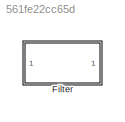
MODEL slx_561fe22cc65d
KIND model
CONFIG AbsTol = auto
CONFIG EnableMultiTasking = off
CONFIG FixedStep = auto
CONFIG MaxStep = auto
CONFIG MinStep = auto
CONFIG RelTol = 1e-3
CONFIG SampleTimeConstraint = Unconstrained
CONFIG SolverName = VariableStepAuto
CONFIG StartTime = 0.0
CONFIG StopTime = 10.0
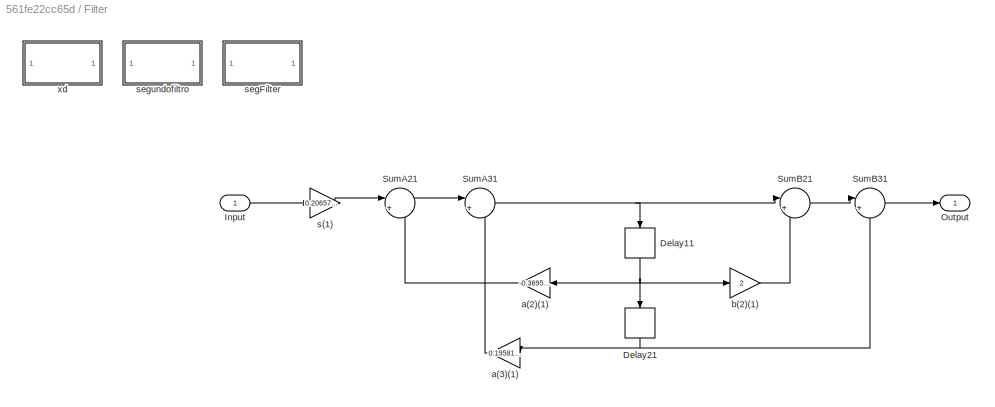
BLOCK [SubSystem] Filter
  ErrorFcn = dspFilterRealizedInBasicElemsAlgLoopErrFcnCallback
  Ports = [1, 1]
  RequestExecContextInheritance = off
  Tag = FilterWizardSubSystem
  UserDataPersistent = on
BLOCK [Delay] Filter/Delay11
  DelayLength = 1
  InitialCondition = 0
  InputPortMap = u0
  NameLocation = right
  Ports = [1, 1]
BLOCK [Delay] Filter/Delay21
  DelayLength = 1
  InitialCondition = 0
  InputPortMap = u0
  NameLocation = right
  Ports = [1, 1]
BLOCK [Inport] Filter/Input
BLOCK [Outport] Filter/Output
BLOCK [Sum] Filter/SumA21
  Inputs = |+-
  OutDataTypeStr = Inherit: Same as first input
  Ports = [2, 1]
  RndMeth = Nearest
  SaturateOnIntegerOverflow = on
BLOCK [Sum] Filter/SumA31
  Inputs = |+-
  OutDataTypeStr = Inherit: Same as first input
  Ports = [2, 1]
  RndMeth = Nearest
  SaturateOnIntegerOverflow = on
BLOCK [Sum] Filter/SumB21
  Inputs = |++
  OutDataTypeStr = Inherit: Same as first input
  Ports = [2, 1]
  RndMeth = Nearest
  SaturateOnIntegerOverflow = on
BLOCK [Sum] Filter/SumB31
  Inputs = |++
  OutDataTypeStr = Inherit: Same as first input
  Ports = [2, 1]
  RndMeth = Nearest
  SaturateOnIntegerOverflow = on
BLOCK [Gain] Filter/a(2)(1)
  Gain = -0.369527377351241471
  OutDataTypeStr = Inherit: Same as input
  ParamDataTypeStr = double
  RndMeth = Nearest
  SaturateOnIntegerOverflow = on
BLOCK [Gain] Filter/a(3)(1)
  Gain = 0.195815712655833141
  OutDataTypeStr = Inherit: Same as input
  ParamDataTypeStr = double
  RndMeth = Nearest
  SaturateOnIntegerOverflow = on
BLOCK [Gain] Filter/b(2)(1)
  Gain = 2
  OutDataTypeStr = Inherit: Same as input
  ParamDataTypeStr = double
  RndMeth = Nearest
  SaturateOnIntegerOverflow = on
BLOCK [Gain] Filter/s(1)
  Gain = 0.206572083826147918
  OutDataTypeStr = Inherit: Same as input
  ParamDataTypeStr = double
  RndMeth = Nearest
  SaturateOnIntegerOverflow = on
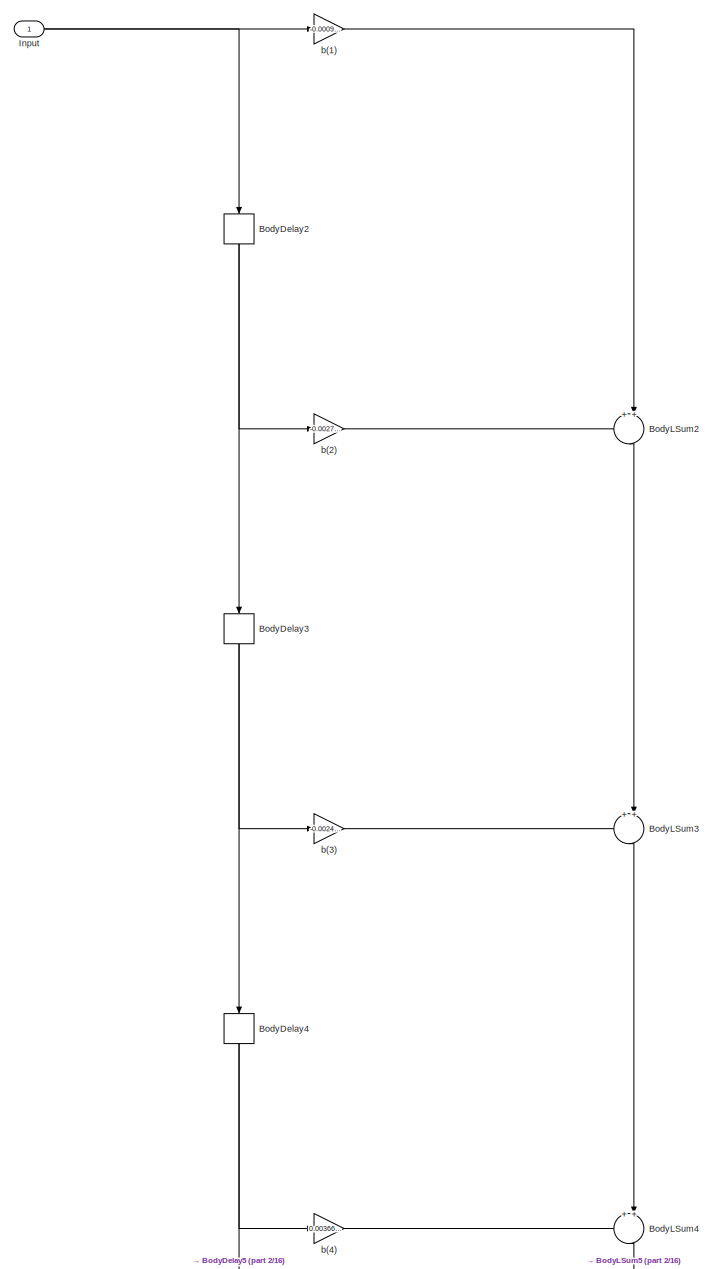
[diagram: Filter/segFilter - part 1/16, full width, top band]
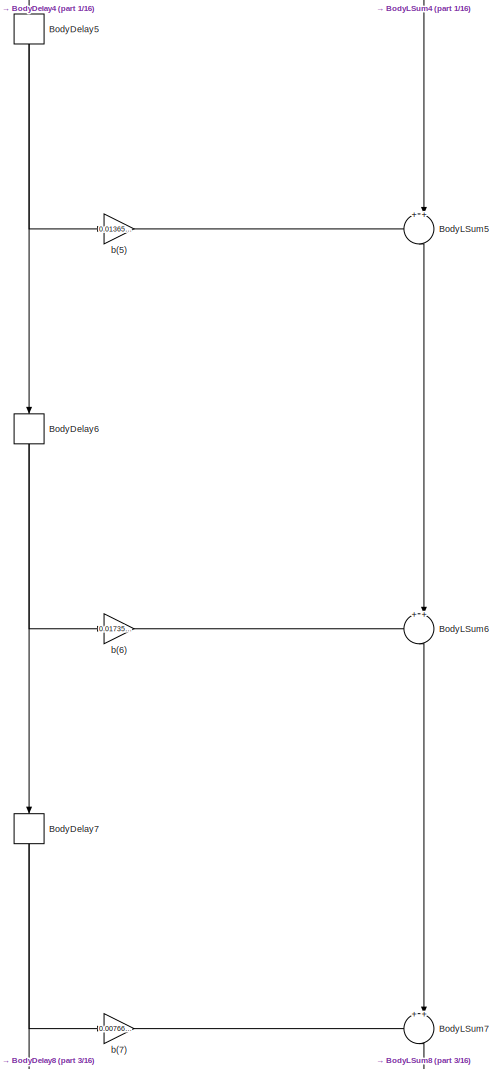
[diagram: Filter/segFilter - part 2/16, top center region]
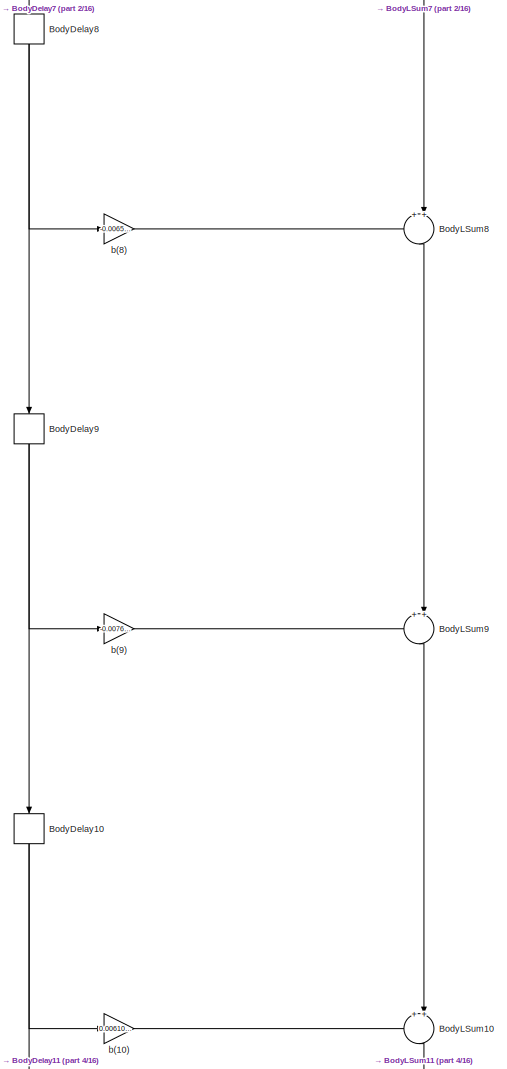
[diagram: Filter/segFilter - part 3/16, top center region]
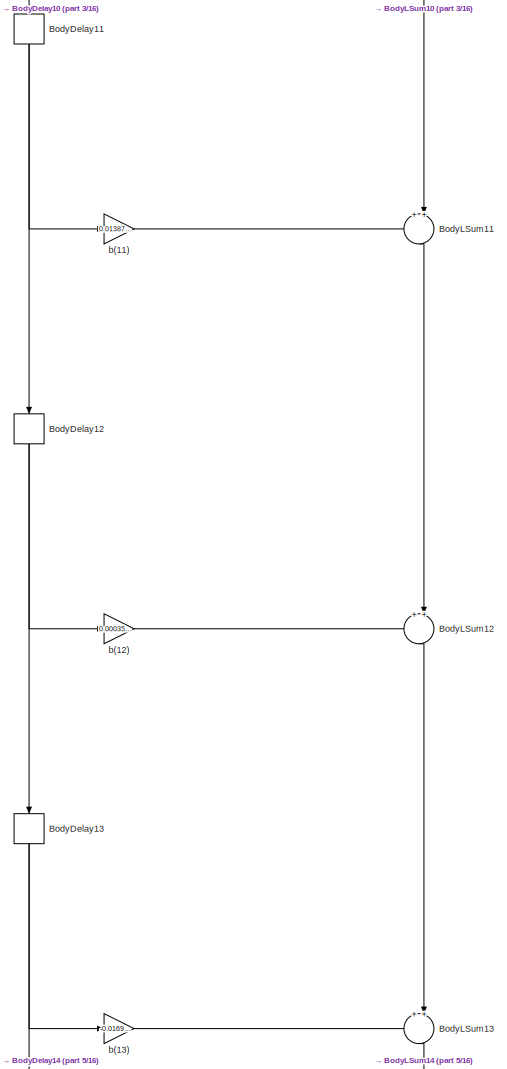
[diagram: Filter/segFilter - part 4/16, top center region]
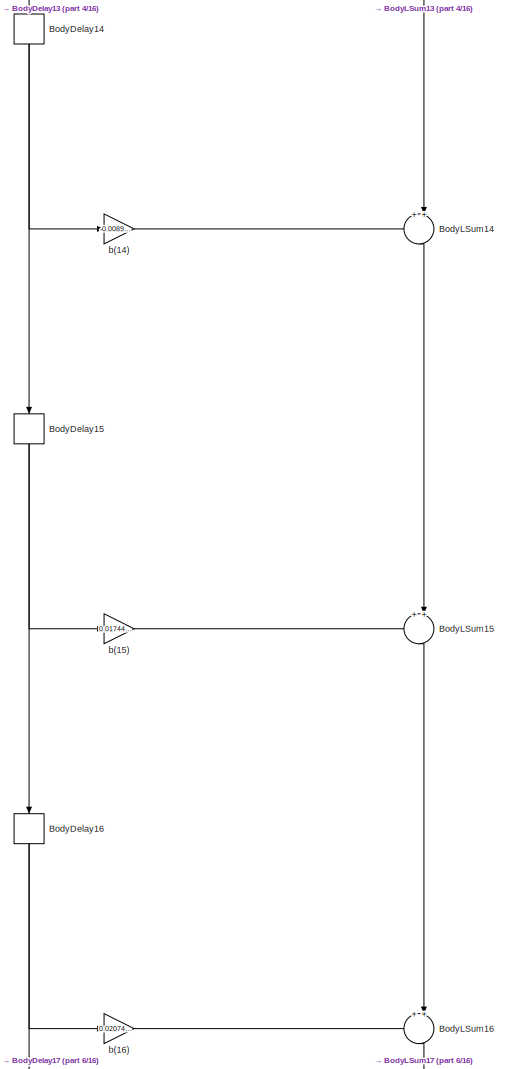
[diagram: Filter/segFilter - part 5/16, top center region]
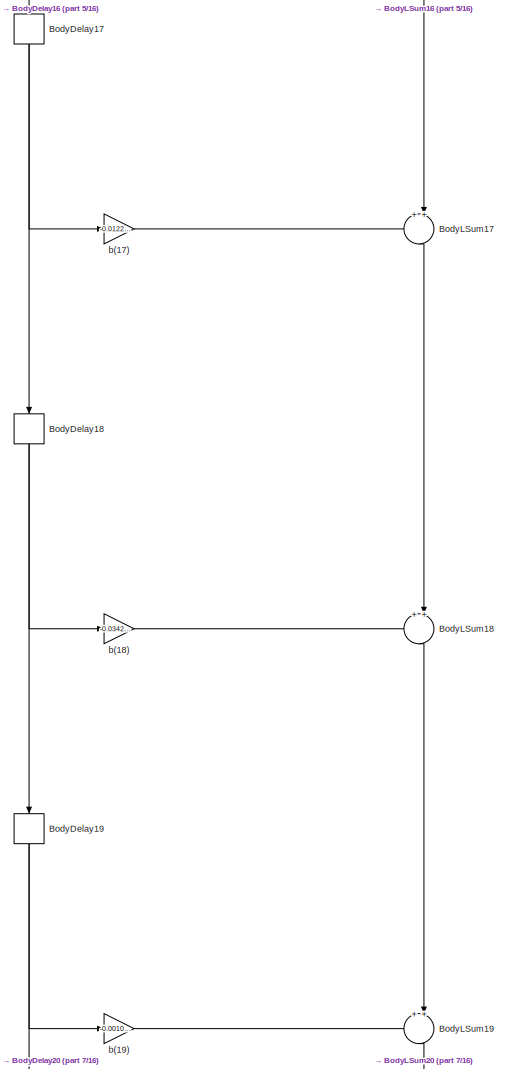
[diagram: Filter/segFilter - part 6/16, central region]
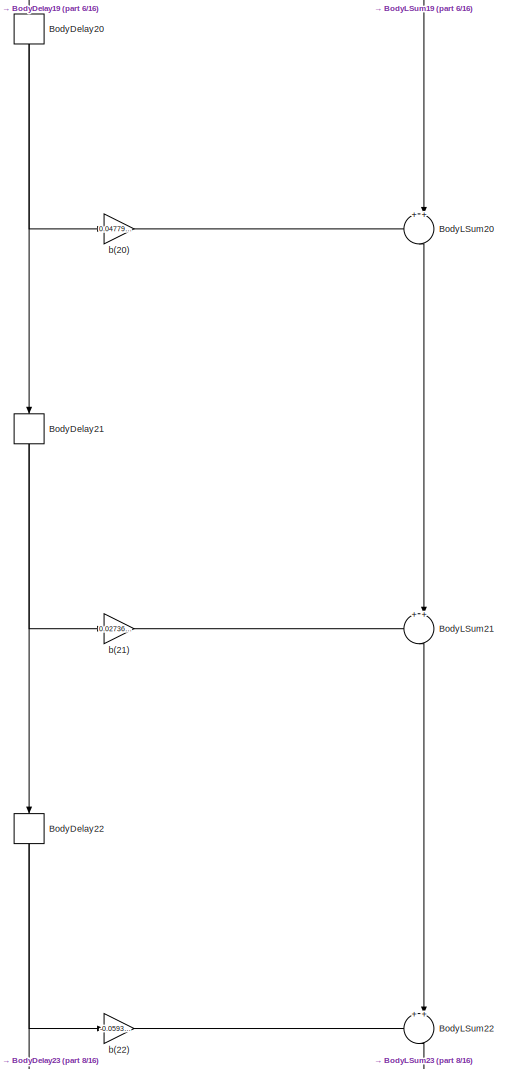
[diagram: Filter/segFilter - part 7/16, central region]
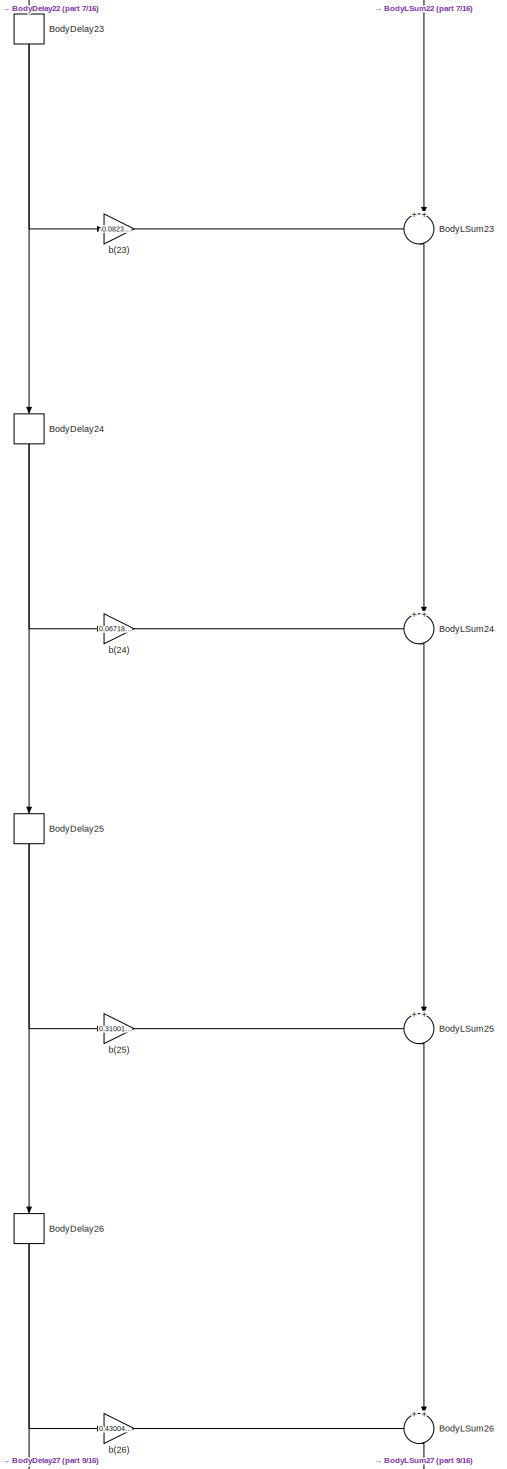
[diagram: Filter/segFilter - part 8/16, central region]
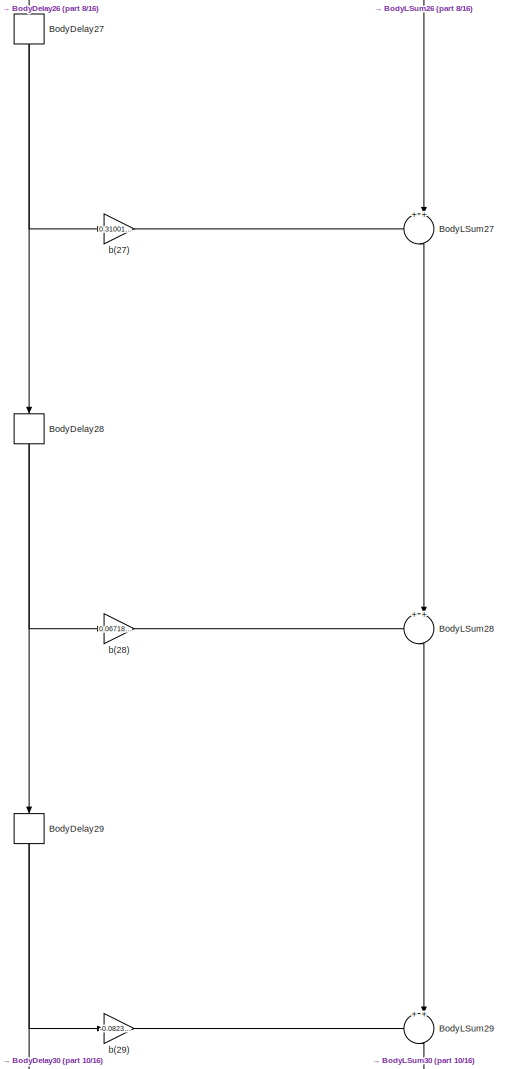
[diagram: Filter/segFilter - part 9/16, central region]
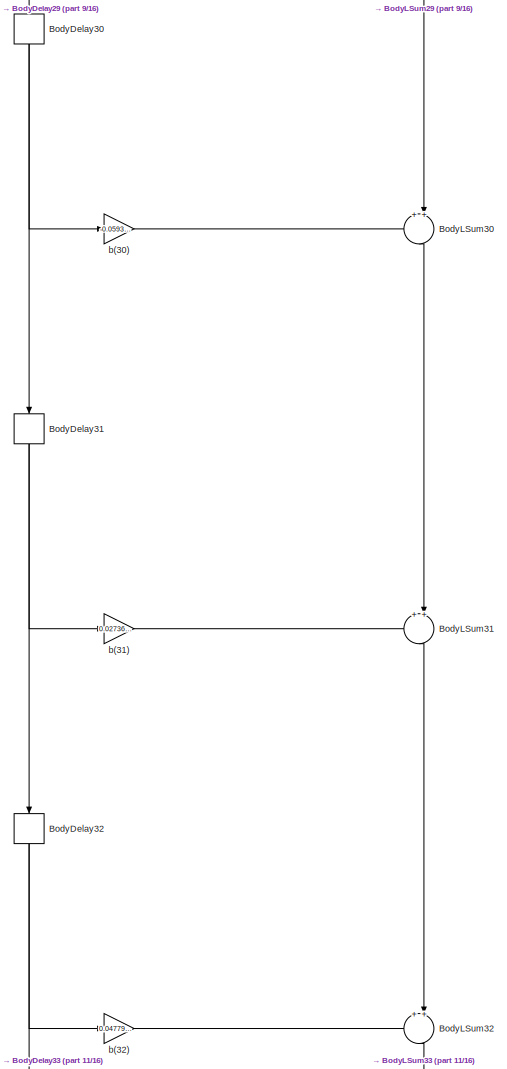
[diagram: Filter/segFilter - part 10/16, central region]
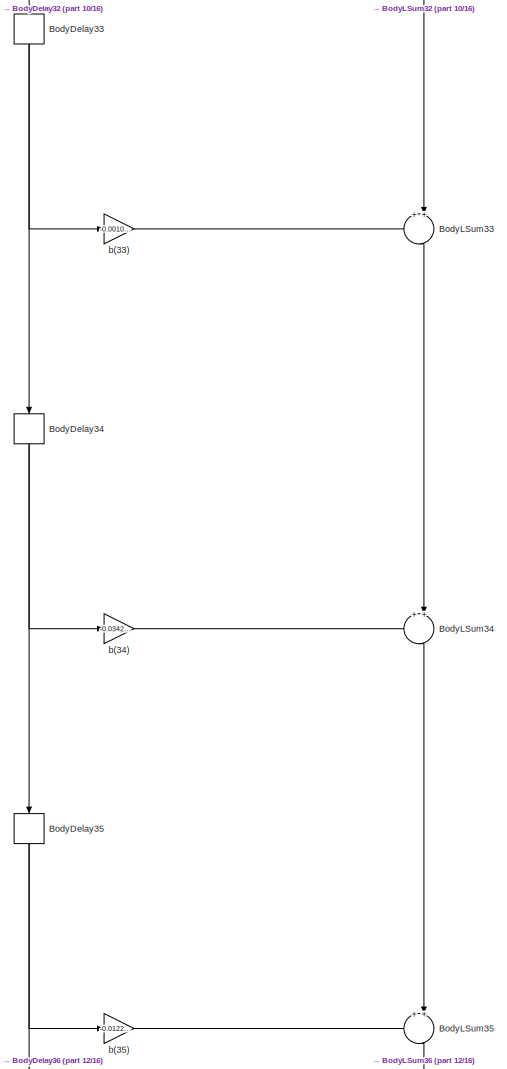
[diagram: Filter/segFilter - part 11/16, central region]
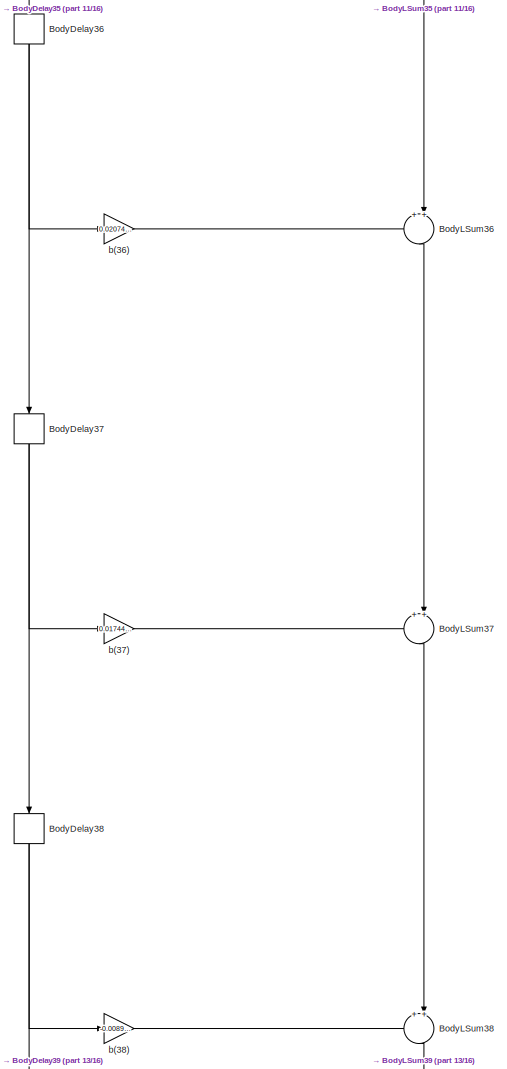
[diagram: Filter/segFilter - part 12/16, bottom center region]
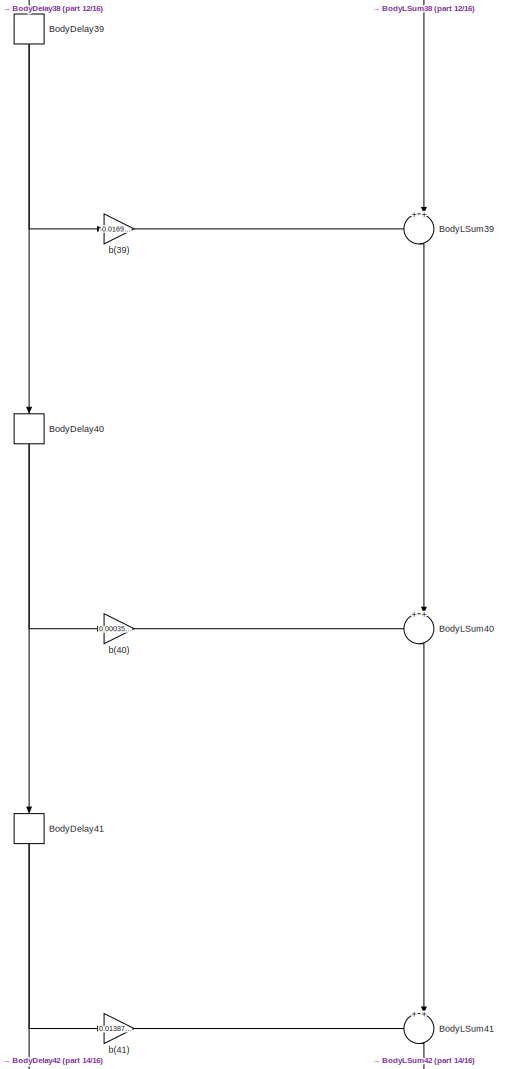
[diagram: Filter/segFilter - part 13/16, bottom center region]
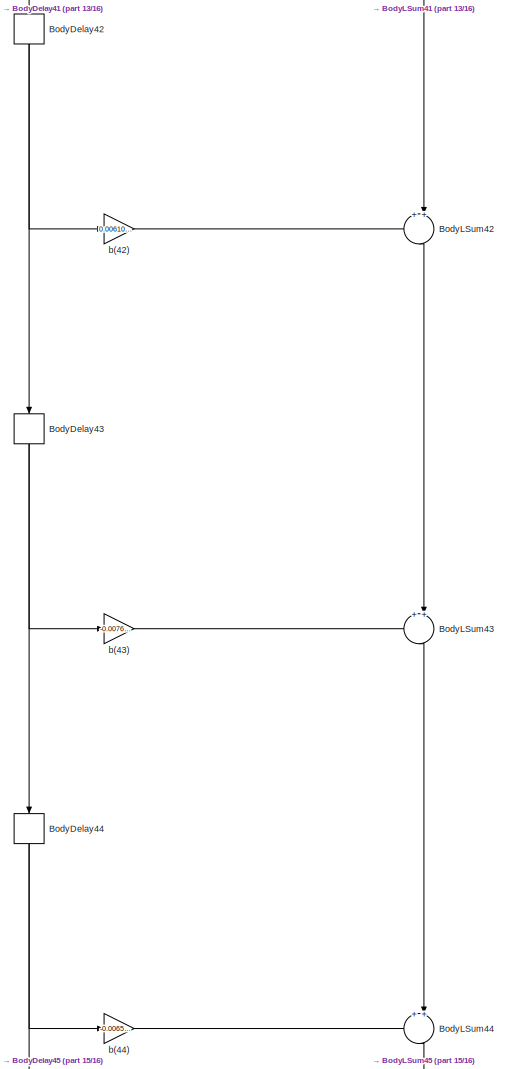
[diagram: Filter/segFilter - part 14/16, bottom center region]
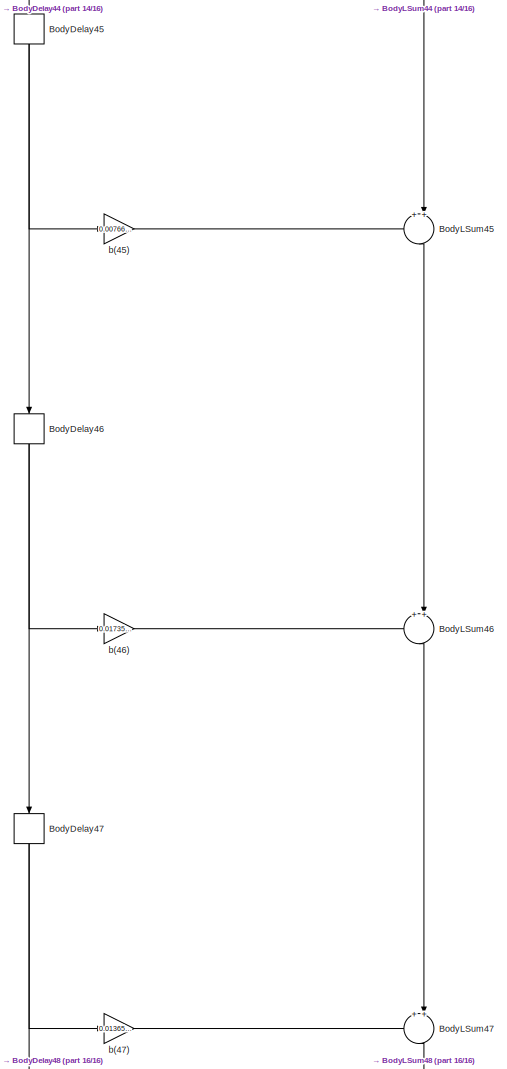
[diagram: Filter/segFilter - part 15/16, bottom center region]
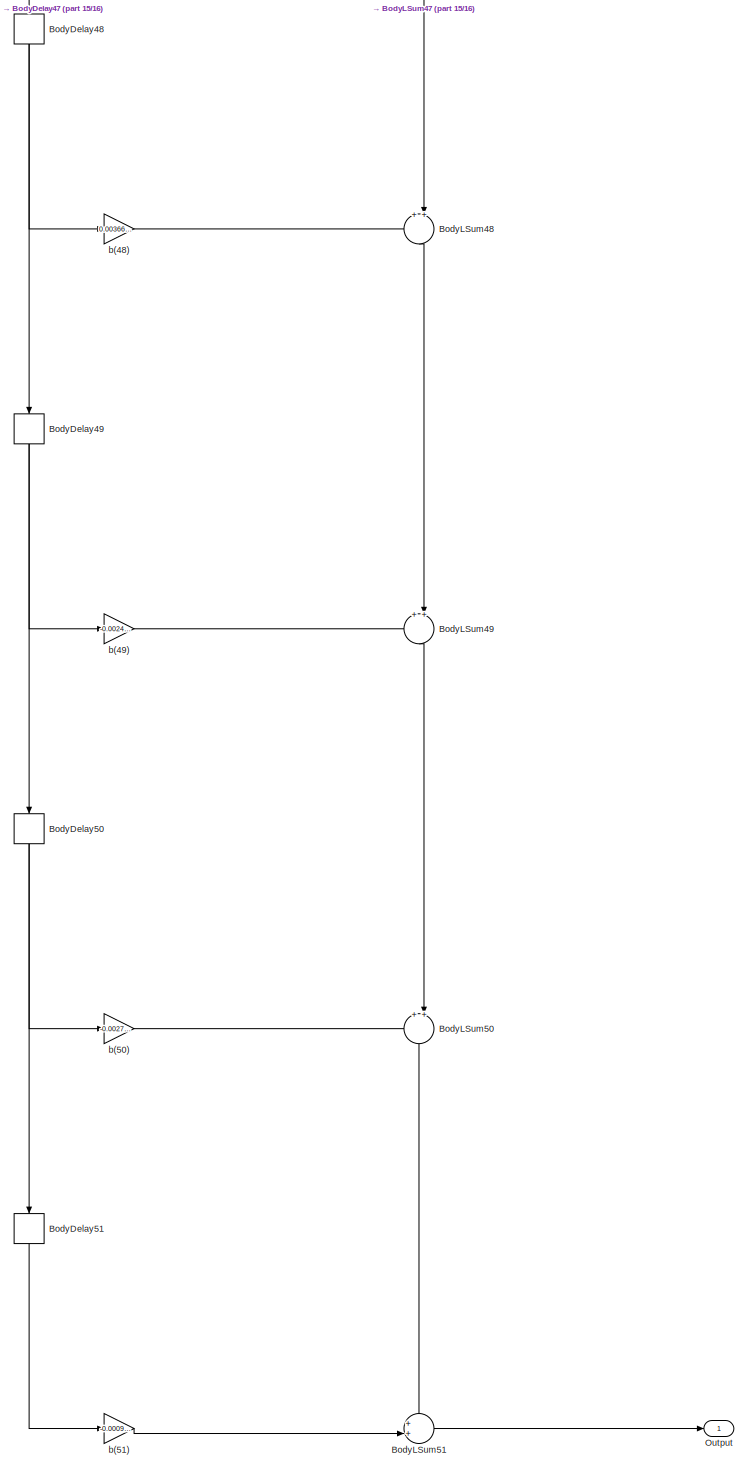
[diagram: Filter/segFilter - part 16/16, full width, bottom band]
BLOCK [SubSystem] Filter/segFilter
  ErrorFcn = dspFilterRealizedInBasicElemsAlgLoopErrFcnCallback
  Ports = [1, 1]
  RequestExecContextInheritance = off
  Tag = FilterWizardSubSystem
  UserDataPersistent = on
BLOCK [Delay] Filter/segFilter/BodyDelay10
  DelayLength = 1
  InitialCondition = 0
  InputPortMap = u0
  InputProcessing = Columns as channels (frame based)
  NameLocation = right
  Ports = [1, 1]
BLOCK [Delay] Filter/segFilter/BodyDelay11
  DelayLength = 1
  InitialCondition = 0
  InputPortMap = u0
  InputProcessing = Columns as channels (frame based)
  NameLocation = right
  Ports = [1, 1]
BLOCK [Delay] Filter/segFilter/BodyDelay12
  DelayLength = 1
  InitialCondition = 0
  InputPortMap = u0
  InputProcessing = Columns as channels (frame based)
  NameLocation = right
  Ports = [1, 1]
BLOCK [Delay] Filter/segFilter/BodyDelay13
  DelayLength = 1
  InitialCondition = 0
  InputPortMap = u0
  InputProcessing = Columns as channels (frame based)
  NameLocation = right
  Ports = [1, 1]
BLOCK [Delay] Filter/segFilter/BodyDelay14
  DelayLength = 1
  InitialCondition = 0
  InputPortMap = u0
  InputProcessing = Columns as channels (frame based)
  NameLocation = right
  Ports = [1, 1]
BLOCK [Delay] Filter/segFilter/BodyDelay15
  DelayLength = 1
  InitialCondition = 0
  InputPortMap = u0
  InputProcessing = Columns as channels (frame based)
  NameLocation = right
  Ports = [1, 1]
BLOCK [Delay] Filter/segFilter/BodyDelay16
  DelayLength = 1
  InitialCondition = 0
  InputPortMap = u0
  InputProcessing = Columns as channels (frame based)
  NameLocation = right
  Ports = [1, 1]
BLOCK [Delay] Filter/segFilter/BodyDelay17
  DelayLength = 1
  InitialCondition = 0
  InputPortMap = u0
  InputProcessing = Columns as channels (frame based)
  NameLocation = right
  Ports = [1, 1]
BLOCK [Delay] Filter/segFilter/BodyDelay18
  DelayLength = 1
  InitialCondition = 0
  InputPortMap = u0
  InputProcessing = Columns as channels (frame based)
  NameLocation = right
  Ports = [1, 1]
BLOCK [Delay] Filter/segFilter/BodyDelay19
  DelayLength = 1
  InitialCondition = 0
  InputPortMap = u0
  InputProcessing = Columns as channels (frame based)
  NameLocation = right
  Ports = [1, 1]
BLOCK [Delay] Filter/segFilter/BodyDelay2
  DelayLength = 1
  InitialCondition = 0
  InputPortMap = u0
  InputProcessing = Columns as channels (frame based)
  NameLocation = right
  Ports = [1, 1]
BLOCK [Delay] Filter/segFilter/BodyDelay20
  DelayLength = 1
  InitialCondition = 0
  InputPortMap = u0
  InputProcessing = Columns as channels (frame based)
  NameLocation = right
  Ports = [1, 1]
BLOCK [Delay] Filter/segFilter/BodyDelay21
  DelayLength = 1
  InitialCondition = 0
  InputPortMap = u0
  InputProcessing = Columns as channels (frame based)
  NameLocation = right
  Ports = [1, 1]
BLOCK [Delay] Filter/segFilter/BodyDelay22
  DelayLength = 1
  InitialCondition = 0
  InputPortMap = u0
  InputProcessing = Columns as channels (frame based)
  NameLocation = right
  Ports = [1, 1]
BLOCK [Delay] Filter/segFilter/BodyDelay23
  DelayLength = 1
  InitialCondition = 0
  InputPortMap = u0
  InputProcessing = Columns as channels (frame based)
  NameLocation = right
  Ports = [1, 1]
BLOCK [Delay] Filter/segFilter/BodyDelay24
  DelayLength = 1
  InitialCondition = 0
  InputPortMap = u0
  InputProcessing = Columns as channels (frame based)
  NameLocation = right
  Ports = [1, 1]
BLOCK [Delay] Filter/segFilter/BodyDelay25
  DelayLength = 1
  InitialCondition = 0
  InputPortMap = u0
  InputProcessing = Columns as channels (frame based)
  NameLocation = right
  Ports = [1, 1]
BLOCK [Delay] Filter/segFilter/BodyDelay26
  DelayLength = 1
  InitialCondition = 0
  InputPortMap = u0
  InputProcessing = Columns as channels (frame based)
  NameLocation = right
  Ports = [1, 1]
BLOCK [Delay] Filter/segFilter/BodyDelay27
  DelayLength = 1
  InitialCondition = 0
  InputPortMap = u0
  InputProcessing = Columns as channels (frame based)
  NameLocation = right
  Ports = [1, 1]
BLOCK [Delay] Filter/segFilter/BodyDelay28
  DelayLength = 1
  InitialCondition = 0
  InputPortMap = u0
  InputProcessing = Columns as channels (frame based)
  NameLocation = right
  Ports = [1, 1]
BLOCK [Delay] Filter/segFilter/BodyDelay29
  DelayLength = 1
  InitialCondition = 0
  InputPortMap = u0
  InputProcessing = Columns as channels (frame based)
  NameLocation = right
  Ports = [1, 1]
BLOCK [Delay] Filter/segFilter/BodyDelay3
  DelayLength = 1
  InitialCondition = 0
  InputPortMap = u0
  InputProcessing = Columns as channels (frame based)
  NameLocation = right
  Ports = [1, 1]
BLOCK [Delay] Filter/segFilter/BodyDelay30
  DelayLength = 1
  InitialCondition = 0
  InputPortMap = u0
  InputProcessing = Columns as channels (frame based)
  NameLocation = right
  Ports = [1, 1]
BLOCK [Delay] Filter/segFilter/BodyDelay31
  DelayLength = 1
  InitialCondition = 0
  InputPortMap = u0
  InputProcessing = Columns as channels (frame based)
  NameLocation = right
  Ports = [1, 1]
BLOCK [Delay] Filter/segFilter/BodyDelay32
  DelayLength = 1
  InitialCondition = 0
  InputPortMap = u0
  InputProcessing = Columns as channels (frame based)
  NameLocation = right
  Ports = [1, 1]
BLOCK [Delay] Filter/segFilter/BodyDelay33
  DelayLength = 1
  InitialCondition = 0
  InputPortMap = u0
  InputProcessing = Columns as channels (frame based)
  NameLocation = right
  Ports = [1, 1]
BLOCK [Delay] Filter/segFilter/BodyDelay34
  DelayLength = 1
  InitialCondition = 0
  InputPortMap = u0
  InputProcessing = Columns as channels (frame based)
  NameLocation = right
  Ports = [1, 1]
BLOCK [Delay] Filter/segFilter/BodyDelay35
  DelayLength = 1
  InitialCondition = 0
  InputPortMap = u0
  InputProcessing = Columns as channels (frame based)
  NameLocation = right
  Ports = [1, 1]
BLOCK [Delay] Filter/segFilter/BodyDelay36
  DelayLength = 1
  InitialCondition = 0
  InputPortMap = u0
  InputProcessing = Columns as channels (frame based)
  NameLocation = right
  Ports = [1, 1]
BLOCK [Delay] Filter/segFilter/BodyDelay37
  DelayLength = 1
  InitialCondition = 0
  InputPortMap = u0
  InputProcessing = Columns as channels (frame based)
  NameLocation = right
  Ports = [1, 1]
BLOCK [Delay] Filter/segFilter/BodyDelay38
  DelayLength = 1
  InitialCondition = 0
  InputPortMap = u0
  InputProcessing = Columns as channels (frame based)
  NameLocation = right
  Ports = [1, 1]
BLOCK [Delay] Filter/segFilter/BodyDelay39
  DelayLength = 1
  InitialCondition = 0
  InputPortMap = u0
  InputProcessing = Columns as channels (frame based)
  NameLocation = right
  Ports = [1, 1]
BLOCK [Delay] Filter/segFilter/BodyDelay4
  DelayLength = 1
  InitialCondition = 0
  InputPortMap = u0
  InputProcessing = Columns as channels (frame based)
  NameLocation = right
  Ports = [1, 1]
BLOCK [Delay] Filter/segFilter/BodyDelay40
  DelayLength = 1
  InitialCondition = 0
  InputPortMap = u0
  InputProcessing = Columns as channels (frame based)
  NameLocation = right
  Ports = [1, 1]
BLOCK [Delay] Filter/segFilter/BodyDelay41
  DelayLength = 1
  InitialCondition = 0
  InputPortMap = u0
  InputProcessing = Columns as channels (frame based)
  NameLocation = right
  Ports = [1, 1]
BLOCK [Delay] Filter/segFilter/BodyDelay42
  DelayLength = 1
  InitialCondition = 0
  InputPortMap = u0
  InputProcessing = Columns as channels (frame based)
  NameLocation = right
  Ports = [1, 1]
BLOCK [Delay] Filter/segFilter/BodyDelay43
  DelayLength = 1
  InitialCondition = 0
  InputPortMap = u0
  InputProcessing = Columns as channels (frame based)
  NameLocation = right
  Ports = [1, 1]
BLOCK [Delay] Filter/segFilter/BodyDelay44
  DelayLength = 1
  InitialCondition = 0
  InputPortMap = u0
  InputProcessing = Columns as channels (frame based)
  NameLocation = right
  Ports = [1, 1]
BLOCK [Delay] Filter/segFilter/BodyDelay45
  DelayLength = 1
  InitialCondition = 0
  InputPortMap = u0
  InputProcessing = Columns as channels (frame based)
  NameLocation = right
  Ports = [1, 1]
BLOCK [Delay] Filter/segFilter/BodyDelay46
  DelayLength = 1
  InitialCondition = 0
  InputPortMap = u0
  InputProcessing = Columns as channels (frame based)
  NameLocation = right
  Ports = [1, 1]
BLOCK [Delay] Filter/segFilter/BodyDelay47
  DelayLength = 1
  InitialCondition = 0
  InputPortMap = u0
  InputProcessing = Columns as channels (frame based)
  NameLocation = right
  Ports = [1, 1]
BLOCK [Delay] Filter/segFilter/BodyDelay48
  DelayLength = 1
  InitialCondition = 0
  InputPortMap = u0
  InputProcessing = Columns as channels (frame based)
  NameLocation = right
  Ports = [1, 1]
BLOCK [Delay] Filter/segFilter/BodyDelay49
  DelayLength = 1
  InitialCondition = 0
  InputPortMap = u0
  InputProcessing = Columns as channels (frame based)
  NameLocation = right
  Ports = [1, 1]
BLOCK [Delay] Filter/segFilter/BodyDelay5
  DelayLength = 1
  InitialCondition = 0
  InputPortMap = u0
  InputProcessing = Columns as channels (frame based)
  NameLocation = right
  Ports = [1, 1]
BLOCK [Delay] Filter/segFilter/BodyDelay50
  DelayLength = 1
  InitialCondition = 0
  InputPortMap = u0
  InputProcessing = Columns as channels (frame based)
  NameLocation = right
  Ports = [1, 1]
BLOCK [Delay] Filter/segFilter/BodyDelay51
  DelayLength = 1
  InitialCondition = 0
  InputPortMap = u0
  InputProcessing = Columns as channels (frame based)
  NameLocation = right
  Ports = [1, 1]
BLOCK [Delay] Filter/segFilter/BodyDelay6
  DelayLength = 1
  InitialCondition = 0
  InputPortMap = u0
  InputProcessing = Columns as channels (frame based)
  NameLocation = right
  Ports = [1, 1]
BLOCK [Delay] Filter/segFilter/BodyDelay7
  DelayLength = 1
  InitialCondition = 0
  InputPortMap = u0
  InputProcessing = Columns as channels (frame based)
  NameLocation = right
  Ports = [1, 1]
BLOCK [Delay] Filter/segFilter/BodyDelay8
  DelayLength = 1
  InitialCondition = 0
  InputPortMap = u0
  InputProcessing = Columns as channels (frame based)
  NameLocation = right
  Ports = [1, 1]
BLOCK [Delay] Filter/segFilter/BodyDelay9
  DelayLength = 1
  InitialCondition = 0
  InputPortMap = u0
  InputProcessing = Columns as channels (frame based)
  NameLocation = right
  Ports = [1, 1]
BLOCK [Sum] Filter/segFilter/BodyLSum10
  Inputs = ++|
  NameLocation = right
  OutDataTypeStr = Inherit: Same as first input
  Ports = [2, 1]
  RndMeth = Nearest
  SaturateOnIntegerOverflow = on
BLOCK [Sum] Filter/segFilter/BodyLSum11
  Inputs = ++|
  NameLocation = right
  OutDataTypeStr = Inherit: Same as first input
  Ports = [2, 1]
  RndMeth = Nearest
  SaturateOnIntegerOverflow = on
BLOCK [Sum] Filter/segFilter/BodyLSum12
  Inputs = ++|
  NameLocation = right
  OutDataTypeStr = Inherit: Same as first input
  Ports = [2, 1]
  RndMeth = Nearest
  SaturateOnIntegerOverflow = on
BLOCK [Sum] Filter/segFilter/BodyLSum13
  Inputs = ++|
  NameLocation = right
  OutDataTypeStr = Inherit: Same as first input
  Ports = [2, 1]
  RndMeth = Nearest
  SaturateOnIntegerOverflow = on
BLOCK [Sum] Filter/segFilter/BodyLSum14
  Inputs = ++|
  NameLocation = right
  OutDataTypeStr = Inherit: Same as first input
  Ports = [2, 1]
  RndMeth = Nearest
  SaturateOnIntegerOverflow = on
BLOCK [Sum] Filter/segFilter/BodyLSum15
  Inputs = ++|
  NameLocation = right
  OutDataTypeStr = Inherit: Same as first input
  Ports = [2, 1]
  RndMeth = Nearest
  SaturateOnIntegerOverflow = on
BLOCK [Sum] Filter/segFilter/BodyLSum16
  Inputs = ++|
  NameLocation = right
  OutDataTypeStr = Inherit: Same as first input
  Ports = [2, 1]
  RndMeth = Nearest
  SaturateOnIntegerOverflow = on
BLOCK [Sum] Filter/segFilter/BodyLSum17
  Inputs = ++|
  NameLocation = right
  OutDataTypeStr = Inherit: Same as first input
  Ports = [2, 1]
  RndMeth = Nearest
  SaturateOnIntegerOverflow = on
BLOCK [Sum] Filter/segFilter/BodyLSum18
  Inputs = ++|
  NameLocation = right
  OutDataTypeStr = Inherit: Same as first input
  Ports = [2, 1]
  RndMeth = Nearest
  SaturateOnIntegerOverflow = on
BLOCK [Sum] Filter/segFilter/BodyLSum19
  Inputs = ++|
  NameLocation = right
  OutDataTypeStr = Inherit: Same as first input
  Ports = [2, 1]
  RndMeth = Nearest
  SaturateOnIntegerOverflow = on
BLOCK [Sum] Filter/segFilter/BodyLSum2
  Inputs = ++|
  NameLocation = right
  OutDataTypeStr = Inherit: Same as first input
  Ports = [2, 1]
  RndMeth = Nearest
  SaturateOnIntegerOverflow = on
BLOCK [Sum] Filter/segFilter/BodyLSum20
  Inputs = ++|
  NameLocation = right
  OutDataTypeStr = Inherit: Same as first input
  Ports = [2, 1]
  RndMeth = Nearest
  SaturateOnIntegerOverflow = on
BLOCK [Sum] Filter/segFilter/BodyLSum21
  Inputs = ++|
  NameLocation = right
  OutDataTypeStr = Inherit: Same as first input
  Ports = [2, 1]
  RndMeth = Nearest
  SaturateOnIntegerOverflow = on
BLOCK [Sum] Filter/segFilter/BodyLSum22
  Inputs = ++|
  NameLocation = right
  OutDataTypeStr = Inherit: Same as first input
  Ports = [2, 1]
  RndMeth = Nearest
  SaturateOnIntegerOverflow = on
BLOCK [Sum] Filter/segFilter/BodyLSum23
  Inputs = ++|
  NameLocation = right
  OutDataTypeStr = Inherit: Same as first input
  Ports = [2, 1]
  RndMeth = Nearest
  SaturateOnIntegerOverflow = on
BLOCK [Sum] Filter/segFilter/BodyLSum24
  Inputs = ++|
  NameLocation = right
  OutDataTypeStr = Inherit: Same as first input
  Ports = [2, 1]
  RndMeth = Nearest
  SaturateOnIntegerOverflow = on
BLOCK [Sum] Filter/segFilter/BodyLSum25
  Inputs = ++|
  NameLocation = right
  OutDataTypeStr = Inherit: Same as first input
  Ports = [2, 1]
  RndMeth = Nearest
  SaturateOnIntegerOverflow = on
BLOCK [Sum] Filter/segFilter/BodyLSum26
  Inputs = ++|
  NameLocation = right
  OutDataTypeStr = Inherit: Same as first input
  Ports = [2, 1]
  RndMeth = Nearest
  SaturateOnIntegerOverflow = on
BLOCK [Sum] Filter/segFilter/BodyLSum27
  Inputs = ++|
  NameLocation = right
  OutDataTypeStr = Inherit: Same as first input
  Ports = [2, 1]
  RndMeth = Nearest
  SaturateOnIntegerOverflow = on
BLOCK [Sum] Filter/segFilter/BodyLSum28
  Inputs = ++|
  NameLocation = right
  OutDataTypeStr = Inherit: Same as first input
  Ports = [2, 1]
  RndMeth = Nearest
  SaturateOnIntegerOverflow = on
BLOCK [Sum] Filter/segFilter/BodyLSum29
  Inputs = ++|
  NameLocation = right
  OutDataTypeStr = Inherit: Same as first input
  Ports = [2, 1]
  RndMeth = Nearest
  SaturateOnIntegerOverflow = on
BLOCK [Sum] Filter/segFilter/BodyLSum3
  Inputs = ++|
  NameLocation = right
  OutDataTypeStr = Inherit: Same as first input
  Ports = [2, 1]
  RndMeth = Nearest
  SaturateOnIntegerOverflow = on
BLOCK [Sum] Filter/segFilter/BodyLSum30
  Inputs = ++|
  NameLocation = right
  OutDataTypeStr = Inherit: Same as first input
  Ports = [2, 1]
  RndMeth = Nearest
  SaturateOnIntegerOverflow = on
BLOCK [Sum] Filter/segFilter/BodyLSum31
  Inputs = ++|
  NameLocation = right
  OutDataTypeStr = Inherit: Same as first input
  Ports = [2, 1]
  RndMeth = Nearest
  SaturateOnIntegerOverflow = on
BLOCK [Sum] Filter/segFilter/BodyLSum32
  Inputs = ++|
  NameLocation = right
  OutDataTypeStr = Inherit: Same as first input
  Ports = [2, 1]
  RndMeth = Nearest
  SaturateOnIntegerOverflow = on
BLOCK [Sum] Filter/segFilter/BodyLSum33
  Inputs = ++|
  NameLocation = right
  OutDataTypeStr = Inherit: Same as first input
  Ports = [2, 1]
  RndMeth = Nearest
  SaturateOnIntegerOverflow = on
BLOCK [Sum] Filter/segFilter/BodyLSum34
  Inputs = ++|
  NameLocation = right
  OutDataTypeStr = Inherit: Same as first input
  Ports = [2, 1]
  RndMeth = Nearest
  SaturateOnIntegerOverflow = on
BLOCK [Sum] Filter/segFilter/BodyLSum35
  Inputs = ++|
  NameLocation = right
  OutDataTypeStr = Inherit: Same as first input
  Ports = [2, 1]
  RndMeth = Nearest
  SaturateOnIntegerOverflow = on
BLOCK [Sum] Filter/segFilter/BodyLSum36
  Inputs = ++|
  NameLocation = right
  OutDataTypeStr = Inherit: Same as first input
  Ports = [2, 1]
  RndMeth = Nearest
  SaturateOnIntegerOverflow = on
BLOCK [Sum] Filter/segFilter/BodyLSum37
  Inputs = ++|
  NameLocation = right
  OutDataTypeStr = Inherit: Same as first input
  Ports = [2, 1]
  RndMeth = Nearest
  SaturateOnIntegerOverflow = on
BLOCK [Sum] Filter/segFilter/BodyLSum38
  Inputs = ++|
  NameLocation = right
  OutDataTypeStr = Inherit: Same as first input
  Ports = [2, 1]
  RndMeth = Nearest
  SaturateOnIntegerOverflow = on
BLOCK [Sum] Filter/segFilter/BodyLSum39
  Inputs = ++|
  NameLocation = right
  OutDataTypeStr = Inherit: Same as first input
  Ports = [2, 1]
  RndMeth = Nearest
  SaturateOnIntegerOverflow = on
BLOCK [Sum] Filter/segFilter/BodyLSum4
  Inputs = ++|
  NameLocation = right
  OutDataTypeStr = Inherit: Same as first input
  Ports = [2, 1]
  RndMeth = Nearest
  SaturateOnIntegerOverflow = on
BLOCK [Sum] Filter/segFilter/BodyLSum40
  Inputs = ++|
  NameLocation = right
  OutDataTypeStr = Inherit: Same as first input
  Ports = [2, 1]
  RndMeth = Nearest
  SaturateOnIntegerOverflow = on
BLOCK [Sum] Filter/segFilter/BodyLSum41
  Inputs = ++|
  NameLocation = right
  OutDataTypeStr = Inherit: Same as first input
  Ports = [2, 1]
  RndMeth = Nearest
  SaturateOnIntegerOverflow = on
BLOCK [Sum] Filter/segFilter/BodyLSum42
  Inputs = ++|
  NameLocation = right
  OutDataTypeStr = Inherit: Same as first input
  Ports = [2, 1]
  RndMeth = Nearest
  SaturateOnIntegerOverflow = on
BLOCK [Sum] Filter/segFilter/BodyLSum43
  Inputs = ++|
  NameLocation = right
  OutDataTypeStr = Inherit: Same as first input
  Ports = [2, 1]
  RndMeth = Nearest
  SaturateOnIntegerOverflow = on
BLOCK [Sum] Filter/segFilter/BodyLSum44
  Inputs = ++|
  NameLocation = right
  OutDataTypeStr = Inherit: Same as first input
  Ports = [2, 1]
  RndMeth = Nearest
  SaturateOnIntegerOverflow = on
BLOCK [Sum] Filter/segFilter/BodyLSum45
  Inputs = ++|
  NameLocation = right
  OutDataTypeStr = Inherit: Same as first input
  Ports = [2, 1]
  RndMeth = Nearest
  SaturateOnIntegerOverflow = on
BLOCK [Sum] Filter/segFilter/BodyLSum46
  Inputs = ++|
  NameLocation = right
  OutDataTypeStr = Inherit: Same as first input
  Ports = [2, 1]
  RndMeth = Nearest
  SaturateOnIntegerOverflow = on
BLOCK [Sum] Filter/segFilter/BodyLSum47
  Inputs = ++|
  NameLocation = right
  OutDataTypeStr = Inherit: Same as first input
  Ports = [2, 1]
  RndMeth = Nearest
  SaturateOnIntegerOverflow = on
BLOCK [Sum] Filter/segFilter/BodyLSum48
  Inputs = ++|
  NameLocation = right
  OutDataTypeStr = Inherit: Same as first input
  Ports = [2, 1]
  RndMeth = Nearest
  SaturateOnIntegerOverflow = on
BLOCK [Sum] Filter/segFilter/BodyLSum49
  Inputs = ++|
  NameLocation = right
  OutDataTypeStr = Inherit: Same as first input
  Ports = [2, 1]
  RndMeth = Nearest
  SaturateOnIntegerOverflow = on
BLOCK [Sum] Filter/segFilter/BodyLSum5
  Inputs = ++|
  NameLocation = right
  OutDataTypeStr = Inherit: Same as first input
  Ports = [2, 1]
  RndMeth = Nearest
  SaturateOnIntegerOverflow = on
BLOCK [Sum] Filter/segFilter/BodyLSum50
  Inputs = ++|
  NameLocation = right
  OutDataTypeStr = Inherit: Same as first input
  Ports = [2, 1]
  RndMeth = Nearest
  SaturateOnIntegerOverflow = on
BLOCK [Sum] Filter/segFilter/BodyLSum51
  Inputs = ++|
  OutDataTypeStr = Inherit: Same as first input
  Ports = [2, 1]
  RndMeth = Nearest
  SaturateOnIntegerOverflow = on
BLOCK [Sum] Filter/segFilter/BodyLSum6
  Inputs = ++|
  NameLocation = right
  OutDataTypeStr = Inherit: Same as first input
  Ports = [2, 1]
  RndMeth = Nearest
  SaturateOnIntegerOverflow = on
BLOCK [Sum] Filter/segFilter/BodyLSum7
  Inputs = ++|
  NameLocation = right
  OutDataTypeStr = Inherit: Same as first input
  Ports = [2, 1]
  RndMeth = Nearest
  SaturateOnIntegerOverflow = on
BLOCK [Sum] Filter/segFilter/BodyLSum8
  Inputs = ++|
  NameLocation = right
  OutDataTypeStr = Inherit: Same as first input
  Ports = [2, 1]
  RndMeth = Nearest
  SaturateOnIntegerOverflow = on
BLOCK [Sum] Filter/segFilter/BodyLSum9
  Inputs = ++|
  NameLocation = right
  OutDataTypeStr = Inherit: Same as first input
  Ports = [2, 1]
  RndMeth = Nearest
  SaturateOnIntegerOverflow = on
BLOCK [Inport] Filter/segFilter/Input
BLOCK [Outport] Filter/segFilter/Output
BLOCK [Gain] Filter/segFilter/b(1)
  Gain = -0.000919098208468256033
  OutDataTypeStr = Inherit: Same as input
  ParamDataTypeStr = double
  RndMeth = Nearest
  SaturateOnIntegerOverflow = on
BLOCK [Gain] Filter/segFilter/b(10)
  Gain = 0.00610545942139436009
  OutDataTypeStr = Inherit: Same as input
  ParamDataTypeStr = double
  RndMeth = Nearest
  SaturateOnIntegerOverflow = on
BLOCK [Gain] Filter/segFilter/b(11)
  Gain = 0.0138739157486354008
  OutDataTypeStr = Inherit: Same as input
  ParamDataTypeStr = double
  RndMeth = Nearest
  SaturateOnIntegerOverflow = on
BLOCK [Gain] Filter/segFilter/b(12)
  Gain = 0.000350861728290910002
  OutDataTypeStr = Inherit: Same as input
  ParamDataTypeStr = double
  RndMeth = Nearest
  SaturateOnIntegerOverflow = on
BLOCK [Gain] Filter/segFilter/b(13)
  Gain = -0.0169089254366905015
  OutDataTypeStr = Inherit: Same as input
  ParamDataTypeStr = double
  RndMeth = Nearest
  SaturateOnIntegerOverflow = on
BLOCK [Gain] Filter/segFilter/b(14)
  Gain = -0.00890564274915867961
  OutDataTypeStr = Inherit: Same as input
  ParamDataTypeStr = double
  RndMeth = Nearest
  SaturateOnIntegerOverflow = on
BLOCK [Gain] Filter/segFilter/b(15)
  Gain = 0.0174411295008548989
  OutDataTypeStr = Inherit: Same as input
  ParamDataTypeStr = double
  RndMeth = Nearest
  SaturateOnIntegerOverflow = on
BLOCK [Gain] Filter/segFilter/b(16)
  Gain = 0.0207450445276099009
  OutDataTypeStr = Inherit: Same as input
  ParamDataTypeStr = double
  RndMeth = Nearest
  SaturateOnIntegerOverflow = on
BLOCK [Gain] Filter/segFilter/b(17)
  Gain = -0.0122964942519403
  OutDataTypeStr = Inherit: Same as input
  ParamDataTypeStr = double
  RndMeth = Nearest
  SaturateOnIntegerOverflow = on
BLOCK [Gain] Filter/segFilter/b(18)
  Gain = -0.034240865909578401
  OutDataTypeStr = Inherit: Same as input
  ParamDataTypeStr = double
  RndMeth = Nearest
  SaturateOnIntegerOverflow = on
BLOCK [Gain] Filter/segFilter/b(19)
  Gain = -0.00103452960557239991
  OutDataTypeStr = Inherit: Same as input
  ParamDataTypeStr = double
  RndMeth = Nearest
  SaturateOnIntegerOverflow = on
BLOCK [Gain] Filter/segFilter/b(2)
  Gain = -0.00271769602659550002
  OutDataTypeStr = Inherit: Same as input
  ParamDataTypeStr = double
  RndMeth = Nearest
  SaturateOnIntegerOverflow = on
BLOCK [Gain] Filter/segFilter/b(20)
  Gain = 0.0477903055208014974
  OutDataTypeStr = Inherit: Same as input
  ParamDataTypeStr = double
  RndMeth = Nearest
  SaturateOnIntegerOverflow = on
BLOCK [Gain] Filter/segFilter/b(21)
  Gain = 0.0273630379148479992
  OutDataTypeStr = Inherit: Same as input
  ParamDataTypeStr = double
  RndMeth = Nearest
  SaturateOnIntegerOverflow = on
BLOCK [Gain] Filter/segFilter/b(22)
  Gain = -0.0593795188310465988
  OutDataTypeStr = Inherit: Same as input
  ParamDataTypeStr = double
  RndMeth = Nearest
  SaturateOnIntegerOverflow = on
BLOCK [Gain] Filter/segFilter/b(23)
  Gain = -0.0823070259292291023
  OutDataTypeStr = Inherit: Same as input
  ParamDataTypeStr = double
  RndMeth = Nearest
  SaturateOnIntegerOverflow = on
BLOCK [Gain] Filter/segFilter/b(24)
  Gain = 0.0671869094328705063
  OutDataTypeStr = Inherit: Same as input
  ParamDataTypeStr = double
  RndMeth = Nearest
  SaturateOnIntegerOverflow = on
BLOCK [Gain] Filter/segFilter/b(25)
  Gain = 0.310015177090251004
  OutDataTypeStr = Inherit: Same as input
  ParamDataTypeStr = double
  RndMeth = Nearest
  SaturateOnIntegerOverflow = on
BLOCK [Gain] Filter/segFilter/b(26)
  Gain = 0.430047880343516986
  OutDataTypeStr = Inherit: Same as input
  ParamDataTypeStr = double
  RndMeth = Nearest
  SaturateOnIntegerOverflow = on
BLOCK [Gain] Filter/segFilter/b(27)
  Gain = 0.310015177090251004
  OutDataTypeStr = Inherit: Same as input
  ParamDataTypeStr = double
  RndMeth = Nearest
  SaturateOnIntegerOverflow = on
BLOCK [Gain] Filter/segFilter/b(28)
  Gain = 0.0671869094328705063
  OutDataTypeStr = Inherit: Same as input
  ParamDataTypeStr = double
  RndMeth = Nearest
  SaturateOnIntegerOverflow = on
BLOCK [Gain] Filter/segFilter/b(29)
  Gain = -0.0823070259292291023
  OutDataTypeStr = Inherit: Same as input
  ParamDataTypeStr = double
  RndMeth = Nearest
  SaturateOnIntegerOverflow = on
BLOCK [Gain] Filter/segFilter/b(3)
  Gain = -0.00248695275983231009
  OutDataTypeStr = Inherit: Same as input
  ParamDataTypeStr = double
  RndMeth = Nearest
  SaturateOnIntegerOverflow = on
BLOCK [Gain] Filter/segFilter/b(30)
  Gain = -0.0593795188310465988
  OutDataTypeStr = Inherit: Same as input
  ParamDataTypeStr = double
  RndMeth = Nearest
  SaturateOnIntegerOverflow = on
BLOCK [Gain] Filter/segFilter/b(31)
  Gain = 0.0273630379148479992
  OutDataTypeStr = Inherit: Same as input
  ParamDataTypeStr = double
  RndMeth = Nearest
  SaturateOnIntegerOverflow = on
BLOCK [Gain] Filter/segFilter/b(32)
  Gain = 0.0477903055208014974
  OutDataTypeStr = Inherit: Same as input
  ParamDataTypeStr = double
  RndMeth = Nearest
  SaturateOnIntegerOverflow = on
BLOCK [Gain] Filter/segFilter/b(33)
  Gain = -0.00103452960557239991
  OutDataTypeStr = Inherit: Same as input
  ParamDataTypeStr = double
  RndMeth = Nearest
  SaturateOnIntegerOverflow = on
BLOCK [Gain] Filter/segFilter/b(34)
  Gain = -0.034240865909578401
  OutDataTypeStr = Inherit: Same as input
  ParamDataTypeStr = double
  RndMeth = Nearest
  SaturateOnIntegerOverflow = on
BLOCK [Gain] Filter/segFilter/b(35)
  Gain = -0.0122964942519403
  OutDataTypeStr = Inherit: Same as input
  ParamDataTypeStr = double
  RndMeth = Nearest
  SaturateOnIntegerOverflow = on
BLOCK [Gain] Filter/segFilter/b(36)
  Gain = 0.0207450445276099009
  OutDataTypeStr = Inherit: Same as input
  ParamDataTypeStr = double
  RndMeth = Nearest
  SaturateOnIntegerOverflow = on
BLOCK [Gain] Filter/segFilter/b(37)
  Gain = 0.0174411295008548989
  OutDataTypeStr = Inherit: Same as input
  ParamDataTypeStr = double
  RndMeth = Nearest
  SaturateOnIntegerOverflow = on
BLOCK [Gain] Filter/segFilter/b(38)
  Gain = -0.00890564274915867961
  OutDataTypeStr = Inherit: Same as input
  ParamDataTypeStr = double
  RndMeth = Nearest
  SaturateOnIntegerOverflow = on
BLOCK [Gain] Filter/segFilter/b(39)
  Gain = -0.0169089254366905015
  OutDataTypeStr = Inherit: Same as input
  ParamDataTypeStr = double
  RndMeth = Nearest
  SaturateOnIntegerOverflow = on
BLOCK [Gain] Filter/segFilter/b(4)
  Gain = 0.00366143838350709017
  OutDataTypeStr = Inherit: Same as input
  ParamDataTypeStr = double
  RndMeth = Nearest
  SaturateOnIntegerOverflow = on
BLOCK [Gain] Filter/segFilter/b(40)
  Gain = 0.000350861728290910002
  OutDataTypeStr = Inherit: Same as input
  ParamDataTypeStr = double
  RndMeth = Nearest
  SaturateOnIntegerOverflow = on
BLOCK [Gain] Filter/segFilter/b(41)
  Gain = 0.0138739157486354008
  OutDataTypeStr = Inherit: Same as input
  ParamDataTypeStr = double
  RndMeth = Nearest
  SaturateOnIntegerOverflow = on
BLOCK [Gain] Filter/segFilter/b(42)
  Gain = 0.00610545942139436009
  OutDataTypeStr = Inherit: Same as input
  ParamDataTypeStr = double
  RndMeth = Nearest
  SaturateOnIntegerOverflow = on
BLOCK [Gain] Filter/segFilter/b(43)
  Gain = -0.00769678403706536025
  OutDataTypeStr = Inherit: Same as input
  ParamDataTypeStr = double
  RndMeth = Nearest
  SaturateOnIntegerOverflow = on
BLOCK [Gain] Filter/segFilter/b(44)
  Gain = -0.00655471886964239994
  OutDataTypeStr = Inherit: Same as input
  ParamDataTypeStr = double
  RndMeth = Nearest
  SaturateOnIntegerOverflow = on
BLOCK [Gain] Filter/segFilter/b(45)
  Gain = 0.00766530619042168036
  OutDataTypeStr = Inherit: Same as input
  ParamDataTypeStr = double
  RndMeth = Nearest
  SaturateOnIntegerOverflow = on
BLOCK [Gain] Filter/segFilter/b(46)
  Gain = 0.0173511659010932989
  OutDataTypeStr = Inherit: Same as input
  ParamDataTypeStr = double
  RndMeth = Nearest
  SaturateOnIntegerOverflow = on
BLOCK [Gain] Filter/segFilter/b(47)
  Gain = 0.0136509252306624002
  OutDataTypeStr = Inherit: Same as input
  ParamDataTypeStr = double
  RndMeth = Nearest
  SaturateOnIntegerOverflow = on
BLOCK [Gain] Filter/segFilter/b(48)
  Gain = 0.00366143838350709017
  OutDataTypeStr = Inherit: Same as input
  ParamDataTypeStr = double
  RndMeth = Nearest
  SaturateOnIntegerOverflow = on
BLOCK [Gain] Filter/segFilter/b(49)
  Gain = -0.00248695275983231009
  OutDataTypeStr = Inherit: Same as input
  ParamDataTypeStr = double
  RndMeth = Nearest
  SaturateOnIntegerOverflow = on
BLOCK [Gain] Filter/segFilter/b(5)
  Gain = 0.0136509252306624002
  OutDataTypeStr = Inherit: Same as input
  ParamDataTypeStr = double
  RndMeth = Nearest
  SaturateOnIntegerOverflow = on
BLOCK [Gain] Filter/segFilter/b(50)
  Gain = -0.00271769602659550002
  OutDataTypeStr = Inherit: Same as input
  ParamDataTypeStr = double
  RndMeth = Nearest
  SaturateOnIntegerOverflow = on
BLOCK [Gain] Filter/segFilter/b(51)
  Gain = -0.000919098208468256033
  OutDataTypeStr = Inherit: Same as input
  ParamDataTypeStr = double
  RndMeth = Nearest
  SaturateOnIntegerOverflow = on
BLOCK [Gain] Filter/segFilter/b(6)
  Gain = 0.0173511659010932989
  OutDataTypeStr = Inherit: Same as input
  ParamDataTypeStr = double
  RndMeth = Nearest
  SaturateOnIntegerOverflow = on
BLOCK [Gain] Filter/segFilter/b(7)
  Gain = 0.00766530619042168036
  OutDataTypeStr = Inherit: Same as input
  ParamDataTypeStr = double
  RndMeth = Nearest
  SaturateOnIntegerOverflow = on
BLOCK [Gain] Filter/segFilter/b(8)
  Gain = -0.00655471886964239994
  OutDataTypeStr = Inherit: Same as input
  ParamDataTypeStr = double
  RndMeth = Nearest
  SaturateOnIntegerOverflow = on
BLOCK [Gain] Filter/segFilter/b(9)
  Gain = -0.00769678403706536025
  OutDataTypeStr = Inherit: Same as input
  ParamDataTypeStr = double
  RndMeth = Nearest
  SaturateOnIntegerOverflow = on
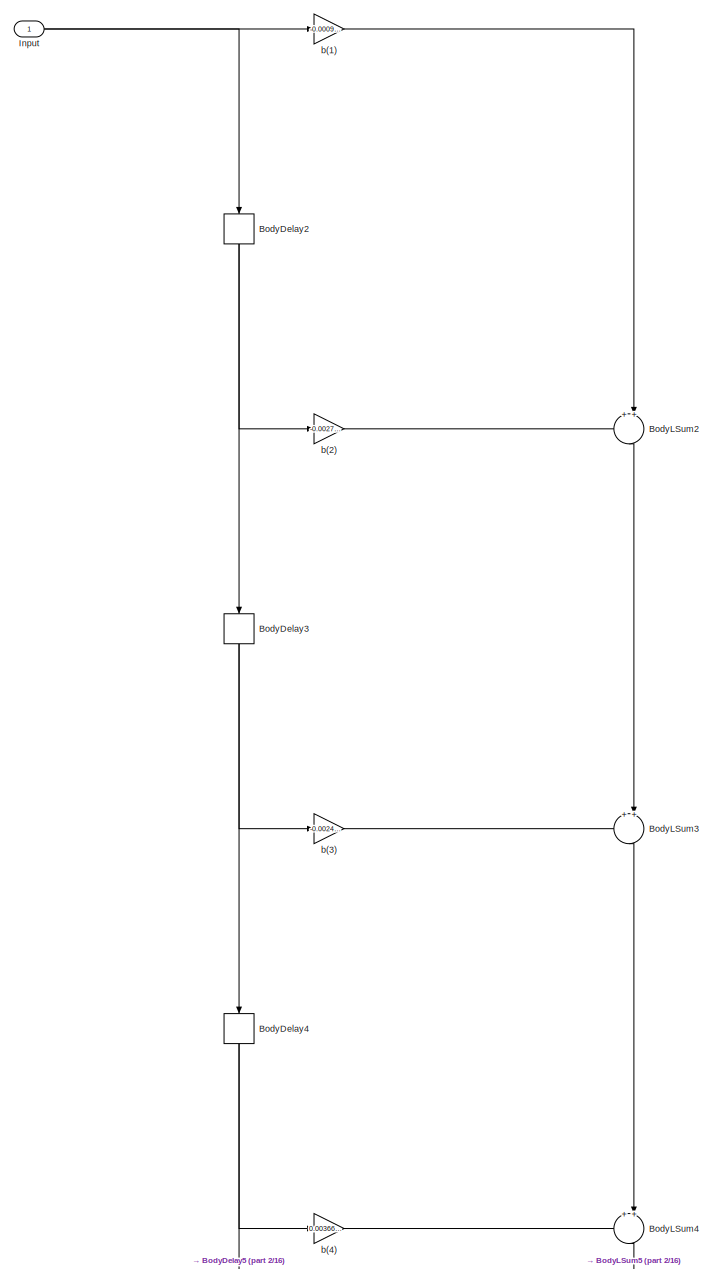
[diagram: Filter/segundofiltro - part 1/16, full width, top band]
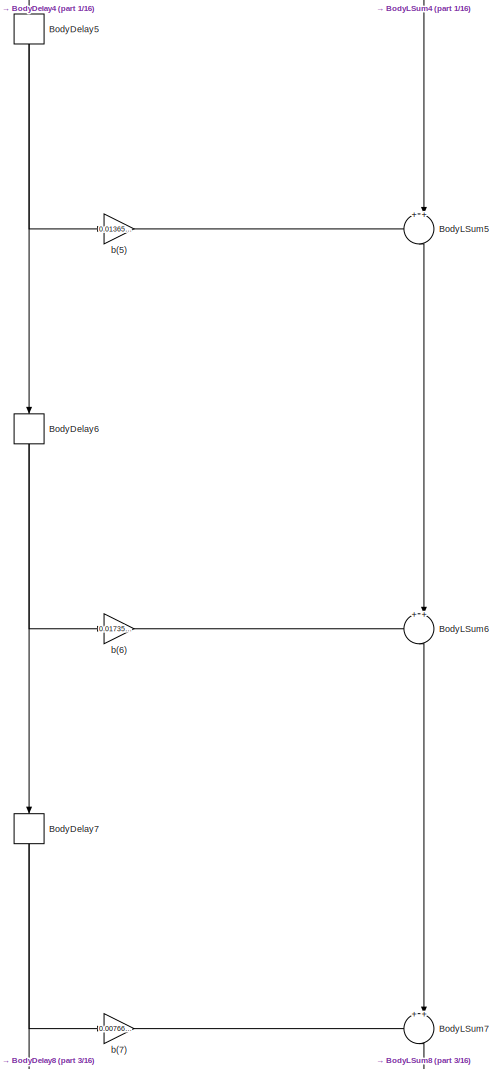
[diagram: Filter/segundofiltro - part 2/16, top center region]
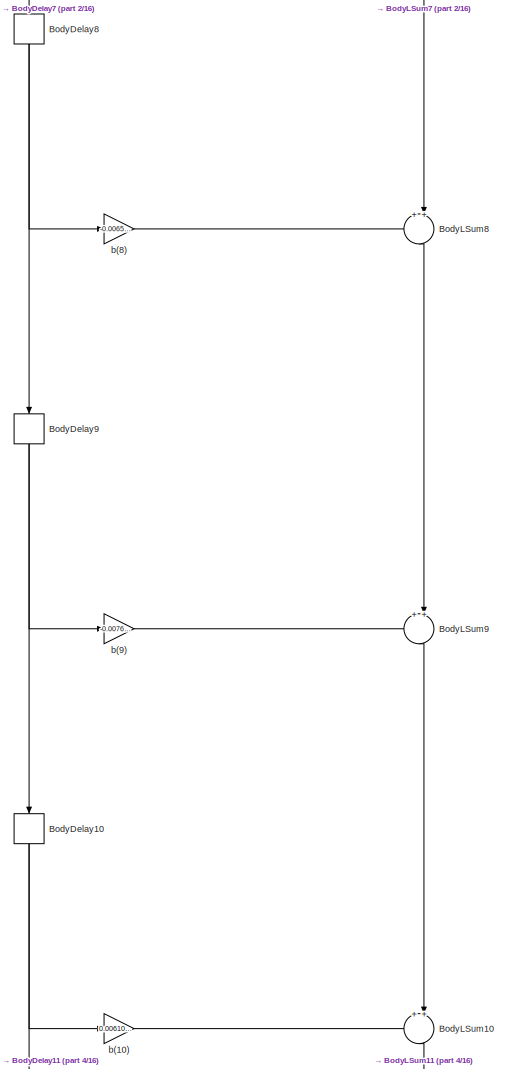
[diagram: Filter/segundofiltro - part 3/16, top center region]
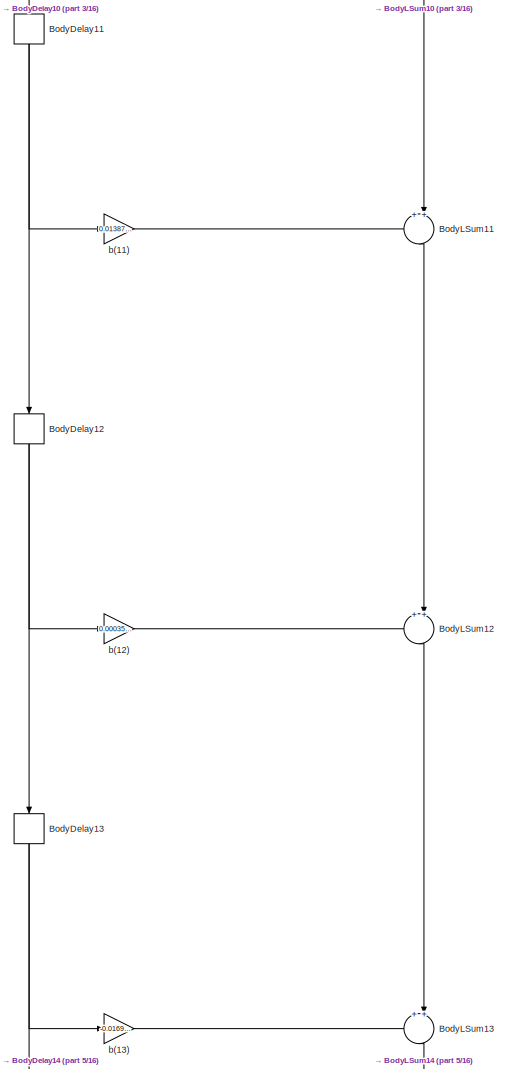
[diagram: Filter/segundofiltro - part 4/16, top center region]
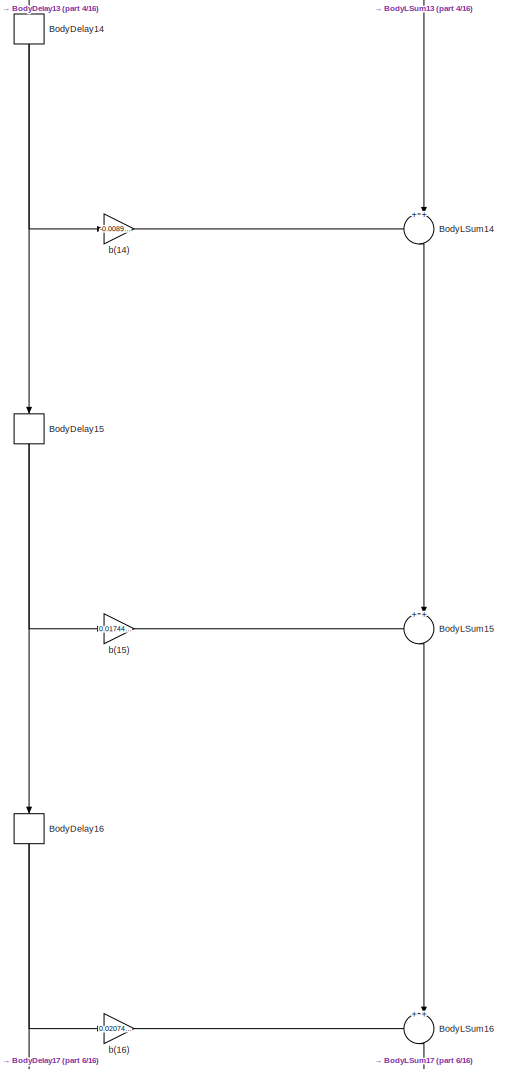
[diagram: Filter/segundofiltro - part 5/16, top center region]
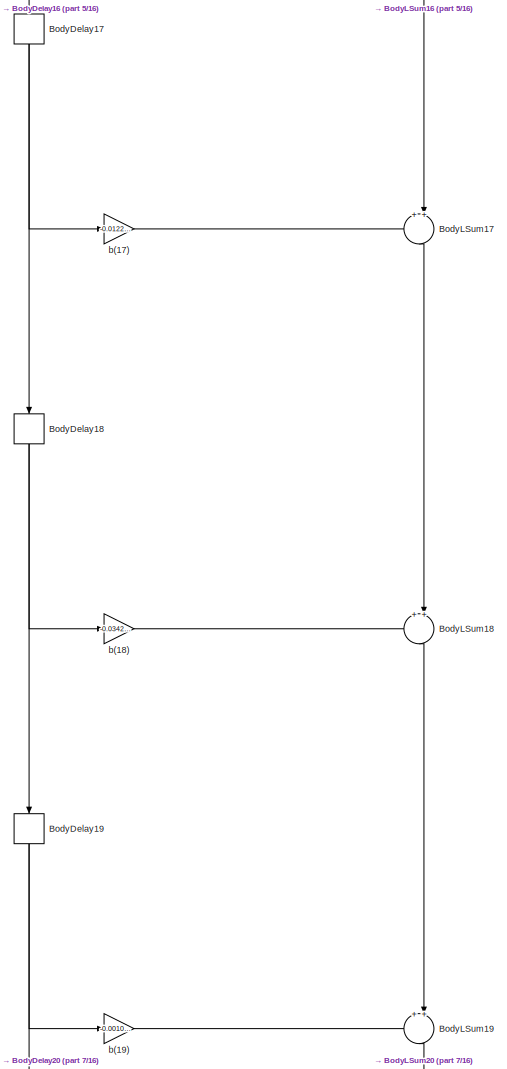
[diagram: Filter/segundofiltro - part 6/16, central region]
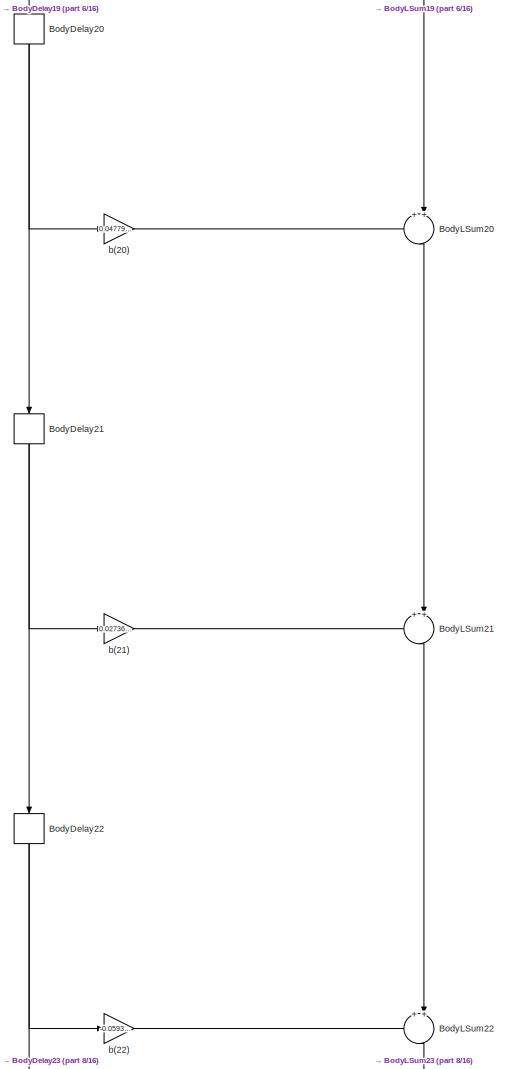
[diagram: Filter/segundofiltro - part 7/16, central region]
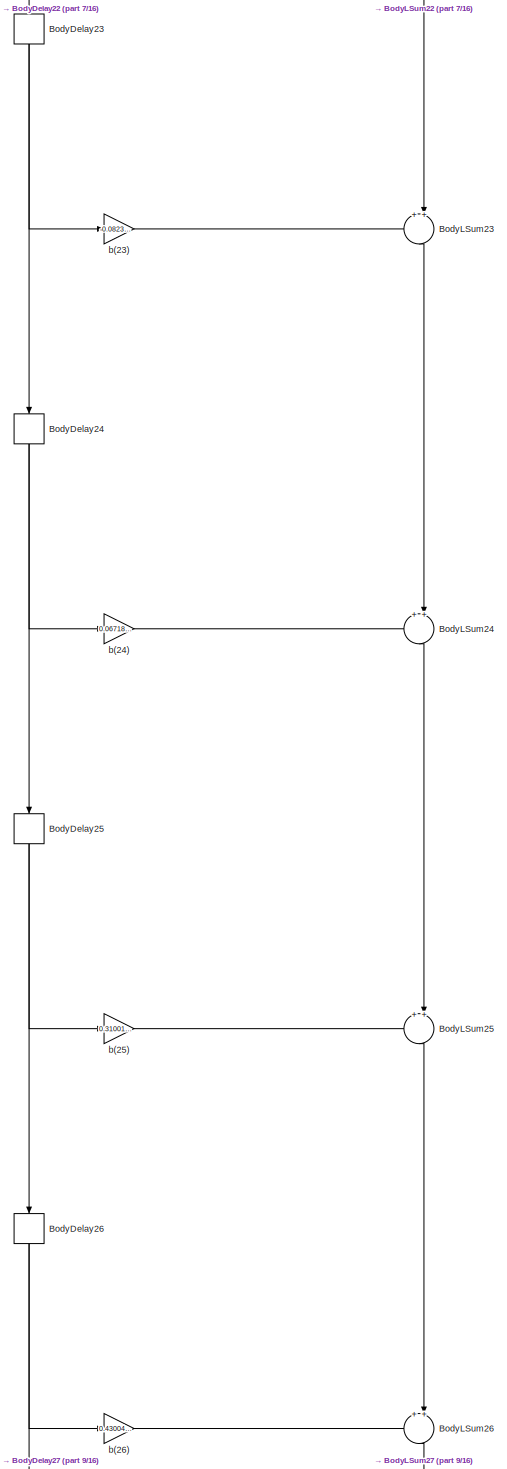
[diagram: Filter/segundofiltro - part 8/16, central region]
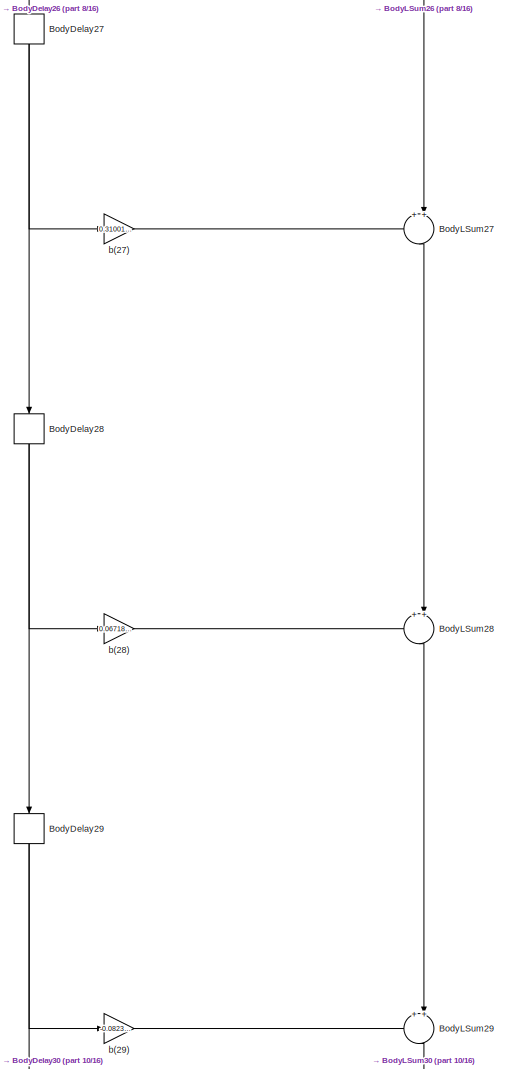
[diagram: Filter/segundofiltro - part 9/16, central region]
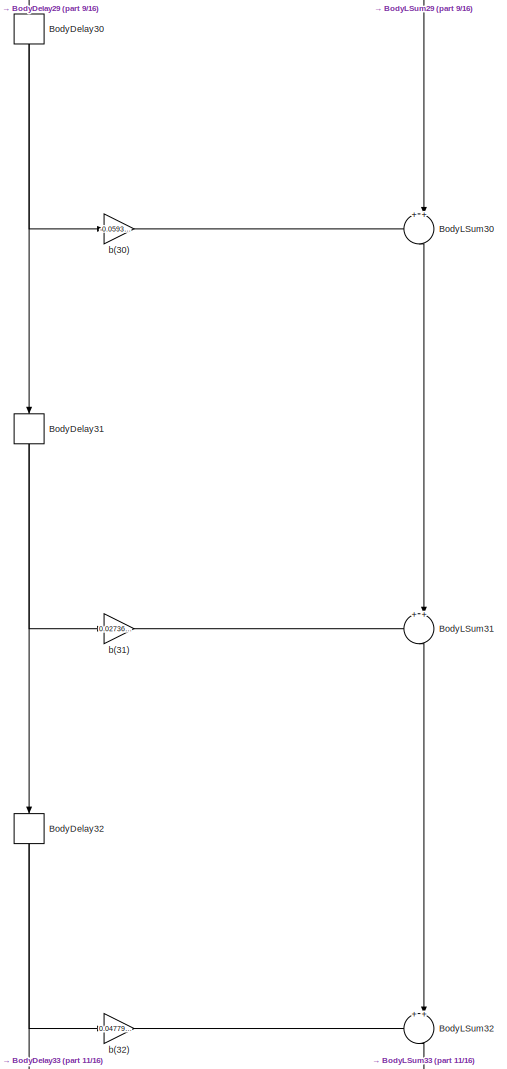
[diagram: Filter/segundofiltro - part 10/16, central region]
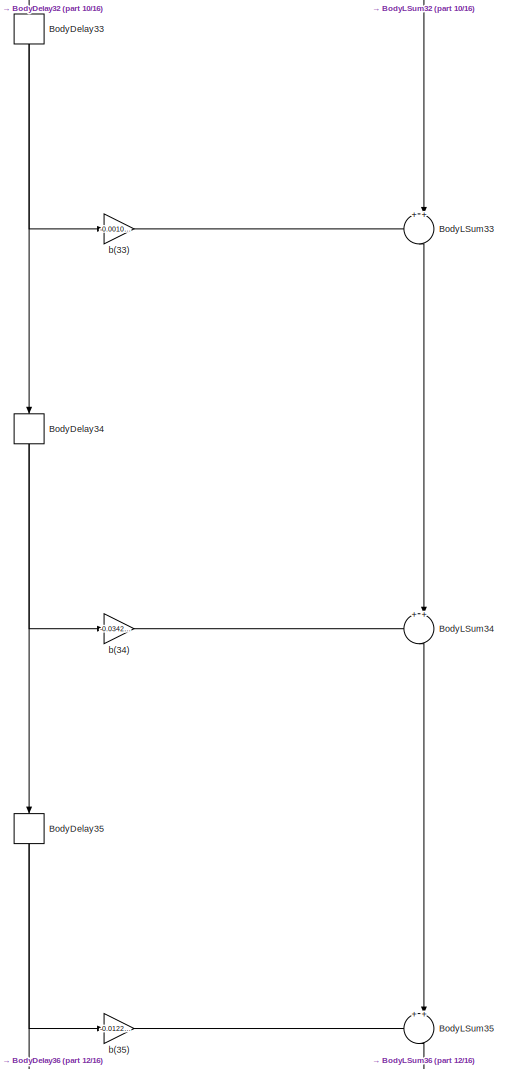
[diagram: Filter/segundofiltro - part 11/16, central region]
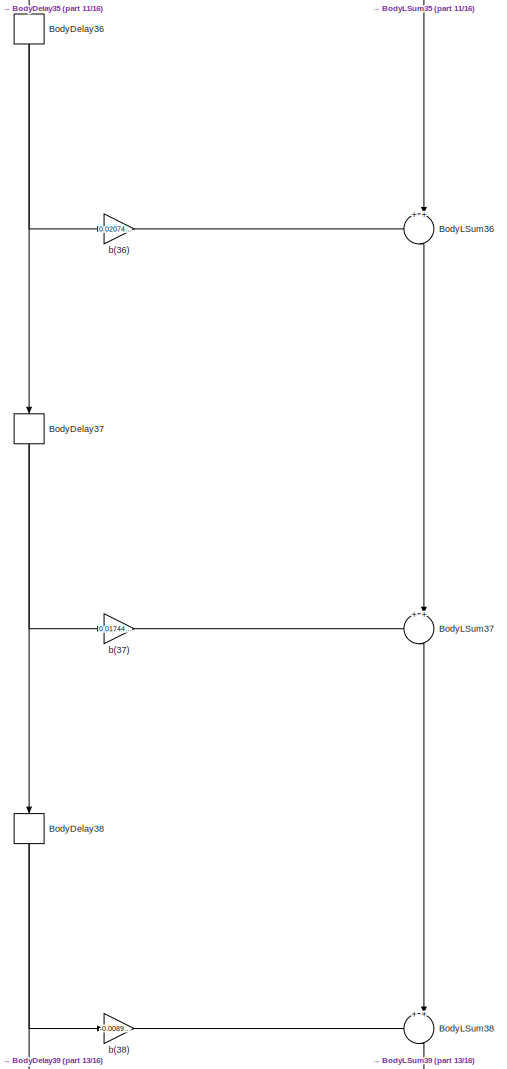
[diagram: Filter/segundofiltro - part 12/16, bottom center region]
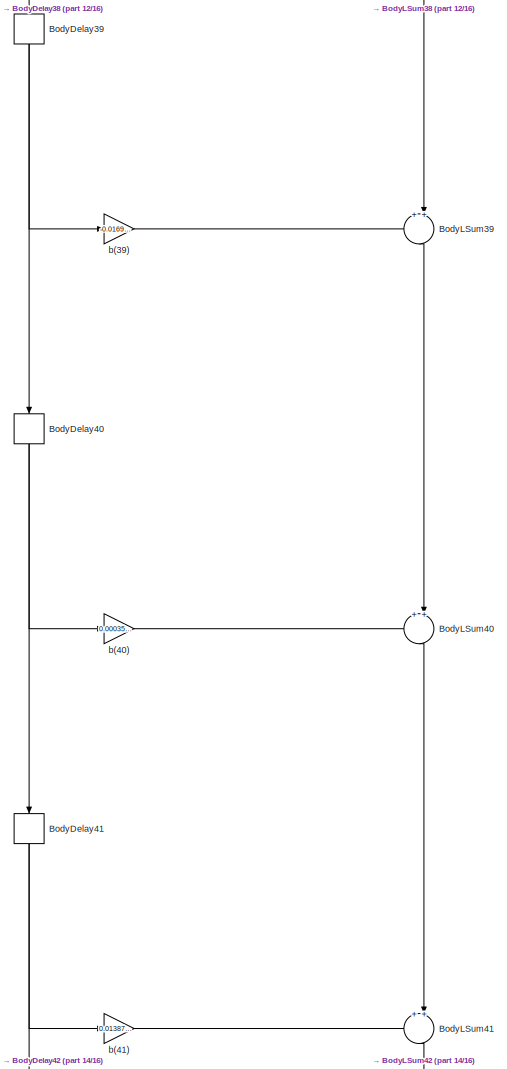
[diagram: Filter/segundofiltro - part 13/16, bottom center region]
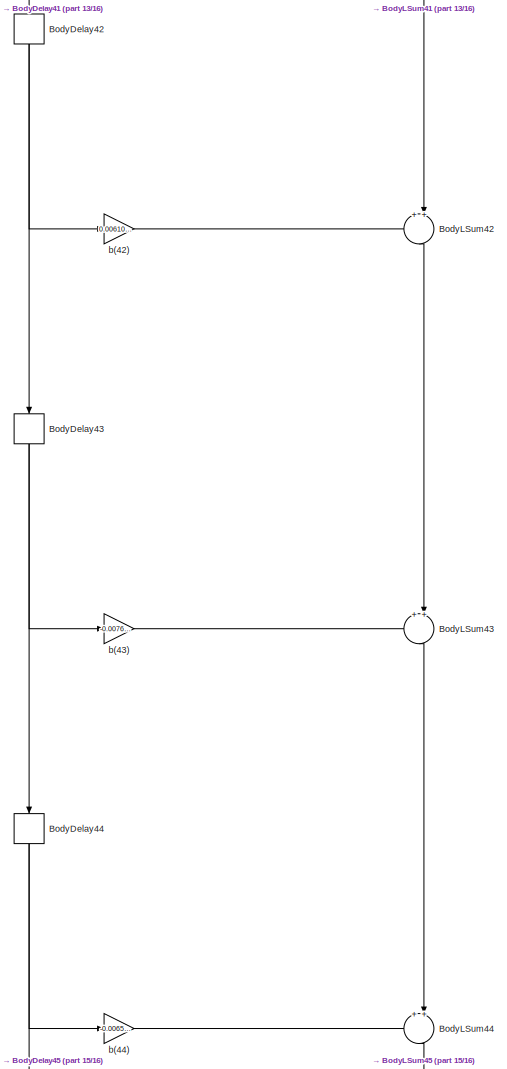
[diagram: Filter/segundofiltro - part 14/16, bottom center region]
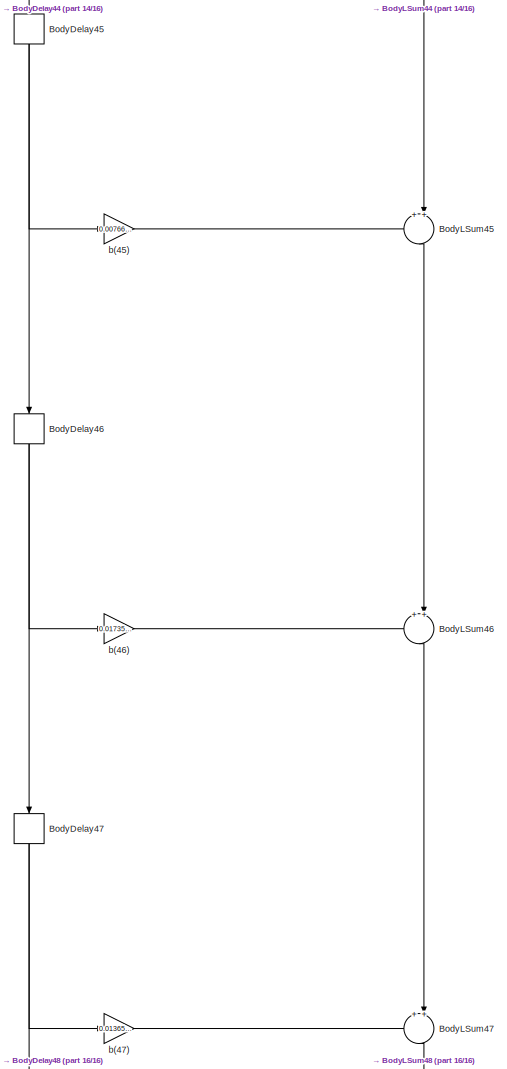
[diagram: Filter/segundofiltro - part 15/16, bottom center region]
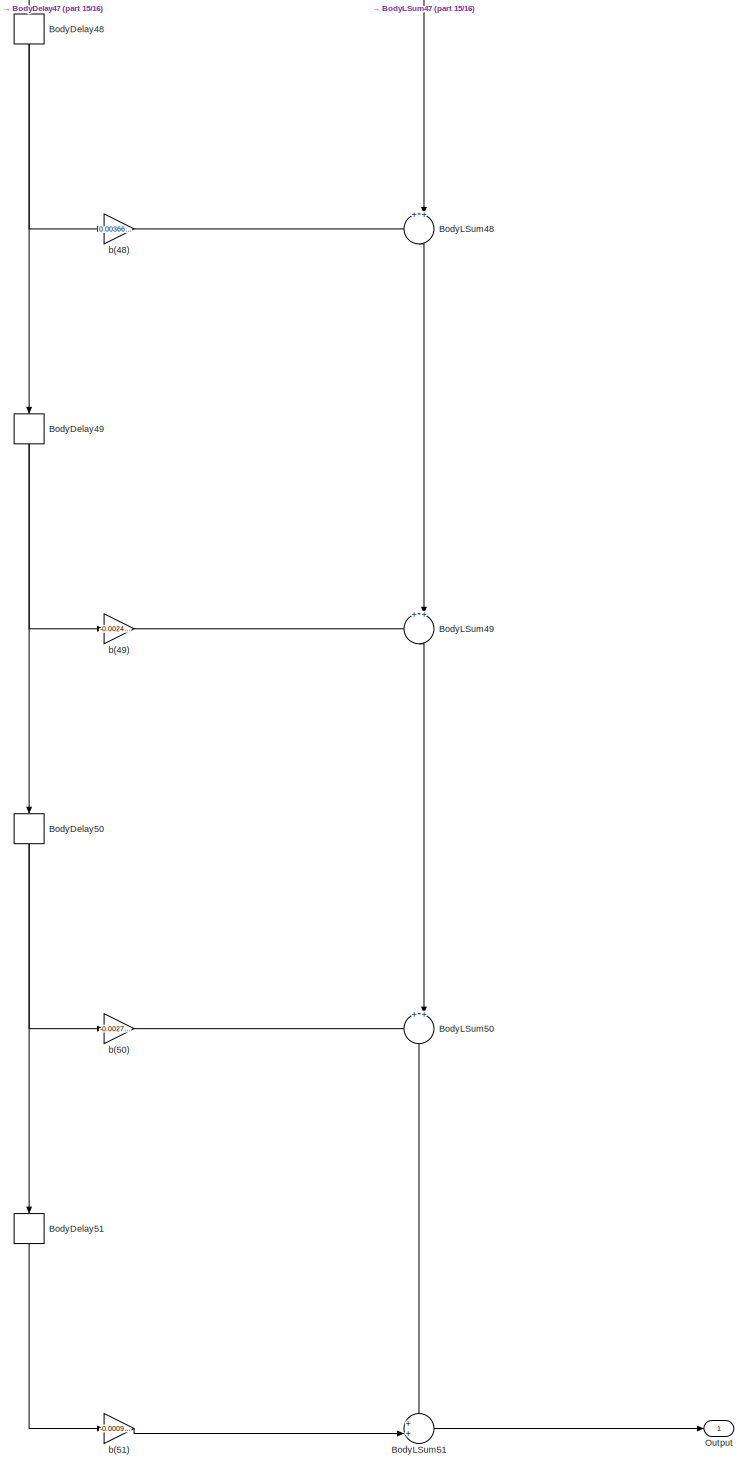
[diagram: Filter/segundofiltro - part 16/16, full width, bottom band]
BLOCK [SubSystem] Filter/segundofiltro
  ErrorFcn = dspFilterRealizedInBasicElemsAlgLoopErrFcnCallback
  Ports = [1, 1]
  RequestExecContextInheritance = off
  Tag = FilterWizardSubSystem
  UserDataPersistent = on
BLOCK [Delay] Filter/segundofiltro/BodyDelay10
  DelayLength = 1
  InitialCondition = 0
  InputPortMap = u0
  InputProcessing = Columns as channels (frame based)
  NameLocation = right
  Ports = [1, 1]
BLOCK [Delay] Filter/segundofiltro/BodyDelay11
  DelayLength = 1
  InitialCondition = 0
  InputPortMap = u0
  InputProcessing = Columns as channels (frame based)
  NameLocation = right
  Ports = [1, 1]
BLOCK [Delay] Filter/segundofiltro/BodyDelay12
  DelayLength = 1
  InitialCondition = 0
  InputPortMap = u0
  InputProcessing = Columns as channels (frame based)
  NameLocation = right
  Ports = [1, 1]
BLOCK [Delay] Filter/segundofiltro/BodyDelay13
  DelayLength = 1
  InitialCondition = 0
  InputPortMap = u0
  InputProcessing = Columns as channels (frame based)
  NameLocation = right
  Ports = [1, 1]
BLOCK [Delay] Filter/segundofiltro/BodyDelay14
  DelayLength = 1
  InitialCondition = 0
  InputPortMap = u0
  InputProcessing = Columns as channels (frame based)
  NameLocation = right
  Ports = [1, 1]
BLOCK [Delay] Filter/segundofiltro/BodyDelay15
  DelayLength = 1
  InitialCondition = 0
  InputPortMap = u0
  InputProcessing = Columns as channels (frame based)
  NameLocation = right
  Ports = [1, 1]
BLOCK [Delay] Filter/segundofiltro/BodyDelay16
  DelayLength = 1
  InitialCondition = 0
  InputPortMap = u0
  InputProcessing = Columns as channels (frame based)
  NameLocation = right
  Ports = [1, 1]
BLOCK [Delay] Filter/segundofiltro/BodyDelay17
  DelayLength = 1
  InitialCondition = 0
  InputPortMap = u0
  InputProcessing = Columns as channels (frame based)
  NameLocation = right
  Ports = [1, 1]
BLOCK [Delay] Filter/segundofiltro/BodyDelay18
  DelayLength = 1
  InitialCondition = 0
  InputPortMap = u0
  InputProcessing = Columns as channels (frame based)
  NameLocation = right
  Ports = [1, 1]
BLOCK [Delay] Filter/segundofiltro/BodyDelay19
  DelayLength = 1
  InitialCondition = 0
  InputPortMap = u0
  InputProcessing = Columns as channels (frame based)
  NameLocation = right
  Ports = [1, 1]
BLOCK [Delay] Filter/segundofiltro/BodyDelay2
  DelayLength = 1
  InitialCondition = 0
  InputPortMap = u0
  InputProcessing = Columns as channels (frame based)
  NameLocation = right
  Ports = [1, 1]
BLOCK [Delay] Filter/segundofiltro/BodyDelay20
  DelayLength = 1
  InitialCondition = 0
  InputPortMap = u0
  InputProcessing = Columns as channels (frame based)
  NameLocation = right
  Ports = [1, 1]
BLOCK [Delay] Filter/segundofiltro/BodyDelay21
  DelayLength = 1
  InitialCondition = 0
  InputPortMap = u0
  InputProcessing = Columns as channels (frame based)
  NameLocation = right
  Ports = [1, 1]
BLOCK [Delay] Filter/segundofiltro/BodyDelay22
  DelayLength = 1
  InitialCondition = 0
  InputPortMap = u0
  InputProcessing = Columns as channels (frame based)
  NameLocation = right
  Ports = [1, 1]
BLOCK [Delay] Filter/segundofiltro/BodyDelay23
  DelayLength = 1
  InitialCondition = 0
  InputPortMap = u0
  InputProcessing = Columns as channels (frame based)
  NameLocation = right
  Ports = [1, 1]
BLOCK [Delay] Filter/segundofiltro/BodyDelay24
  DelayLength = 1
  InitialCondition = 0
  InputPortMap = u0
  InputProcessing = Columns as channels (frame based)
  NameLocation = right
  Ports = [1, 1]
BLOCK [Delay] Filter/segundofiltro/BodyDelay25
  DelayLength = 1
  InitialCondition = 0
  InputPortMap = u0
  InputProcessing = Columns as channels (frame based)
  NameLocation = right
  Ports = [1, 1]
BLOCK [Delay] Filter/segundofiltro/BodyDelay26
  DelayLength = 1
  InitialCondition = 0
  InputPortMap = u0
  InputProcessing = Columns as channels (frame based)
  NameLocation = right
  Ports = [1, 1]
BLOCK [Delay] Filter/segundofiltro/BodyDelay27
  DelayLength = 1
  InitialCondition = 0
  InputPortMap = u0
  InputProcessing = Columns as channels (frame based)
  NameLocation = right
  Ports = [1, 1]
BLOCK [Delay] Filter/segundofiltro/BodyDelay28
  DelayLength = 1
  InitialCondition = 0
  InputPortMap = u0
  InputProcessing = Columns as channels (frame based)
  NameLocation = right
  Ports = [1, 1]
BLOCK [Delay] Filter/segundofiltro/BodyDelay29
  DelayLength = 1
  InitialCondition = 0
  InputPortMap = u0
  InputProcessing = Columns as channels (frame based)
  NameLocation = right
  Ports = [1, 1]
BLOCK [Delay] Filter/segundofiltro/BodyDelay3
  DelayLength = 1
  InitialCondition = 0
  InputPortMap = u0
  InputProcessing = Columns as channels (frame based)
  NameLocation = right
  Ports = [1, 1]
BLOCK [Delay] Filter/segundofiltro/BodyDelay30
  DelayLength = 1
  InitialCondition = 0
  InputPortMap = u0
  InputProcessing = Columns as channels (frame based)
  NameLocation = right
  Ports = [1, 1]
BLOCK [Delay] Filter/segundofiltro/BodyDelay31
  DelayLength = 1
  InitialCondition = 0
  InputPortMap = u0
  InputProcessing = Columns as channels (frame based)
  NameLocation = right
  Ports = [1, 1]
BLOCK [Delay] Filter/segundofiltro/BodyDelay32
  DelayLength = 1
  InitialCondition = 0
  InputPortMap = u0
  InputProcessing = Columns as channels (frame based)
  NameLocation = right
  Ports = [1, 1]
BLOCK [Delay] Filter/segundofiltro/BodyDelay33
  DelayLength = 1
  InitialCondition = 0
  InputPortMap = u0
  InputProcessing = Columns as channels (frame based)
  NameLocation = right
  Ports = [1, 1]
BLOCK [Delay] Filter/segundofiltro/BodyDelay34
  DelayLength = 1
  InitialCondition = 0
  InputPortMap = u0
  InputProcessing = Columns as channels (frame based)
  NameLocation = right
  Ports = [1, 1]
BLOCK [Delay] Filter/segundofiltro/BodyDelay35
  DelayLength = 1
  InitialCondition = 0
  InputPortMap = u0
  InputProcessing = Columns as channels (frame based)
  NameLocation = right
  Ports = [1, 1]
BLOCK [Delay] Filter/segundofiltro/BodyDelay36
  DelayLength = 1
  InitialCondition = 0
  InputPortMap = u0
  InputProcessing = Columns as channels (frame based)
  NameLocation = right
  Ports = [1, 1]
BLOCK [Delay] Filter/segundofiltro/BodyDelay37
  DelayLength = 1
  InitialCondition = 0
  InputPortMap = u0
  InputProcessing = Columns as channels (frame based)
  NameLocation = right
  Ports = [1, 1]
BLOCK [Delay] Filter/segundofiltro/BodyDelay38
  DelayLength = 1
  InitialCondition = 0
  InputPortMap = u0
  InputProcessing = Columns as channels (frame based)
  NameLocation = right
  Ports = [1, 1]
BLOCK [Delay] Filter/segundofiltro/BodyDelay39
  DelayLength = 1
  InitialCondition = 0
  InputPortMap = u0
  InputProcessing = Columns as channels (frame based)
  NameLocation = right
  Ports = [1, 1]
BLOCK [Delay] Filter/segundofiltro/BodyDelay4
  DelayLength = 1
  InitialCondition = 0
  InputPortMap = u0
  InputProcessing = Columns as channels (frame based)
  NameLocation = right
  Ports = [1, 1]
BLOCK [Delay] Filter/segundofiltro/BodyDelay40
  DelayLength = 1
  InitialCondition = 0
  InputPortMap = u0
  InputProcessing = Columns as channels (frame based)
  NameLocation = right
  Ports = [1, 1]
BLOCK [Delay] Filter/segundofiltro/BodyDelay41
  DelayLength = 1
  InitialCondition = 0
  InputPortMap = u0
  InputProcessing = Columns as channels (frame based)
  NameLocation = right
  Ports = [1, 1]
BLOCK [Delay] Filter/segundofiltro/BodyDelay42
  DelayLength = 1
  InitialCondition = 0
  InputPortMap = u0
  InputProcessing = Columns as channels (frame based)
  NameLocation = right
  Ports = [1, 1]
BLOCK [Delay] Filter/segundofiltro/BodyDelay43
  DelayLength = 1
  InitialCondition = 0
  InputPortMap = u0
  InputProcessing = Columns as channels (frame based)
  NameLocation = right
  Ports = [1, 1]
BLOCK [Delay] Filter/segundofiltro/BodyDelay44
  DelayLength = 1
  InitialCondition = 0
  InputPortMap = u0
  InputProcessing = Columns as channels (frame based)
  NameLocation = right
  Ports = [1, 1]
BLOCK [Delay] Filter/segundofiltro/BodyDelay45
  DelayLength = 1
  InitialCondition = 0
  InputPortMap = u0
  InputProcessing = Columns as channels (frame based)
  NameLocation = right
  Ports = [1, 1]
BLOCK [Delay] Filter/segundofiltro/BodyDelay46
  DelayLength = 1
  InitialCondition = 0
  InputPortMap = u0
  InputProcessing = Columns as channels (frame based)
  NameLocation = right
  Ports = [1, 1]
BLOCK [Delay] Filter/segundofiltro/BodyDelay47
  DelayLength = 1
  InitialCondition = 0
  InputPortMap = u0
  InputProcessing = Columns as channels (frame based)
  NameLocation = right
  Ports = [1, 1]
BLOCK [Delay] Filter/segundofiltro/BodyDelay48
  DelayLength = 1
  InitialCondition = 0
  InputPortMap = u0
  InputProcessing = Columns as channels (frame based)
  NameLocation = right
  Ports = [1, 1]
BLOCK [Delay] Filter/segundofiltro/BodyDelay49
  DelayLength = 1
  InitialCondition = 0
  InputPortMap = u0
  InputProcessing = Columns as channels (frame based)
  NameLocation = right
  Ports = [1, 1]
BLOCK [Delay] Filter/segundofiltro/BodyDelay5
  DelayLength = 1
  InitialCondition = 0
  InputPortMap = u0
  InputProcessing = Columns as channels (frame based)
  NameLocation = right
  Ports = [1, 1]
BLOCK [Delay] Filter/segundofiltro/BodyDelay50
  DelayLength = 1
  InitialCondition = 0
  InputPortMap = u0
  InputProcessing = Columns as channels (frame based)
  NameLocation = right
  Ports = [1, 1]
BLOCK [Delay] Filter/segundofiltro/BodyDelay51
  DelayLength = 1
  InitialCondition = 0
  InputPortMap = u0
  InputProcessing = Columns as channels (frame based)
  NameLocation = right
  Ports = [1, 1]
BLOCK [Delay] Filter/segundofiltro/BodyDelay6
  DelayLength = 1
  InitialCondition = 0
  InputPortMap = u0
  InputProcessing = Columns as channels (frame based)
  NameLocation = right
  Ports = [1, 1]
BLOCK [Delay] Filter/segundofiltro/BodyDelay7
  DelayLength = 1
  InitialCondition = 0
  InputPortMap = u0
  InputProcessing = Columns as channels (frame based)
  NameLocation = right
  Ports = [1, 1]
BLOCK [Delay] Filter/segundofiltro/BodyDelay8
  DelayLength = 1
  InitialCondition = 0
  InputPortMap = u0
  InputProcessing = Columns as channels (frame based)
  NameLocation = right
  Ports = [1, 1]
BLOCK [Delay] Filter/segundofiltro/BodyDelay9
  DelayLength = 1
  InitialCondition = 0
  InputPortMap = u0
  InputProcessing = Columns as channels (frame based)
  NameLocation = right
  Ports = [1, 1]
BLOCK [Sum] Filter/segundofiltro/BodyLSum10
  Inputs = ++|
  NameLocation = right
  OutDataTypeStr = Inherit: Same as first input
  Ports = [2, 1]
  RndMeth = Nearest
  SaturateOnIntegerOverflow = on
BLOCK [Sum] Filter/segundofiltro/BodyLSum11
  Inputs = ++|
  NameLocation = right
  OutDataTypeStr = Inherit: Same as first input
  Ports = [2, 1]
  RndMeth = Nearest
  SaturateOnIntegerOverflow = on
BLOCK [Sum] Filter/segundofiltro/BodyLSum12
  Inputs = ++|
  NameLocation = right
  OutDataTypeStr = Inherit: Same as first input
  Ports = [2, 1]
  RndMeth = Nearest
  SaturateOnIntegerOverflow = on
BLOCK [Sum] Filter/segundofiltro/BodyLSum13
  Inputs = ++|
  NameLocation = right
  OutDataTypeStr = Inherit: Same as first input
  Ports = [2, 1]
  RndMeth = Nearest
  SaturateOnIntegerOverflow = on
BLOCK [Sum] Filter/segundofiltro/BodyLSum14
  Inputs = ++|
  NameLocation = right
  OutDataTypeStr = Inherit: Same as first input
  Ports = [2, 1]
  RndMeth = Nearest
  SaturateOnIntegerOverflow = on
BLOCK [Sum] Filter/segundofiltro/BodyLSum15
  Inputs = ++|
  NameLocation = right
  OutDataTypeStr = Inherit: Same as first input
  Ports = [2, 1]
  RndMeth = Nearest
  SaturateOnIntegerOverflow = on
BLOCK [Sum] Filter/segundofiltro/BodyLSum16
  Inputs = ++|
  NameLocation = right
  OutDataTypeStr = Inherit: Same as first input
  Ports = [2, 1]
  RndMeth = Nearest
  SaturateOnIntegerOverflow = on
BLOCK [Sum] Filter/segundofiltro/BodyLSum17
  Inputs = ++|
  NameLocation = right
  OutDataTypeStr = Inherit: Same as first input
  Ports = [2, 1]
  RndMeth = Nearest
  SaturateOnIntegerOverflow = on
BLOCK [Sum] Filter/segundofiltro/BodyLSum18
  Inputs = ++|
  NameLocation = right
  OutDataTypeStr = Inherit: Same as first input
  Ports = [2, 1]
  RndMeth = Nearest
  SaturateOnIntegerOverflow = on
BLOCK [Sum] Filter/segundofiltro/BodyLSum19
  Inputs = ++|
  NameLocation = right
  OutDataTypeStr = Inherit: Same as first input
  Ports = [2, 1]
  RndMeth = Nearest
  SaturateOnIntegerOverflow = on
BLOCK [Sum] Filter/segundofiltro/BodyLSum2
  Inputs = ++|
  NameLocation = right
  OutDataTypeStr = Inherit: Same as first input
  Ports = [2, 1]
  RndMeth = Nearest
  SaturateOnIntegerOverflow = on
BLOCK [Sum] Filter/segundofiltro/BodyLSum20
  Inputs = ++|
  NameLocation = right
  OutDataTypeStr = Inherit: Same as first input
  Ports = [2, 1]
  RndMeth = Nearest
  SaturateOnIntegerOverflow = on
BLOCK [Sum] Filter/segundofiltro/BodyLSum21
  Inputs = ++|
  NameLocation = right
  OutDataTypeStr = Inherit: Same as first input
  Ports = [2, 1]
  RndMeth = Nearest
  SaturateOnIntegerOverflow = on
BLOCK [Sum] Filter/segundofiltro/BodyLSum22
  Inputs = ++|
  NameLocation = right
  OutDataTypeStr = Inherit: Same as first input
  Ports = [2, 1]
  RndMeth = Nearest
  SaturateOnIntegerOverflow = on
BLOCK [Sum] Filter/segundofiltro/BodyLSum23
  Inputs = ++|
  NameLocation = right
  OutDataTypeStr = Inherit: Same as first input
  Ports = [2, 1]
  RndMeth = Nearest
  SaturateOnIntegerOverflow = on
BLOCK [Sum] Filter/segundofiltro/BodyLSum24
  Inputs = ++|
  NameLocation = right
  OutDataTypeStr = Inherit: Same as first input
  Ports = [2, 1]
  RndMeth = Nearest
  SaturateOnIntegerOverflow = on
BLOCK [Sum] Filter/segundofiltro/BodyLSum25
  Inputs = ++|
  NameLocation = right
  OutDataTypeStr = Inherit: Same as first input
  Ports = [2, 1]
  RndMeth = Nearest
  SaturateOnIntegerOverflow = on
BLOCK [Sum] Filter/segundofiltro/BodyLSum26
  Inputs = ++|
  NameLocation = right
  OutDataTypeStr = Inherit: Same as first input
  Ports = [2, 1]
  RndMeth = Nearest
  SaturateOnIntegerOverflow = on
BLOCK [Sum] Filter/segundofiltro/BodyLSum27
  Inputs = ++|
  NameLocation = right
  OutDataTypeStr = Inherit: Same as first input
  Ports = [2, 1]
  RndMeth = Nearest
  SaturateOnIntegerOverflow = on
BLOCK [Sum] Filter/segundofiltro/BodyLSum28
  Inputs = ++|
  NameLocation = right
  OutDataTypeStr = Inherit: Same as first input
  Ports = [2, 1]
  RndMeth = Nearest
  SaturateOnIntegerOverflow = on
BLOCK [Sum] Filter/segundofiltro/BodyLSum29
  Inputs = ++|
  NameLocation = right
  OutDataTypeStr = Inherit: Same as first input
  Ports = [2, 1]
  RndMeth = Nearest
  SaturateOnIntegerOverflow = on
BLOCK [Sum] Filter/segundofiltro/BodyLSum3
  Inputs = ++|
  NameLocation = right
  OutDataTypeStr = Inherit: Same as first input
  Ports = [2, 1]
  RndMeth = Nearest
  SaturateOnIntegerOverflow = on
BLOCK [Sum] Filter/segundofiltro/BodyLSum30
  Inputs = ++|
  NameLocation = right
  OutDataTypeStr = Inherit: Same as first input
  Ports = [2, 1]
  RndMeth = Nearest
  SaturateOnIntegerOverflow = on
BLOCK [Sum] Filter/segundofiltro/BodyLSum31
  Inputs = ++|
  NameLocation = right
  OutDataTypeStr = Inherit: Same as first input
  Ports = [2, 1]
  RndMeth = Nearest
  SaturateOnIntegerOverflow = on
BLOCK [Sum] Filter/segundofiltro/BodyLSum32
  Inputs = ++|
  NameLocation = right
  OutDataTypeStr = Inherit: Same as first input
  Ports = [2, 1]
  RndMeth = Nearest
  SaturateOnIntegerOverflow = on
BLOCK [Sum] Filter/segundofiltro/BodyLSum33
  Inputs = ++|
  NameLocation = right
  OutDataTypeStr = Inherit: Same as first input
  Ports = [2, 1]
  RndMeth = Nearest
  SaturateOnIntegerOverflow = on
BLOCK [Sum] Filter/segundofiltro/BodyLSum34
  Inputs = ++|
  NameLocation = right
  OutDataTypeStr = Inherit: Same as first input
  Ports = [2, 1]
  RndMeth = Nearest
  SaturateOnIntegerOverflow = on
BLOCK [Sum] Filter/segundofiltro/BodyLSum35
  Inputs = ++|
  NameLocation = right
  OutDataTypeStr = Inherit: Same as first input
  Ports = [2, 1]
  RndMeth = Nearest
  SaturateOnIntegerOverflow = on
BLOCK [Sum] Filter/segundofiltro/BodyLSum36
  Inputs = ++|
  NameLocation = right
  OutDataTypeStr = Inherit: Same as first input
  Ports = [2, 1]
  RndMeth = Nearest
  SaturateOnIntegerOverflow = on
BLOCK [Sum] Filter/segundofiltro/BodyLSum37
  Inputs = ++|
  NameLocation = right
  OutDataTypeStr = Inherit: Same as first input
  Ports = [2, 1]
  RndMeth = Nearest
  SaturateOnIntegerOverflow = on
BLOCK [Sum] Filter/segundofiltro/BodyLSum38
  Inputs = ++|
  NameLocation = right
  OutDataTypeStr = Inherit: Same as first input
  Ports = [2, 1]
  RndMeth = Nearest
  SaturateOnIntegerOverflow = on
BLOCK [Sum] Filter/segundofiltro/BodyLSum39
  Inputs = ++|
  NameLocation = right
  OutDataTypeStr = Inherit: Same as first input
  Ports = [2, 1]
  RndMeth = Nearest
  SaturateOnIntegerOverflow = on
BLOCK [Sum] Filter/segundofiltro/BodyLSum4
  Inputs = ++|
  NameLocation = right
  OutDataTypeStr = Inherit: Same as first input
  Ports = [2, 1]
  RndMeth = Nearest
  SaturateOnIntegerOverflow = on
BLOCK [Sum] Filter/segundofiltro/BodyLSum40
  Inputs = ++|
  NameLocation = right
  OutDataTypeStr = Inherit: Same as first input
  Ports = [2, 1]
  RndMeth = Nearest
  SaturateOnIntegerOverflow = on
BLOCK [Sum] Filter/segundofiltro/BodyLSum41
  Inputs = ++|
  NameLocation = right
  OutDataTypeStr = Inherit: Same as first input
  Ports = [2, 1]
  RndMeth = Nearest
  SaturateOnIntegerOverflow = on
BLOCK [Sum] Filter/segundofiltro/BodyLSum42
  Inputs = ++|
  NameLocation = right
  OutDataTypeStr = Inherit: Same as first input
  Ports = [2, 1]
  RndMeth = Nearest
  SaturateOnIntegerOverflow = on
BLOCK [Sum] Filter/segundofiltro/BodyLSum43
  Inputs = ++|
  NameLocation = right
  OutDataTypeStr = Inherit: Same as first input
  Ports = [2, 1]
  RndMeth = Nearest
  SaturateOnIntegerOverflow = on
BLOCK [Sum] Filter/segundofiltro/BodyLSum44
  Inputs = ++|
  NameLocation = right
  OutDataTypeStr = Inherit: Same as first input
  Ports = [2, 1]
  RndMeth = Nearest
  SaturateOnIntegerOverflow = on
BLOCK [Sum] Filter/segundofiltro/BodyLSum45
  Inputs = ++|
  NameLocation = right
  OutDataTypeStr = Inherit: Same as first input
  Ports = [2, 1]
  RndMeth = Nearest
  SaturateOnIntegerOverflow = on
BLOCK [Sum] Filter/segundofiltro/BodyLSum46
  Inputs = ++|
  NameLocation = right
  OutDataTypeStr = Inherit: Same as first input
  Ports = [2, 1]
  RndMeth = Nearest
  SaturateOnIntegerOverflow = on
BLOCK [Sum] Filter/segundofiltro/BodyLSum47
  Inputs = ++|
  NameLocation = right
  OutDataTypeStr = Inherit: Same as first input
  Ports = [2, 1]
  RndMeth = Nearest
  SaturateOnIntegerOverflow = on
BLOCK [Sum] Filter/segundofiltro/BodyLSum48
  Inputs = ++|
  NameLocation = right
  OutDataTypeStr = Inherit: Same as first input
  Ports = [2, 1]
  RndMeth = Nearest
  SaturateOnIntegerOverflow = on
BLOCK [Sum] Filter/segundofiltro/BodyLSum49
  Inputs = ++|
  NameLocation = right
  OutDataTypeStr = Inherit: Same as first input
  Ports = [2, 1]
  RndMeth = Nearest
  SaturateOnIntegerOverflow = on
BLOCK [Sum] Filter/segundofiltro/BodyLSum5
  Inputs = ++|
  NameLocation = right
  OutDataTypeStr = Inherit: Same as first input
  Ports = [2, 1]
  RndMeth = Nearest
  SaturateOnIntegerOverflow = on
BLOCK [Sum] Filter/segundofiltro/BodyLSum50
  Inputs = ++|
  NameLocation = right
  OutDataTypeStr = Inherit: Same as first input
  Ports = [2, 1]
  RndMeth = Nearest
  SaturateOnIntegerOverflow = on
BLOCK [Sum] Filter/segundofiltro/BodyLSum51
  Inputs = ++|
  OutDataTypeStr = Inherit: Same as first input
  Ports = [2, 1]
  RndMeth = Nearest
  SaturateOnIntegerOverflow = on
BLOCK [Sum] Filter/segundofiltro/BodyLSum6
  Inputs = ++|
  NameLocation = right
  OutDataTypeStr = Inherit: Same as first input
  Ports = [2, 1]
  RndMeth = Nearest
  SaturateOnIntegerOverflow = on
BLOCK [Sum] Filter/segundofiltro/BodyLSum7
  Inputs = ++|
  NameLocation = right
  OutDataTypeStr = Inherit: Same as first input
  Ports = [2, 1]
  RndMeth = Nearest
  SaturateOnIntegerOverflow = on
BLOCK [Sum] Filter/segundofiltro/BodyLSum8
  Inputs = ++|
  NameLocation = right
  OutDataTypeStr = Inherit: Same as first input
  Ports = [2, 1]
  RndMeth = Nearest
  SaturateOnIntegerOverflow = on
BLOCK [Sum] Filter/segundofiltro/BodyLSum9
  Inputs = ++|
  NameLocation = right
  OutDataTypeStr = Inherit: Same as first input
  Ports = [2, 1]
  RndMeth = Nearest
  SaturateOnIntegerOverflow = on
BLOCK [Inport] Filter/segundofiltro/Input
BLOCK [Outport] Filter/segundofiltro/Output
BLOCK [Gain] Filter/segundofiltro/b(1)
  Gain = -0.000919098208468256033
  OutDataTypeStr = Inherit: Same as input
  ParamDataTypeStr = double
  RndMeth = Nearest
  SaturateOnIntegerOverflow = on
BLOCK [Gain] Filter/segundofiltro/b(10)
  Gain = 0.00610545942139436009
  OutDataTypeStr = Inherit: Same as input
  ParamDataTypeStr = double
  RndMeth = Nearest
  SaturateOnIntegerOverflow = on
BLOCK [Gain] Filter/segundofiltro/b(11)
  Gain = 0.0138739157486354008
  OutDataTypeStr = Inherit: Same as input
  ParamDataTypeStr = double
  RndMeth = Nearest
  SaturateOnIntegerOverflow = on
BLOCK [Gain] Filter/segundofiltro/b(12)
  Gain = 0.000350861728290910002
  OutDataTypeStr = Inherit: Same as input
  ParamDataTypeStr = double
  RndMeth = Nearest
  SaturateOnIntegerOverflow = on
BLOCK [Gain] Filter/segundofiltro/b(13)
  Gain = -0.0169089254366905015
  OutDataTypeStr = Inherit: Same as input
  ParamDataTypeStr = double
  RndMeth = Nearest
  SaturateOnIntegerOverflow = on
BLOCK [Gain] Filter/segundofiltro/b(14)
  Gain = -0.00890564274915867961
  OutDataTypeStr = Inherit: Same as input
  ParamDataTypeStr = double
  RndMeth = Nearest
  SaturateOnIntegerOverflow = on
BLOCK [Gain] Filter/segundofiltro/b(15)
  Gain = 0.0174411295008548989
  OutDataTypeStr = Inherit: Same as input
  ParamDataTypeStr = double
  RndMeth = Nearest
  SaturateOnIntegerOverflow = on
BLOCK [Gain] Filter/segundofiltro/b(16)
  Gain = 0.0207450445276099009
  OutDataTypeStr = Inherit: Same as input
  ParamDataTypeStr = double
  RndMeth = Nearest
  SaturateOnIntegerOverflow = on
BLOCK [Gain] Filter/segundofiltro/b(17)
  Gain = -0.0122964942519403
  OutDataTypeStr = Inherit: Same as input
  ParamDataTypeStr = double
  RndMeth = Nearest
  SaturateOnIntegerOverflow = on
BLOCK [Gain] Filter/segundofiltro/b(18)
  Gain = -0.034240865909578401
  OutDataTypeStr = Inherit: Same as input
  ParamDataTypeStr = double
  RndMeth = Nearest
  SaturateOnIntegerOverflow = on
BLOCK [Gain] Filter/segundofiltro/b(19)
  Gain = -0.00103452960557239991
  OutDataTypeStr = Inherit: Same as input
  ParamDataTypeStr = double
  RndMeth = Nearest
  SaturateOnIntegerOverflow = on
BLOCK [Gain] Filter/segundofiltro/b(2)
  Gain = -0.00271769602659550002
  OutDataTypeStr = Inherit: Same as input
  ParamDataTypeStr = double
  RndMeth = Nearest
  SaturateOnIntegerOverflow = on
BLOCK [Gain] Filter/segundofiltro/b(20)
  Gain = 0.0477903055208014974
  OutDataTypeStr = Inherit: Same as input
  ParamDataTypeStr = double
  RndMeth = Nearest
  SaturateOnIntegerOverflow = on
BLOCK [Gain] Filter/segundofiltro/b(21)
  Gain = 0.0273630379148479992
  OutDataTypeStr = Inherit: Same as input
  ParamDataTypeStr = double
  RndMeth = Nearest
  SaturateOnIntegerOverflow = on
BLOCK [Gain] Filter/segundofiltro/b(22)
  Gain = -0.0593795188310465988
  OutDataTypeStr = Inherit: Same as input
  ParamDataTypeStr = double
  RndMeth = Nearest
  SaturateOnIntegerOverflow = on
BLOCK [Gain] Filter/segundofiltro/b(23)
  Gain = -0.0823070259292291023
  OutDataTypeStr = Inherit: Same as input
  ParamDataTypeStr = double
  RndMeth = Nearest
  SaturateOnIntegerOverflow = on
BLOCK [Gain] Filter/segundofiltro/b(24)
  Gain = 0.0671869094328705063
  OutDataTypeStr = Inherit: Same as input
  ParamDataTypeStr = double
  RndMeth = Nearest
  SaturateOnIntegerOverflow = on
BLOCK [Gain] Filter/segundofiltro/b(25)
  Gain = 0.310015177090251004
  OutDataTypeStr = Inherit: Same as input
  ParamDataTypeStr = double
  RndMeth = Nearest
  SaturateOnIntegerOverflow = on
BLOCK [Gain] Filter/segundofiltro/b(26)
  Gain = 0.430047880343516986
  OutDataTypeStr = Inherit: Same as input
  ParamDataTypeStr = double
  RndMeth = Nearest
  SaturateOnIntegerOverflow = on
BLOCK [Gain] Filter/segundofiltro/b(27)
  Gain = 0.310015177090251004
  OutDataTypeStr = Inherit: Same as input
  ParamDataTypeStr = double
  RndMeth = Nearest
  SaturateOnIntegerOverflow = on
BLOCK [Gain] Filter/segundofiltro/b(28)
  Gain = 0.0671869094328705063
  OutDataTypeStr = Inherit: Same as input
  ParamDataTypeStr = double
  RndMeth = Nearest
  SaturateOnIntegerOverflow = on
BLOCK [Gain] Filter/segundofiltro/b(29)
  Gain = -0.0823070259292291023
  OutDataTypeStr = Inherit: Same as input
  ParamDataTypeStr = double
  RndMeth = Nearest
  SaturateOnIntegerOverflow = on
BLOCK [Gain] Filter/segundofiltro/b(3)
  Gain = -0.00248695275983231009
  OutDataTypeStr = Inherit: Same as input
  ParamDataTypeStr = double
  RndMeth = Nearest
  SaturateOnIntegerOverflow = on
BLOCK [Gain] Filter/segundofiltro/b(30)
  Gain = -0.0593795188310465988
  OutDataTypeStr = Inherit: Same as input
  ParamDataTypeStr = double
  RndMeth = Nearest
  SaturateOnIntegerOverflow = on
BLOCK [Gain] Filter/segundofiltro/b(31)
  Gain = 0.0273630379148479992
  OutDataTypeStr = Inherit: Same as input
  ParamDataTypeStr = double
  RndMeth = Nearest
  SaturateOnIntegerOverflow = on
BLOCK [Gain] Filter/segundofiltro/b(32)
  Gain = 0.0477903055208014974
  OutDataTypeStr = Inherit: Same as input
  ParamDataTypeStr = double
  RndMeth = Nearest
  SaturateOnIntegerOverflow = on
BLOCK [Gain] Filter/segundofiltro/b(33)
  Gain = -0.00103452960557239991
  OutDataTypeStr = Inherit: Same as input
  ParamDataTypeStr = double
  RndMeth = Nearest
  SaturateOnIntegerOverflow = on
BLOCK [Gain] Filter/segundofiltro/b(34)
  Gain = -0.034240865909578401
  OutDataTypeStr = Inherit: Same as input
  ParamDataTypeStr = double
  RndMeth = Nearest
  SaturateOnIntegerOverflow = on
BLOCK [Gain] Filter/segundofiltro/b(35)
  Gain = -0.0122964942519403
  OutDataTypeStr = Inherit: Same as input
  ParamDataTypeStr = double
  RndMeth = Nearest
  SaturateOnIntegerOverflow = on
BLOCK [Gain] Filter/segundofiltro/b(36)
  Gain = 0.0207450445276099009
  OutDataTypeStr = Inherit: Same as input
  ParamDataTypeStr = double
  RndMeth = Nearest
  SaturateOnIntegerOverflow = on
BLOCK [Gain] Filter/segundofiltro/b(37)
  Gain = 0.0174411295008548989
  OutDataTypeStr = Inherit: Same as input
  ParamDataTypeStr = double
  RndMeth = Nearest
  SaturateOnIntegerOverflow = on
BLOCK [Gain] Filter/segundofiltro/b(38)
  Gain = -0.00890564274915867961
  OutDataTypeStr = Inherit: Same as input
  ParamDataTypeStr = double
  RndMeth = Nearest
  SaturateOnIntegerOverflow = on
BLOCK [Gain] Filter/segundofiltro/b(39)
  Gain = -0.0169089254366905015
  OutDataTypeStr = Inherit: Same as input
  ParamDataTypeStr = double
  RndMeth = Nearest
  SaturateOnIntegerOverflow = on
BLOCK [Gain] Filter/segundofiltro/b(4)
  Gain = 0.00366143838350709017
  OutDataTypeStr = Inherit: Same as input
  ParamDataTypeStr = double
  RndMeth = Nearest
  SaturateOnIntegerOverflow = on
BLOCK [Gain] Filter/segundofiltro/b(40)
  Gain = 0.000350861728290910002
  OutDataTypeStr = Inherit: Same as input
  ParamDataTypeStr = double
  RndMeth = Nearest
  SaturateOnIntegerOverflow = on
BLOCK [Gain] Filter/segundofiltro/b(41)
  Gain = 0.0138739157486354008
  OutDataTypeStr = Inherit: Same as input
  ParamDataTypeStr = double
  RndMeth = Nearest
  SaturateOnIntegerOverflow = on
BLOCK [Gain] Filter/segundofiltro/b(42)
  Gain = 0.00610545942139436009
  OutDataTypeStr = Inherit: Same as input
  ParamDataTypeStr = double
  RndMeth = Nearest
  SaturateOnIntegerOverflow = on
BLOCK [Gain] Filter/segundofiltro/b(43)
  Gain = -0.00769678403706536025
  OutDataTypeStr = Inherit: Same as input
  ParamDataTypeStr = double
  RndMeth = Nearest
  SaturateOnIntegerOverflow = on
BLOCK [Gain] Filter/segundofiltro/b(44)
  Gain = -0.00655471886964239994
  OutDataTypeStr = Inherit: Same as input
  ParamDataTypeStr = double
  RndMeth = Nearest
  SaturateOnIntegerOverflow = on
BLOCK [Gain] Filter/segundofiltro/b(45)
  Gain = 0.00766530619042168036
  OutDataTypeStr = Inherit: Same as input
  ParamDataTypeStr = double
  RndMeth = Nearest
  SaturateOnIntegerOverflow = on
BLOCK [Gain] Filter/segundofiltro/b(46)
  Gain = 0.0173511659010932989
  OutDataTypeStr = Inherit: Same as input
  ParamDataTypeStr = double
  RndMeth = Nearest
  SaturateOnIntegerOverflow = on
BLOCK [Gain] Filter/segundofiltro/b(47)
  Gain = 0.0136509252306624002
  OutDataTypeStr = Inherit: Same as input
  ParamDataTypeStr = double
  RndMeth = Nearest
  SaturateOnIntegerOverflow = on
BLOCK [Gain] Filter/segundofiltro/b(48)
  Gain = 0.00366143838350709017
  OutDataTypeStr = Inherit: Same as input
  ParamDataTypeStr = double
  RndMeth = Nearest
  SaturateOnIntegerOverflow = on
BLOCK [Gain] Filter/segundofiltro/b(49)
  Gain = -0.00248695275983231009
  OutDataTypeStr = Inherit: Same as input
  ParamDataTypeStr = double
  RndMeth = Nearest
  SaturateOnIntegerOverflow = on
BLOCK [Gain] Filter/segundofiltro/b(5)
  Gain = 0.0136509252306624002
  OutDataTypeStr = Inherit: Same as input
  ParamDataTypeStr = double
  RndMeth = Nearest
  SaturateOnIntegerOverflow = on
BLOCK [Gain] Filter/segundofiltro/b(50)
  Gain = -0.00271769602659550002
  OutDataTypeStr = Inherit: Same as input
  ParamDataTypeStr = double
  RndMeth = Nearest
  SaturateOnIntegerOverflow = on
BLOCK [Gain] Filter/segundofiltro/b(51)
  Gain = -0.000919098208468256033
  OutDataTypeStr = Inherit: Same as input
  ParamDataTypeStr = double
  RndMeth = Nearest
  SaturateOnIntegerOverflow = on
BLOCK [Gain] Filter/segundofiltro/b(6)
  Gain = 0.0173511659010932989
  OutDataTypeStr = Inherit: Same as input
  ParamDataTypeStr = double
  RndMeth = Nearest
  SaturateOnIntegerOverflow = on
BLOCK [Gain] Filter/segundofiltro/b(7)
  Gain = 0.00766530619042168036
  OutDataTypeStr = Inherit: Same as input
  ParamDataTypeStr = double
  RndMeth = Nearest
  SaturateOnIntegerOverflow = on
BLOCK [Gain] Filter/segundofiltro/b(8)
  Gain = -0.00655471886964239994
  OutDataTypeStr = Inherit: Same as input
  ParamDataTypeStr = double
  RndMeth = Nearest
  SaturateOnIntegerOverflow = on
BLOCK [Gain] Filter/segundofiltro/b(9)
  Gain = -0.00769678403706536025
  OutDataTypeStr = Inherit: Same as input
  ParamDataTypeStr = double
  RndMeth = Nearest
  SaturateOnIntegerOverflow = on
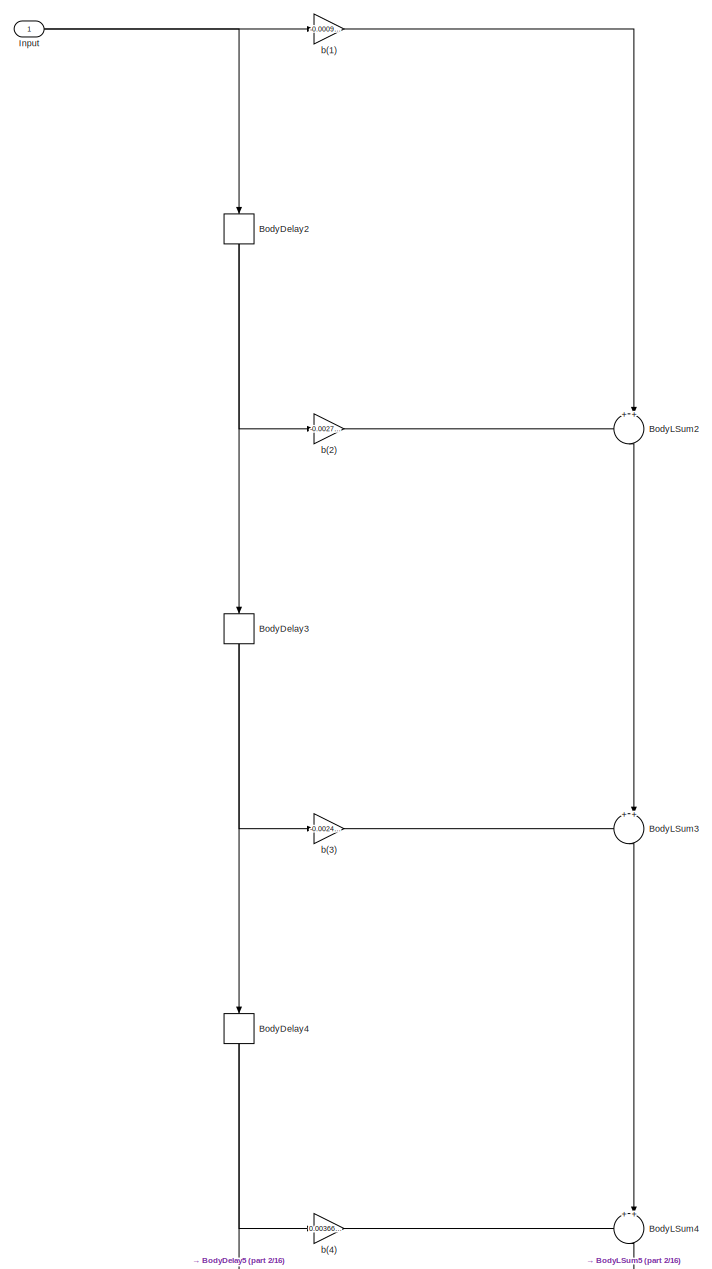
[diagram: Filter/xd - part 1/16, full width, top band]
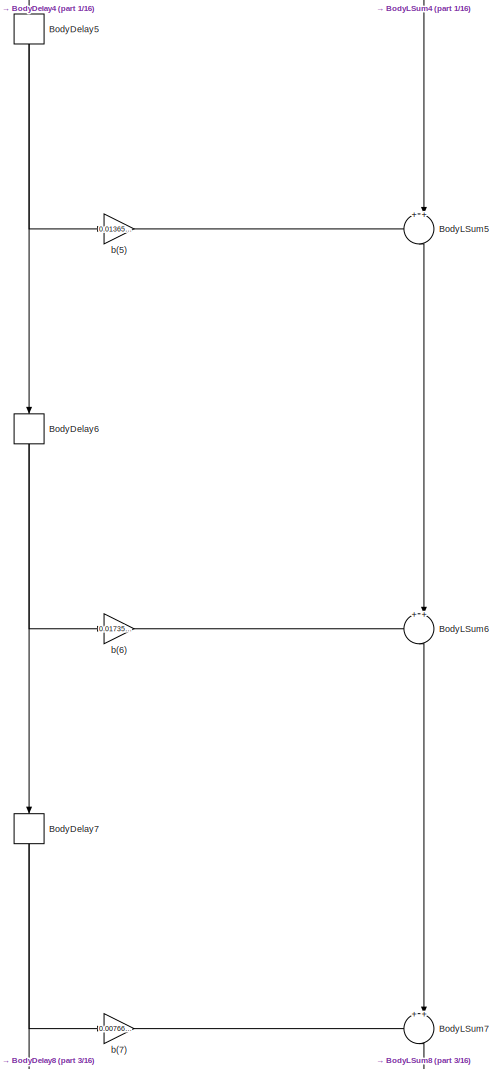
[diagram: Filter/xd - part 2/16, top center region]
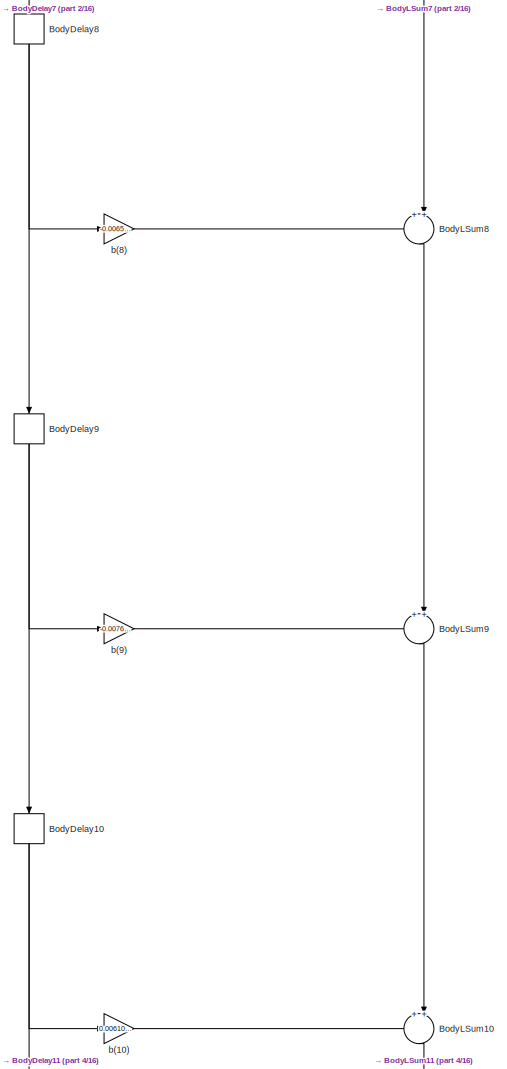
[diagram: Filter/xd - part 3/16, top center region]
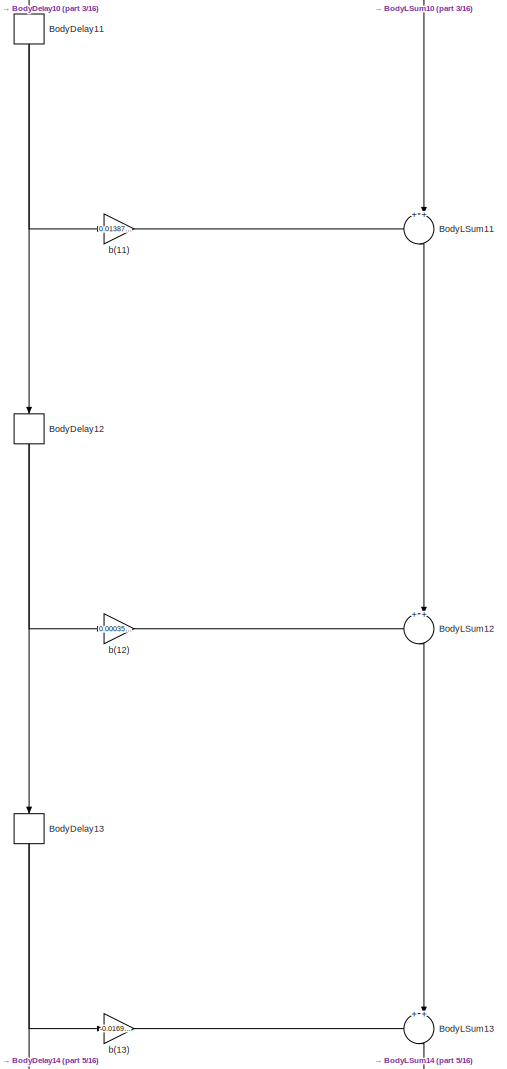
[diagram: Filter/xd - part 4/16, top center region]
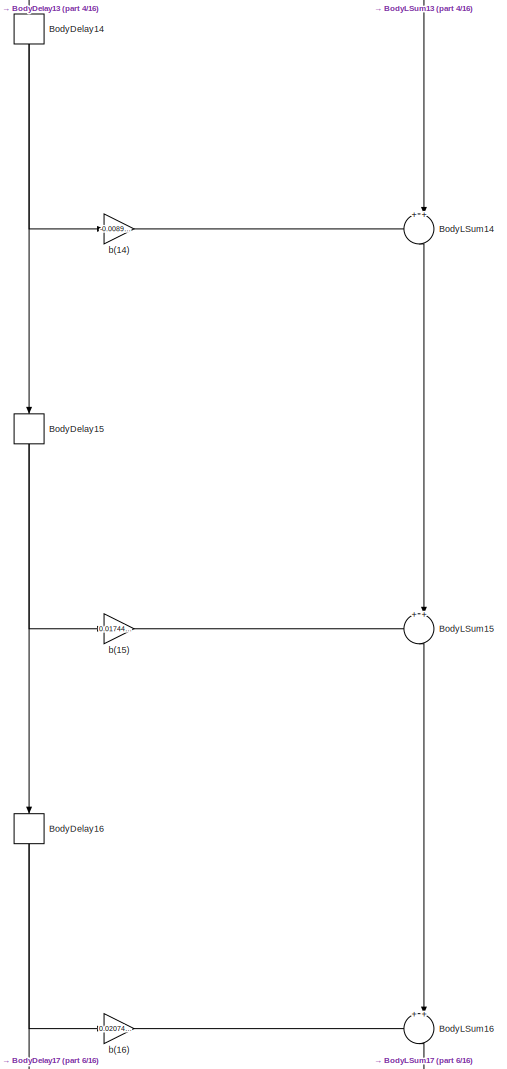
[diagram: Filter/xd - part 5/16, top center region]
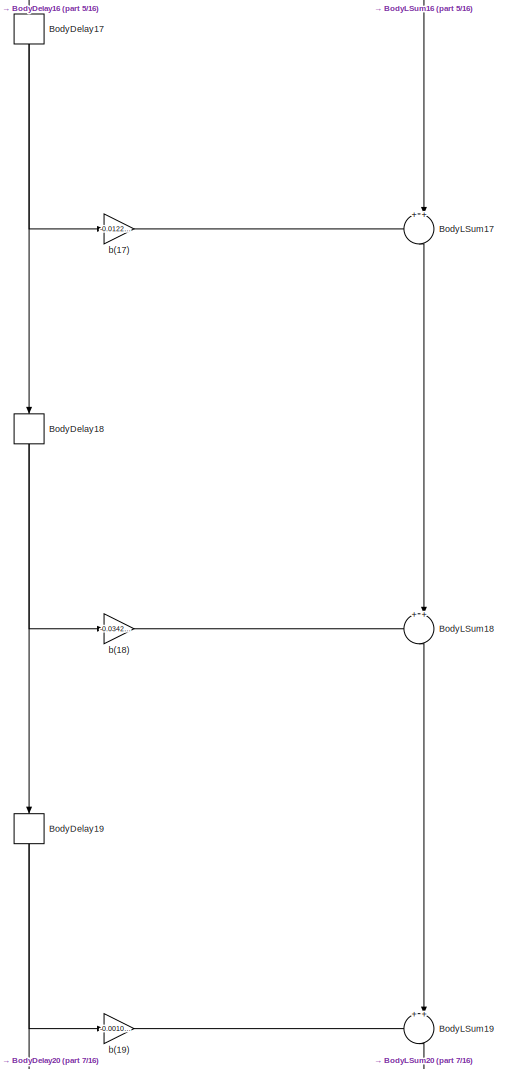
[diagram: Filter/xd - part 6/16, central region]
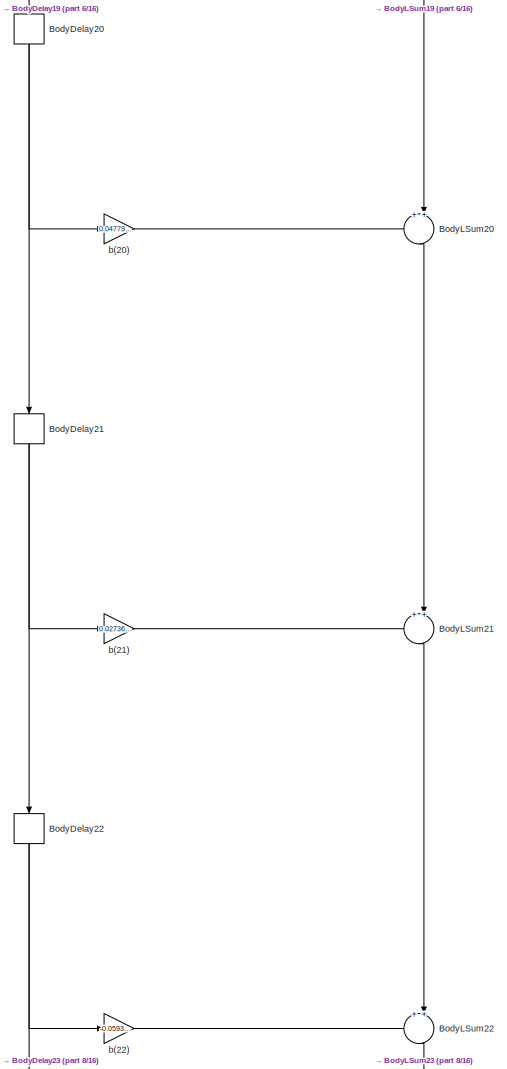
[diagram: Filter/xd - part 7/16, central region]
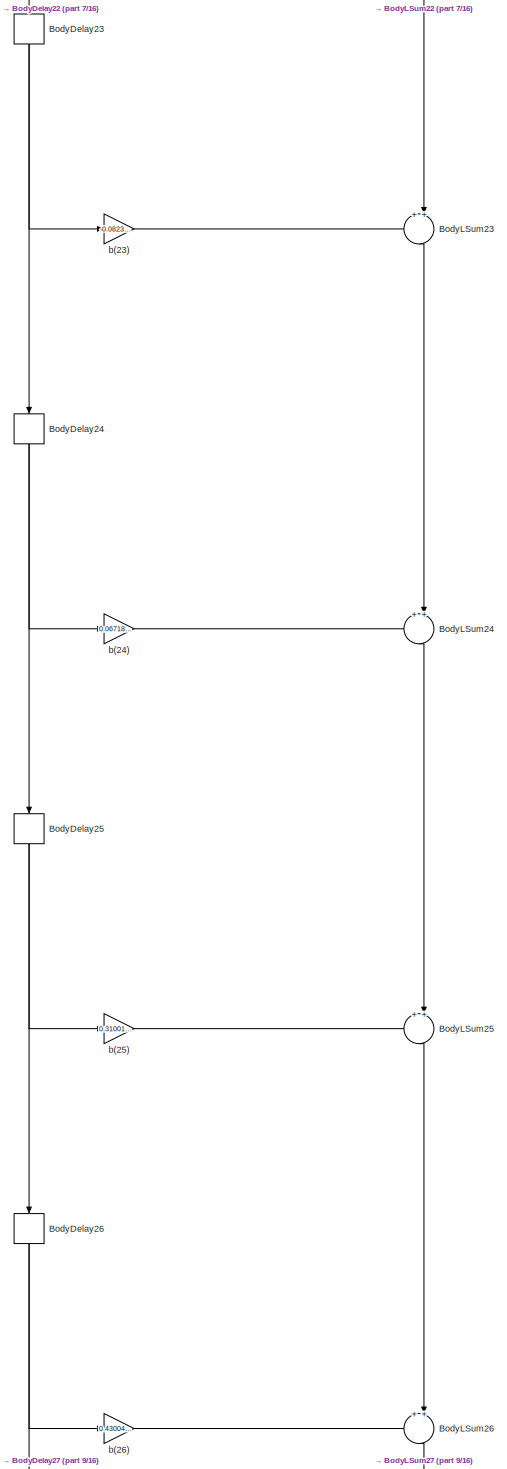
[diagram: Filter/xd - part 8/16, central region]
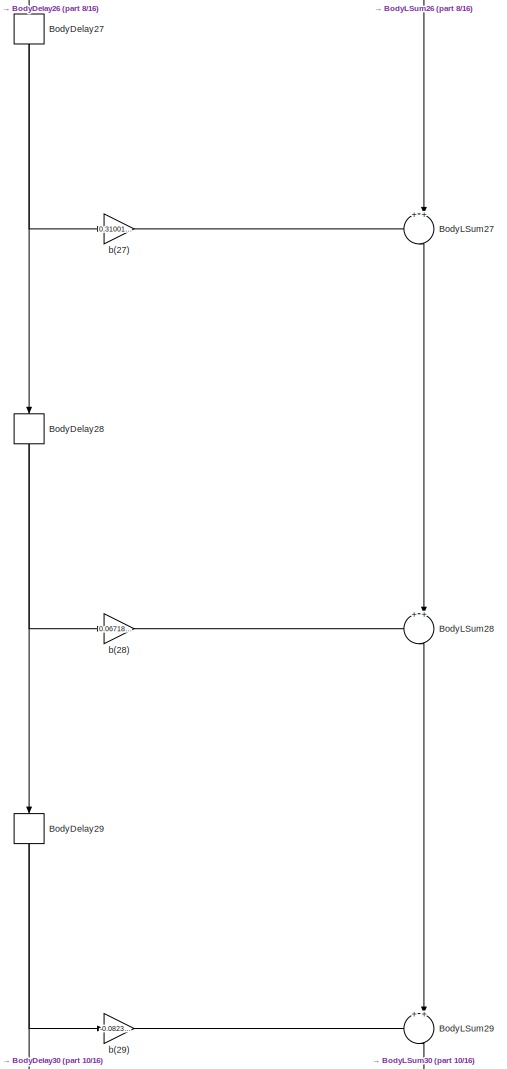
[diagram: Filter/xd - part 9/16, central region]
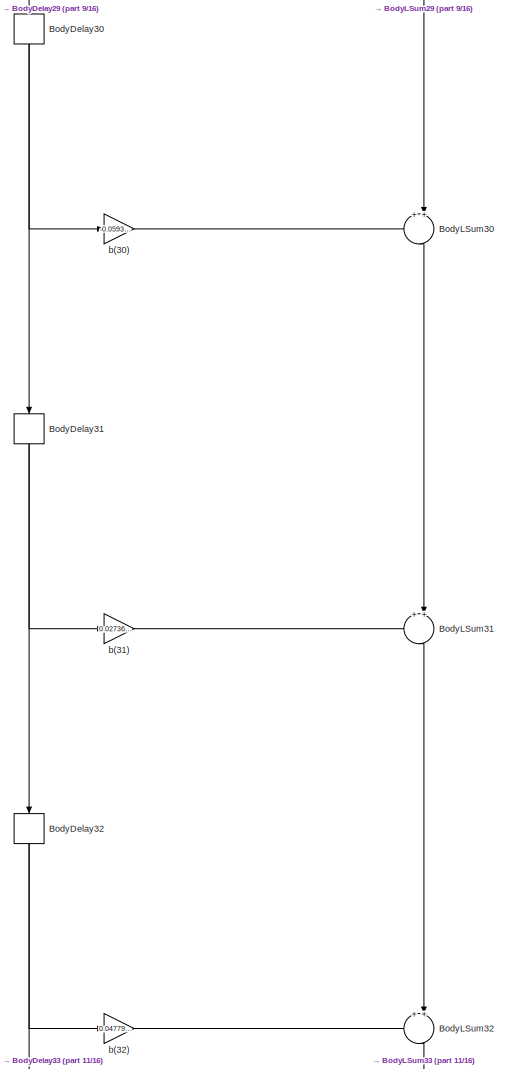
[diagram: Filter/xd - part 10/16, central region]
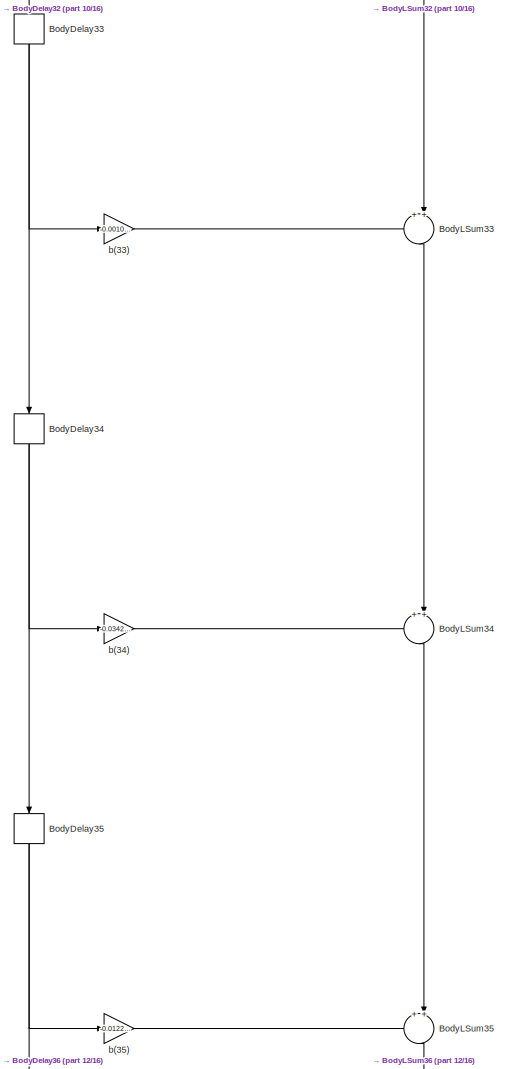
[diagram: Filter/xd - part 11/16, central region]
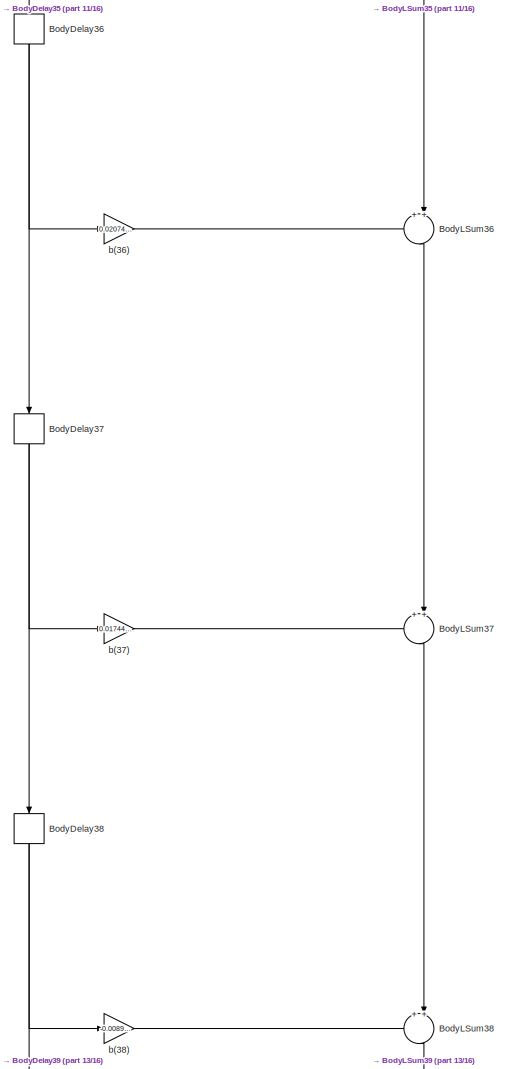
[diagram: Filter/xd - part 12/16, bottom center region]
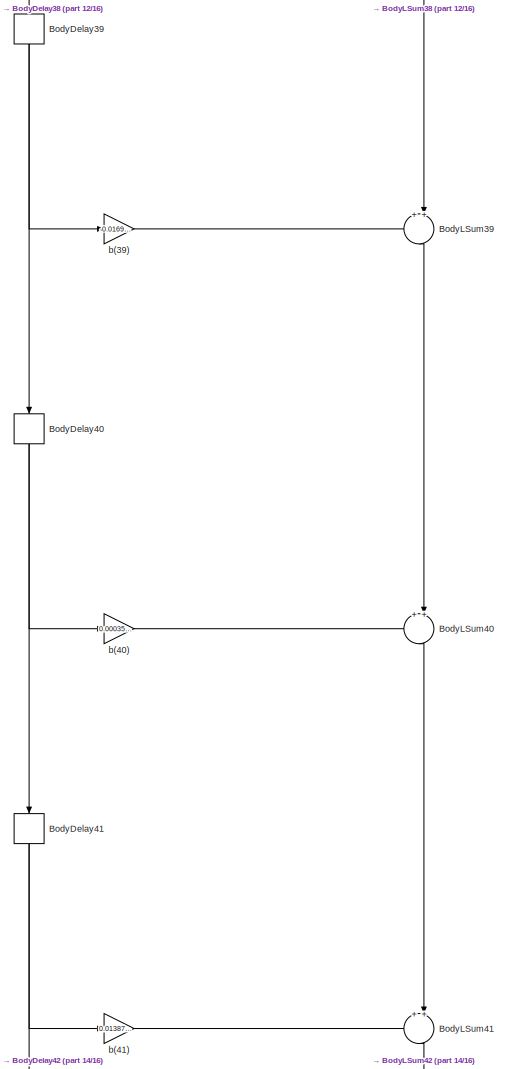
[diagram: Filter/xd - part 13/16, bottom center region]
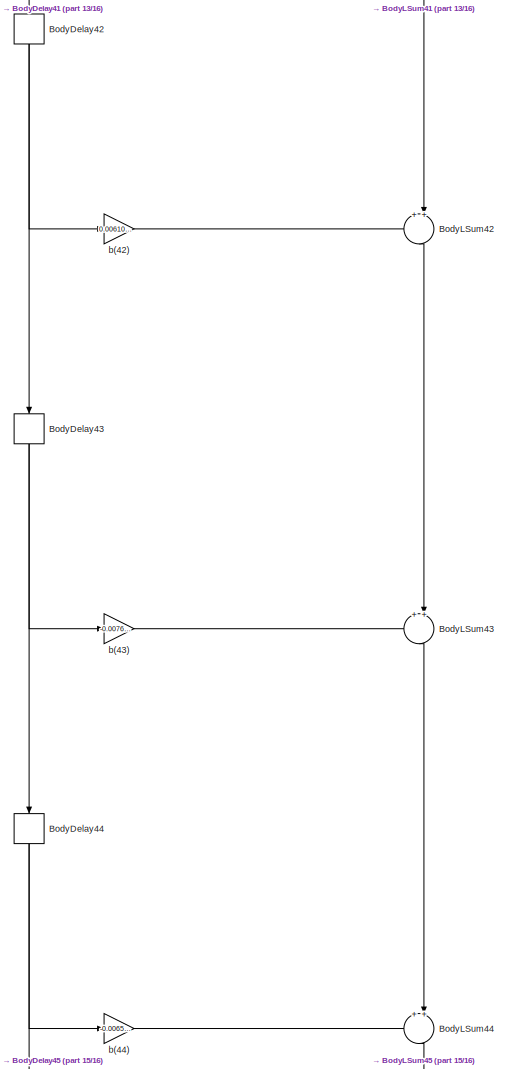
[diagram: Filter/xd - part 14/16, bottom center region]
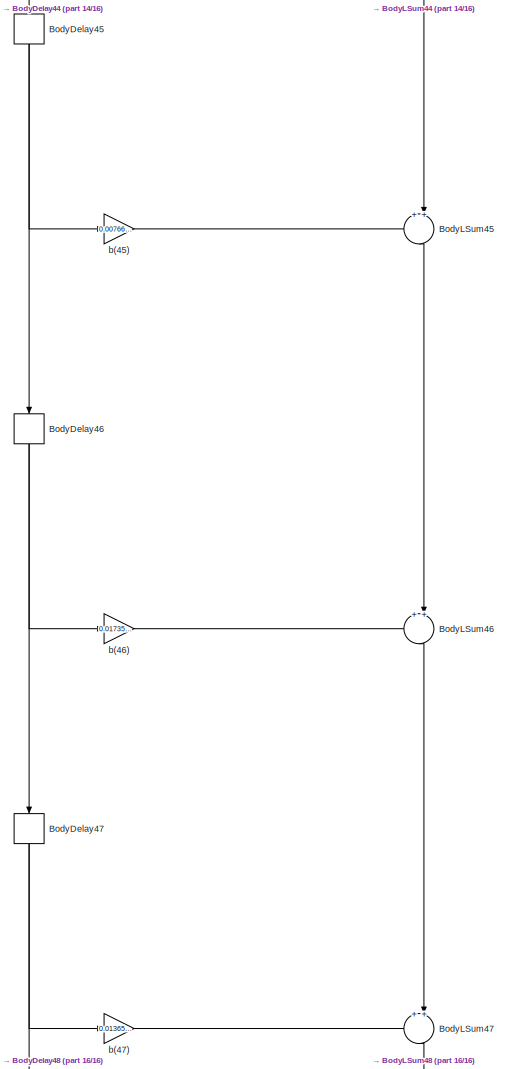
[diagram: Filter/xd - part 15/16, bottom center region]
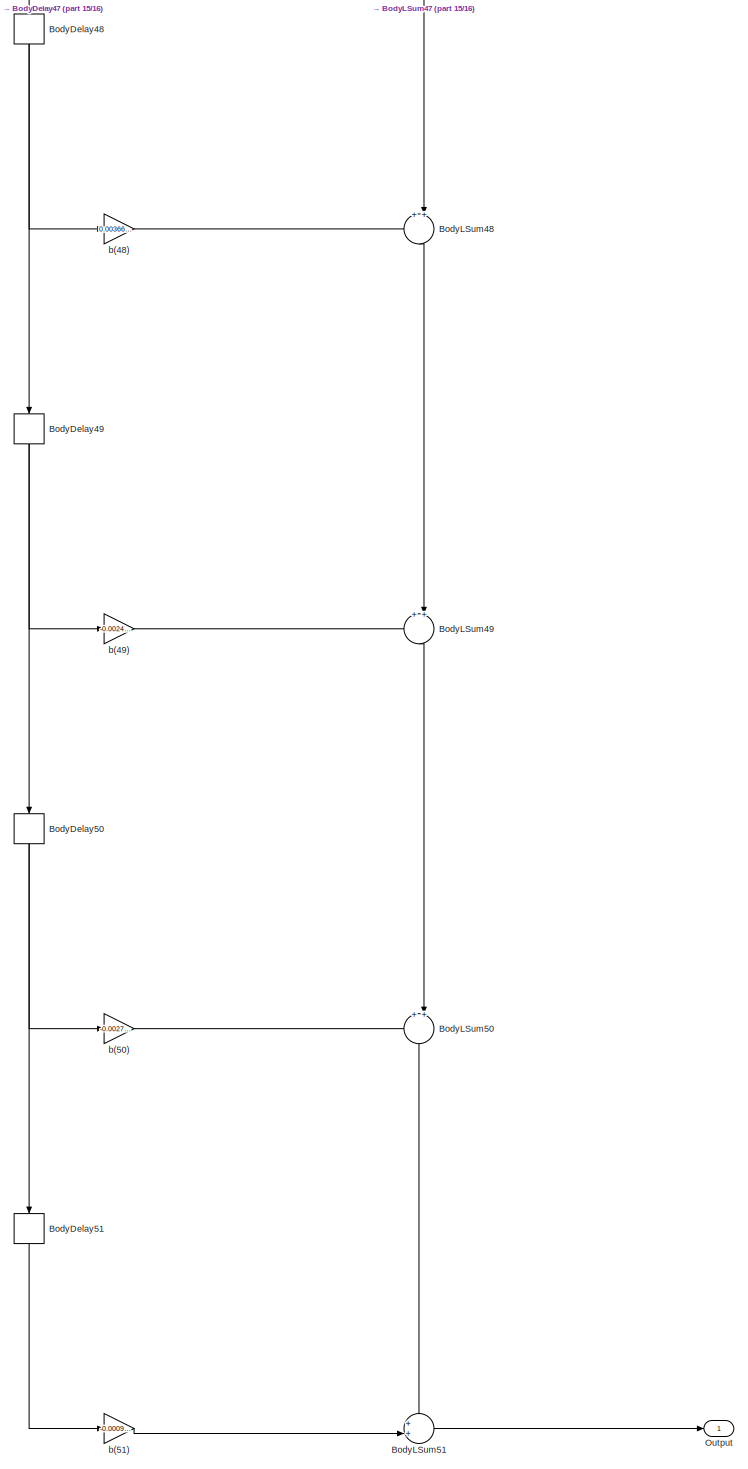
[diagram: Filter/xd - part 16/16, full width, bottom band]
BLOCK [SubSystem] Filter/xd
  ErrorFcn = dspFilterRealizedInBasicElemsAlgLoopErrFcnCallback
  Ports = [1, 1]
  RequestExecContextInheritance = off
  Tag = FilterWizardSubSystem
  UserDataPersistent = on
BLOCK [Delay] Filter/xd/BodyDelay10
  DelayLength = 1
  InitialCondition = 0
  InputPortMap = u0
  InputProcessing = Columns as channels (frame based)
  NameLocation = right
  Ports = [1, 1]
BLOCK [Delay] Filter/xd/BodyDelay11
  DelayLength = 1
  InitialCondition = 0
  InputPortMap = u0
  InputProcessing = Columns as channels (frame based)
  NameLocation = right
  Ports = [1, 1]
BLOCK [Delay] Filter/xd/BodyDelay12
  DelayLength = 1
  InitialCondition = 0
  InputPortMap = u0
  InputProcessing = Columns as channels (frame based)
  NameLocation = right
  Ports = [1, 1]
BLOCK [Delay] Filter/xd/BodyDelay13
  DelayLength = 1
  InitialCondition = 0
  InputPortMap = u0
  InputProcessing = Columns as channels (frame based)
  NameLocation = right
  Ports = [1, 1]
BLOCK [Delay] Filter/xd/BodyDelay14
  DelayLength = 1
  InitialCondition = 0
  InputPortMap = u0
  InputProcessing = Columns as channels (frame based)
  NameLocation = right
  Ports = [1, 1]
BLOCK [Delay] Filter/xd/BodyDelay15
  DelayLength = 1
  InitialCondition = 0
  InputPortMap = u0
  InputProcessing = Columns as channels (frame based)
  NameLocation = right
  Ports = [1, 1]
BLOCK [Delay] Filter/xd/BodyDelay16
  DelayLength = 1
  InitialCondition = 0
  InputPortMap = u0
  InputProcessing = Columns as channels (frame based)
  NameLocation = right
  Ports = [1, 1]
BLOCK [Delay] Filter/xd/BodyDelay17
  DelayLength = 1
  InitialCondition = 0
  InputPortMap = u0
  InputProcessing = Columns as channels (frame based)
  NameLocation = right
  Ports = [1, 1]
BLOCK [Delay] Filter/xd/BodyDelay18
  DelayLength = 1
  InitialCondition = 0
  InputPortMap = u0
  InputProcessing = Columns as channels (frame based)
  NameLocation = right
  Ports = [1, 1]
BLOCK [Delay] Filter/xd/BodyDelay19
  DelayLength = 1
  InitialCondition = 0
  InputPortMap = u0
  InputProcessing = Columns as channels (frame based)
  NameLocation = right
  Ports = [1, 1]
BLOCK [Delay] Filter/xd/BodyDelay2
  DelayLength = 1
  InitialCondition = 0
  InputPortMap = u0
  InputProcessing = Columns as channels (frame based)
  NameLocation = right
  Ports = [1, 1]
BLOCK [Delay] Filter/xd/BodyDelay20
  DelayLength = 1
  InitialCondition = 0
  InputPortMap = u0
  InputProcessing = Columns as channels (frame based)
  NameLocation = right
  Ports = [1, 1]
BLOCK [Delay] Filter/xd/BodyDelay21
  DelayLength = 1
  InitialCondition = 0
  InputPortMap = u0
  InputProcessing = Columns as channels (frame based)
  NameLocation = right
  Ports = [1, 1]
BLOCK [Delay] Filter/xd/BodyDelay22
  DelayLength = 1
  InitialCondition = 0
  InputPortMap = u0
  InputProcessing = Columns as channels (frame based)
  NameLocation = right
  Ports = [1, 1]
BLOCK [Delay] Filter/xd/BodyDelay23
  DelayLength = 1
  InitialCondition = 0
  InputPortMap = u0
  InputProcessing = Columns as channels (frame based)
  NameLocation = right
  Ports = [1, 1]
BLOCK [Delay] Filter/xd/BodyDelay24
  DelayLength = 1
  InitialCondition = 0
  InputPortMap = u0
  InputProcessing = Columns as channels (frame based)
  NameLocation = right
  Ports = [1, 1]
BLOCK [Delay] Filter/xd/BodyDelay25
  DelayLength = 1
  InitialCondition = 0
  InputPortMap = u0
  InputProcessing = Columns as channels (frame based)
  NameLocation = right
  Ports = [1, 1]
BLOCK [Delay] Filter/xd/BodyDelay26
  DelayLength = 1
  InitialCondition = 0
  InputPortMap = u0
  InputProcessing = Columns as channels (frame based)
  NameLocation = right
  Ports = [1, 1]
BLOCK [Delay] Filter/xd/BodyDelay27
  DelayLength = 1
  InitialCondition = 0
  InputPortMap = u0
  InputProcessing = Columns as channels (frame based)
  NameLocation = right
  Ports = [1, 1]
BLOCK [Delay] Filter/xd/BodyDelay28
  DelayLength = 1
  InitialCondition = 0
  InputPortMap = u0
  InputProcessing = Columns as channels (frame based)
  NameLocation = right
  Ports = [1, 1]
BLOCK [Delay] Filter/xd/BodyDelay29
  DelayLength = 1
  InitialCondition = 0
  InputPortMap = u0
  InputProcessing = Columns as channels (frame based)
  NameLocation = right
  Ports = [1, 1]
BLOCK [Delay] Filter/xd/BodyDelay3
  DelayLength = 1
  InitialCondition = 0
  InputPortMap = u0
  InputProcessing = Columns as channels (frame based)
  NameLocation = right
  Ports = [1, 1]
BLOCK [Delay] Filter/xd/BodyDelay30
  DelayLength = 1
  InitialCondition = 0
  InputPortMap = u0
  InputProcessing = Columns as channels (frame based)
  NameLocation = right
  Ports = [1, 1]
BLOCK [Delay] Filter/xd/BodyDelay31
  DelayLength = 1
  InitialCondition = 0
  InputPortMap = u0
  InputProcessing = Columns as channels (frame based)
  NameLocation = right
  Ports = [1, 1]
BLOCK [Delay] Filter/xd/BodyDelay32
  DelayLength = 1
  InitialCondition = 0
  InputPortMap = u0
  InputProcessing = Columns as channels (frame based)
  NameLocation = right
  Ports = [1, 1]
BLOCK [Delay] Filter/xd/BodyDelay33
  DelayLength = 1
  InitialCondition = 0
  InputPortMap = u0
  InputProcessing = Columns as channels (frame based)
  NameLocation = right
  Ports = [1, 1]
BLOCK [Delay] Filter/xd/BodyDelay34
  DelayLength = 1
  InitialCondition = 0
  InputPortMap = u0
  InputProcessing = Columns as channels (frame based)
  NameLocation = right
  Ports = [1, 1]
BLOCK [Delay] Filter/xd/BodyDelay35
  DelayLength = 1
  InitialCondition = 0
  InputPortMap = u0
  InputProcessing = Columns as channels (frame based)
  NameLocation = right
  Ports = [1, 1]
BLOCK [Delay] Filter/xd/BodyDelay36
  DelayLength = 1
  InitialCondition = 0
  InputPortMap = u0
  InputProcessing = Columns as channels (frame based)
  NameLocation = right
  Ports = [1, 1]
BLOCK [Delay] Filter/xd/BodyDelay37
  DelayLength = 1
  InitialCondition = 0
  InputPortMap = u0
  InputProcessing = Columns as channels (frame based)
  NameLocation = right
  Ports = [1, 1]
BLOCK [Delay] Filter/xd/BodyDelay38
  DelayLength = 1
  InitialCondition = 0
  InputPortMap = u0
  InputProcessing = Columns as channels (frame based)
  NameLocation = right
  Ports = [1, 1]
BLOCK [Delay] Filter/xd/BodyDelay39
  DelayLength = 1
  InitialCondition = 0
  InputPortMap = u0
  InputProcessing = Columns as channels (frame based)
  NameLocation = right
  Ports = [1, 1]
BLOCK [Delay] Filter/xd/BodyDelay4
  DelayLength = 1
  InitialCondition = 0
  InputPortMap = u0
  InputProcessing = Columns as channels (frame based)
  NameLocation = right
  Ports = [1, 1]
BLOCK [Delay] Filter/xd/BodyDelay40
  DelayLength = 1
  InitialCondition = 0
  InputPortMap = u0
  InputProcessing = Columns as channels (frame based)
  NameLocation = right
  Ports = [1, 1]
BLOCK [Delay] Filter/xd/BodyDelay41
  DelayLength = 1
  InitialCondition = 0
  InputPortMap = u0
  InputProcessing = Columns as channels (frame based)
  NameLocation = right
  Ports = [1, 1]
BLOCK [Delay] Filter/xd/BodyDelay42
  DelayLength = 1
  InitialCondition = 0
  InputPortMap = u0
  InputProcessing = Columns as channels (frame based)
  NameLocation = right
  Ports = [1, 1]
BLOCK [Delay] Filter/xd/BodyDelay43
  DelayLength = 1
  InitialCondition = 0
  InputPortMap = u0
  InputProcessing = Columns as channels (frame based)
  NameLocation = right
  Ports = [1, 1]
BLOCK [Delay] Filter/xd/BodyDelay44
  DelayLength = 1
  InitialCondition = 0
  InputPortMap = u0
  InputProcessing = Columns as channels (frame based)
  NameLocation = right
  Ports = [1, 1]
BLOCK [Delay] Filter/xd/BodyDelay45
  DelayLength = 1
  InitialCondition = 0
  InputPortMap = u0
  InputProcessing = Columns as channels (frame based)
  NameLocation = right
  Ports = [1, 1]
BLOCK [Delay] Filter/xd/BodyDelay46
  DelayLength = 1
  InitialCondition = 0
  InputPortMap = u0
  InputProcessing = Columns as channels (frame based)
  NameLocation = right
  Ports = [1, 1]
BLOCK [Delay] Filter/xd/BodyDelay47
  DelayLength = 1
  InitialCondition = 0
  InputPortMap = u0
  InputProcessing = Columns as channels (frame based)
  NameLocation = right
  Ports = [1, 1]
BLOCK [Delay] Filter/xd/BodyDelay48
  DelayLength = 1
  InitialCondition = 0
  InputPortMap = u0
  InputProcessing = Columns as channels (frame based)
  NameLocation = right
  Ports = [1, 1]
BLOCK [Delay] Filter/xd/BodyDelay49
  DelayLength = 1
  InitialCondition = 0
  InputPortMap = u0
  InputProcessing = Columns as channels (frame based)
  NameLocation = right
  Ports = [1, 1]
BLOCK [Delay] Filter/xd/BodyDelay5
  DelayLength = 1
  InitialCondition = 0
  InputPortMap = u0
  InputProcessing = Columns as channels (frame based)
  NameLocation = right
  Ports = [1, 1]
BLOCK [Delay] Filter/xd/BodyDelay50
  DelayLength = 1
  InitialCondition = 0
  InputPortMap = u0
  InputProcessing = Columns as channels (frame based)
  NameLocation = right
  Ports = [1, 1]
BLOCK [Delay] Filter/xd/BodyDelay51
  DelayLength = 1
  InitialCondition = 0
  InputPortMap = u0
  InputProcessing = Columns as channels (frame based)
  NameLocation = right
  Ports = [1, 1]
BLOCK [Delay] Filter/xd/BodyDelay6
  DelayLength = 1
  InitialCondition = 0
  InputPortMap = u0
  InputProcessing = Columns as channels (frame based)
  NameLocation = right
  Ports = [1, 1]
BLOCK [Delay] Filter/xd/BodyDelay7
  DelayLength = 1
  InitialCondition = 0
  InputPortMap = u0
  InputProcessing = Columns as channels (frame based)
  NameLocation = right
  Ports = [1, 1]
BLOCK [Delay] Filter/xd/BodyDelay8
  DelayLength = 1
  InitialCondition = 0
  InputPortMap = u0
  InputProcessing = Columns as channels (frame based)
  NameLocation = right
  Ports = [1, 1]
BLOCK [Delay] Filter/xd/BodyDelay9
  DelayLength = 1
  InitialCondition = 0
  InputPortMap = u0
  InputProcessing = Columns as channels (frame based)
  NameLocation = right
  Ports = [1, 1]
BLOCK [Sum] Filter/xd/BodyLSum10
  Inputs = ++|
  NameLocation = right
  OutDataTypeStr = Inherit: Same as first input
  Ports = [2, 1]
  RndMeth = Nearest
  SaturateOnIntegerOverflow = on
BLOCK [Sum] Filter/xd/BodyLSum11
  Inputs = ++|
  NameLocation = right
  OutDataTypeStr = Inherit: Same as first input
  Ports = [2, 1]
  RndMeth = Nearest
  SaturateOnIntegerOverflow = on
BLOCK [Sum] Filter/xd/BodyLSum12
  Inputs = ++|
  NameLocation = right
  OutDataTypeStr = Inherit: Same as first input
  Ports = [2, 1]
  RndMeth = Nearest
  SaturateOnIntegerOverflow = on
BLOCK [Sum] Filter/xd/BodyLSum13
  Inputs = ++|
  NameLocation = right
  OutDataTypeStr = Inherit: Same as first input
  Ports = [2, 1]
  RndMeth = Nearest
  SaturateOnIntegerOverflow = on
BLOCK [Sum] Filter/xd/BodyLSum14
  Inputs = ++|
  NameLocation = right
  OutDataTypeStr = Inherit: Same as first input
  Ports = [2, 1]
  RndMeth = Nearest
  SaturateOnIntegerOverflow = on
BLOCK [Sum] Filter/xd/BodyLSum15
  Inputs = ++|
  NameLocation = right
  OutDataTypeStr = Inherit: Same as first input
  Ports = [2, 1]
  RndMeth = Nearest
  SaturateOnIntegerOverflow = on
BLOCK [Sum] Filter/xd/BodyLSum16
  Inputs = ++|
  NameLocation = right
  OutDataTypeStr = Inherit: Same as first input
  Ports = [2, 1]
  RndMeth = Nearest
  SaturateOnIntegerOverflow = on
BLOCK [Sum] Filter/xd/BodyLSum17
  Inputs = ++|
  NameLocation = right
  OutDataTypeStr = Inherit: Same as first input
  Ports = [2, 1]
  RndMeth = Nearest
  SaturateOnIntegerOverflow = on
BLOCK [Sum] Filter/xd/BodyLSum18
  Inputs = ++|
  NameLocation = right
  OutDataTypeStr = Inherit: Same as first input
  Ports = [2, 1]
  RndMeth = Nearest
  SaturateOnIntegerOverflow = on
BLOCK [Sum] Filter/xd/BodyLSum19
  Inputs = ++|
  NameLocation = right
  OutDataTypeStr = Inherit: Same as first input
  Ports = [2, 1]
  RndMeth = Nearest
  SaturateOnIntegerOverflow = on
BLOCK [Sum] Filter/xd/BodyLSum2
  Inputs = ++|
  NameLocation = right
  OutDataTypeStr = Inherit: Same as first input
  Ports = [2, 1]
  RndMeth = Nearest
  SaturateOnIntegerOverflow = on
BLOCK [Sum] Filter/xd/BodyLSum20
  Inputs = ++|
  NameLocation = right
  OutDataTypeStr = Inherit: Same as first input
  Ports = [2, 1]
  RndMeth = Nearest
  SaturateOnIntegerOverflow = on
BLOCK [Sum] Filter/xd/BodyLSum21
  Inputs = ++|
  NameLocation = right
  OutDataTypeStr = Inherit: Same as first input
  Ports = [2, 1]
  RndMeth = Nearest
  SaturateOnIntegerOverflow = on
BLOCK [Sum] Filter/xd/BodyLSum22
  Inputs = ++|
  NameLocation = right
  OutDataTypeStr = Inherit: Same as first input
  Ports = [2, 1]
  RndMeth = Nearest
  SaturateOnIntegerOverflow = on
BLOCK [Sum] Filter/xd/BodyLSum23
  Inputs = ++|
  NameLocation = right
  OutDataTypeStr = Inherit: Same as first input
  Ports = [2, 1]
  RndMeth = Nearest
  SaturateOnIntegerOverflow = on
BLOCK [Sum] Filter/xd/BodyLSum24
  Inputs = ++|
  NameLocation = right
  OutDataTypeStr = Inherit: Same as first input
  Ports = [2, 1]
  RndMeth = Nearest
  SaturateOnIntegerOverflow = on
BLOCK [Sum] Filter/xd/BodyLSum25
  Inputs = ++|
  NameLocation = right
  OutDataTypeStr = Inherit: Same as first input
  Ports = [2, 1]
  RndMeth = Nearest
  SaturateOnIntegerOverflow = on
BLOCK [Sum] Filter/xd/BodyLSum26
  Inputs = ++|
  NameLocation = right
  OutDataTypeStr = Inherit: Same as first input
  Ports = [2, 1]
  RndMeth = Nearest
  SaturateOnIntegerOverflow = on
BLOCK [Sum] Filter/xd/BodyLSum27
  Inputs = ++|
  NameLocation = right
  OutDataTypeStr = Inherit: Same as first input
  Ports = [2, 1]
  RndMeth = Nearest
  SaturateOnIntegerOverflow = on
BLOCK [Sum] Filter/xd/BodyLSum28
  Inputs = ++|
  NameLocation = right
  OutDataTypeStr = Inherit: Same as first input
  Ports = [2, 1]
  RndMeth = Nearest
  SaturateOnIntegerOverflow = on
BLOCK [Sum] Filter/xd/BodyLSum29
  Inputs = ++|
  NameLocation = right
  OutDataTypeStr = Inherit: Same as first input
  Ports = [2, 1]
  RndMeth = Nearest
  SaturateOnIntegerOverflow = on
BLOCK [Sum] Filter/xd/BodyLSum3
  Inputs = ++|
  NameLocation = right
  OutDataTypeStr = Inherit: Same as first input
  Ports = [2, 1]
  RndMeth = Nearest
  SaturateOnIntegerOverflow = on
BLOCK [Sum] Filter/xd/BodyLSum30
  Inputs = ++|
  NameLocation = right
  OutDataTypeStr = Inherit: Same as first input
  Ports = [2, 1]
  RndMeth = Nearest
  SaturateOnIntegerOverflow = on
BLOCK [Sum] Filter/xd/BodyLSum31
  Inputs = ++|
  NameLocation = right
  OutDataTypeStr = Inherit: Same as first input
  Ports = [2, 1]
  RndMeth = Nearest
  SaturateOnIntegerOverflow = on
BLOCK [Sum] Filter/xd/BodyLSum32
  Inputs = ++|
  NameLocation = right
  OutDataTypeStr = Inherit: Same as first input
  Ports = [2, 1]
  RndMeth = Nearest
  SaturateOnIntegerOverflow = on
BLOCK [Sum] Filter/xd/BodyLSum33
  Inputs = ++|
  NameLocation = right
  OutDataTypeStr = Inherit: Same as first input
  Ports = [2, 1]
  RndMeth = Nearest
  SaturateOnIntegerOverflow = on
BLOCK [Sum] Filter/xd/BodyLSum34
  Inputs = ++|
  NameLocation = right
  OutDataTypeStr = Inherit: Same as first input
  Ports = [2, 1]
  RndMeth = Nearest
  SaturateOnIntegerOverflow = on
BLOCK [Sum] Filter/xd/BodyLSum35
  Inputs = ++|
  NameLocation = right
  OutDataTypeStr = Inherit: Same as first input
  Ports = [2, 1]
  RndMeth = Nearest
  SaturateOnIntegerOverflow = on
BLOCK [Sum] Filter/xd/BodyLSum36
  Inputs = ++|
  NameLocation = right
  OutDataTypeStr = Inherit: Same as first input
  Ports = [2, 1]
  RndMeth = Nearest
  SaturateOnIntegerOverflow = on
BLOCK [Sum] Filter/xd/BodyLSum37
  Inputs = ++|
  NameLocation = right
  OutDataTypeStr = Inherit: Same as first input
  Ports = [2, 1]
  RndMeth = Nearest
  SaturateOnIntegerOverflow = on
BLOCK [Sum] Filter/xd/BodyLSum38
  Inputs = ++|
  NameLocation = right
  OutDataTypeStr = Inherit: Same as first input
  Ports = [2, 1]
  RndMeth = Nearest
  SaturateOnIntegerOverflow = on
BLOCK [Sum] Filter/xd/BodyLSum39
  Inputs = ++|
  NameLocation = right
  OutDataTypeStr = Inherit: Same as first input
  Ports = [2, 1]
  RndMeth = Nearest
  SaturateOnIntegerOverflow = on
BLOCK [Sum] Filter/xd/BodyLSum4
  Inputs = ++|
  NameLocation = right
  OutDataTypeStr = Inherit: Same as first input
  Ports = [2, 1]
  RndMeth = Nearest
  SaturateOnIntegerOverflow = on
BLOCK [Sum] Filter/xd/BodyLSum40
  Inputs = ++|
  NameLocation = right
  OutDataTypeStr = Inherit: Same as first input
  Ports = [2, 1]
  RndMeth = Nearest
  SaturateOnIntegerOverflow = on
BLOCK [Sum] Filter/xd/BodyLSum41
  Inputs = ++|
  NameLocation = right
  OutDataTypeStr = Inherit: Same as first input
  Ports = [2, 1]
  RndMeth = Nearest
  SaturateOnIntegerOverflow = on
BLOCK [Sum] Filter/xd/BodyLSum42
  Inputs = ++|
  NameLocation = right
  OutDataTypeStr = Inherit: Same as first input
  Ports = [2, 1]
  RndMeth = Nearest
  SaturateOnIntegerOverflow = on
BLOCK [Sum] Filter/xd/BodyLSum43
  Inputs = ++|
  NameLocation = right
  OutDataTypeStr = Inherit: Same as first input
  Ports = [2, 1]
  RndMeth = Nearest
  SaturateOnIntegerOverflow = on
BLOCK [Sum] Filter/xd/BodyLSum44
  Inputs = ++|
  NameLocation = right
  OutDataTypeStr = Inherit: Same as first input
  Ports = [2, 1]
  RndMeth = Nearest
  SaturateOnIntegerOverflow = on
BLOCK [Sum] Filter/xd/BodyLSum45
  Inputs = ++|
  NameLocation = right
  OutDataTypeStr = Inherit: Same as first input
  Ports = [2, 1]
  RndMeth = Nearest
  SaturateOnIntegerOverflow = on
BLOCK [Sum] Filter/xd/BodyLSum46
  Inputs = ++|
  NameLocation = right
  OutDataTypeStr = Inherit: Same as first input
  Ports = [2, 1]
  RndMeth = Nearest
  SaturateOnIntegerOverflow = on
BLOCK [Sum] Filter/xd/BodyLSum47
  Inputs = ++|
  NameLocation = right
  OutDataTypeStr = Inherit: Same as first input
  Ports = [2, 1]
  RndMeth = Nearest
  SaturateOnIntegerOverflow = on
BLOCK [Sum] Filter/xd/BodyLSum48
  Inputs = ++|
  NameLocation = right
  OutDataTypeStr = Inherit: Same as first input
  Ports = [2, 1]
  RndMeth = Nearest
  SaturateOnIntegerOverflow = on
BLOCK [Sum] Filter/xd/BodyLSum49
  Inputs = ++|
  NameLocation = right
  OutDataTypeStr = Inherit: Same as first input
  Ports = [2, 1]
  RndMeth = Nearest
  SaturateOnIntegerOverflow = on
BLOCK [Sum] Filter/xd/BodyLSum5
  Inputs = ++|
  NameLocation = right
  OutDataTypeStr = Inherit: Same as first input
  Ports = [2, 1]
  RndMeth = Nearest
  SaturateOnIntegerOverflow = on
BLOCK [Sum] Filter/xd/BodyLSum50
  Inputs = ++|
  NameLocation = right
  OutDataTypeStr = Inherit: Same as first input
  Ports = [2, 1]
  RndMeth = Nearest
  SaturateOnIntegerOverflow = on
BLOCK [Sum] Filter/xd/BodyLSum51
  Inputs = ++|
  OutDataTypeStr = Inherit: Same as first input
  Ports = [2, 1]
  RndMeth = Nearest
  SaturateOnIntegerOverflow = on
BLOCK [Sum] Filter/xd/BodyLSum6
  Inputs = ++|
  NameLocation = right
  OutDataTypeStr = Inherit: Same as first input
  Ports = [2, 1]
  RndMeth = Nearest
  SaturateOnIntegerOverflow = on
BLOCK [Sum] Filter/xd/BodyLSum7
  Inputs = ++|
  NameLocation = right
  OutDataTypeStr = Inherit: Same as first input
  Ports = [2, 1]
  RndMeth = Nearest
  SaturateOnIntegerOverflow = on
BLOCK [Sum] Filter/xd/BodyLSum8
  Inputs = ++|
  NameLocation = right
  OutDataTypeStr = Inherit: Same as first input
  Ports = [2, 1]
  RndMeth = Nearest
  SaturateOnIntegerOverflow = on
BLOCK [Sum] Filter/xd/BodyLSum9
  Inputs = ++|
  NameLocation = right
  OutDataTypeStr = Inherit: Same as first input
  Ports = [2, 1]
  RndMeth = Nearest
  SaturateOnIntegerOverflow = on
BLOCK [Inport] Filter/xd/Input
BLOCK [Outport] Filter/xd/Output
BLOCK [Gain] Filter/xd/b(1)
  Gain = -0.000919098208468256033
  OutDataTypeStr = Inherit: Same as input
  ParamDataTypeStr = double
  RndMeth = Nearest
  SaturateOnIntegerOverflow = on
BLOCK [Gain] Filter/xd/b(10)
  Gain = 0.00610545942139436009
  OutDataTypeStr = Inherit: Same as input
  ParamDataTypeStr = double
  RndMeth = Nearest
  SaturateOnIntegerOverflow = on
BLOCK [Gain] Filter/xd/b(11)
  Gain = 0.0138739157486354008
  OutDataTypeStr = Inherit: Same as input
  ParamDataTypeStr = double
  RndMeth = Nearest
  SaturateOnIntegerOverflow = on
BLOCK [Gain] Filter/xd/b(12)
  Gain = 0.000350861728290910002
  OutDataTypeStr = Inherit: Same as input
  ParamDataTypeStr = double
  RndMeth = Nearest
  SaturateOnIntegerOverflow = on
BLOCK [Gain] Filter/xd/b(13)
  Gain = -0.0169089254366905015
  OutDataTypeStr = Inherit: Same as input
  ParamDataTypeStr = double
  RndMeth = Nearest
  SaturateOnIntegerOverflow = on
BLOCK [Gain] Filter/xd/b(14)
  Gain = -0.00890564274915867961
  OutDataTypeStr = Inherit: Same as input
  ParamDataTypeStr = double
  RndMeth = Nearest
  SaturateOnIntegerOverflow = on
BLOCK [Gain] Filter/xd/b(15)
  Gain = 0.0174411295008548989
  OutDataTypeStr = Inherit: Same as input
  ParamDataTypeStr = double
  RndMeth = Nearest
  SaturateOnIntegerOverflow = on
BLOCK [Gain] Filter/xd/b(16)
  Gain = 0.0207450445276099009
  OutDataTypeStr = Inherit: Same as input
  ParamDataTypeStr = double
  RndMeth = Nearest
  SaturateOnIntegerOverflow = on
BLOCK [Gain] Filter/xd/b(17)
  Gain = -0.0122964942519403
  OutDataTypeStr = Inherit: Same as input
  ParamDataTypeStr = double
  RndMeth = Nearest
  SaturateOnIntegerOverflow = on
BLOCK [Gain] Filter/xd/b(18)
  Gain = -0.034240865909578401
  OutDataTypeStr = Inherit: Same as input
  ParamDataTypeStr = double
  RndMeth = Nearest
  SaturateOnIntegerOverflow = on
BLOCK [Gain] Filter/xd/b(19)
  Gain = -0.00103452960557239991
  OutDataTypeStr = Inherit: Same as input
  ParamDataTypeStr = double
  RndMeth = Nearest
  SaturateOnIntegerOverflow = on
BLOCK [Gain] Filter/xd/b(2)
  Gain = -0.00271769602659550002
  OutDataTypeStr = Inherit: Same as input
  ParamDataTypeStr = double
  RndMeth = Nearest
  SaturateOnIntegerOverflow = on
BLOCK [Gain] Filter/xd/b(20)
  Gain = 0.0477903055208014974
  OutDataTypeStr = Inherit: Same as input
  ParamDataTypeStr = double
  RndMeth = Nearest
  SaturateOnIntegerOverflow = on
BLOCK [Gain] Filter/xd/b(21)
  Gain = 0.0273630379148479992
  OutDataTypeStr = Inherit: Same as input
  ParamDataTypeStr = double
  RndMeth = Nearest
  SaturateOnIntegerOverflow = on
BLOCK [Gain] Filter/xd/b(22)
  Gain = -0.0593795188310465988
  OutDataTypeStr = Inherit: Same as input
  ParamDataTypeStr = double
  RndMeth = Nearest
  SaturateOnIntegerOverflow = on
BLOCK [Gain] Filter/xd/b(23)
  Gain = -0.0823070259292291023
  OutDataTypeStr = Inherit: Same as input
  ParamDataTypeStr = double
  RndMeth = Nearest
  SaturateOnIntegerOverflow = on
BLOCK [Gain] Filter/xd/b(24)
  Gain = 0.0671869094328705063
  OutDataTypeStr = Inherit: Same as input
  ParamDataTypeStr = double
  RndMeth = Nearest
  SaturateOnIntegerOverflow = on
BLOCK [Gain] Filter/xd/b(25)
  Gain = 0.310015177090251004
  OutDataTypeStr = Inherit: Same as input
  ParamDataTypeStr = double
  RndMeth = Nearest
  SaturateOnIntegerOverflow = on
BLOCK [Gain] Filter/xd/b(26)
  Gain = 0.430047880343516986
  OutDataTypeStr = Inherit: Same as input
  ParamDataTypeStr = double
  RndMeth = Nearest
  SaturateOnIntegerOverflow = on
BLOCK [Gain] Filter/xd/b(27)
  Gain = 0.310015177090251004
  OutDataTypeStr = Inherit: Same as input
  ParamDataTypeStr = double
  RndMeth = Nearest
  SaturateOnIntegerOverflow = on
BLOCK [Gain] Filter/xd/b(28)
  Gain = 0.0671869094328705063
  OutDataTypeStr = Inherit: Same as input
  ParamDataTypeStr = double
  RndMeth = Nearest
  SaturateOnIntegerOverflow = on
BLOCK [Gain] Filter/xd/b(29)
  Gain = -0.0823070259292291023
  OutDataTypeStr = Inherit: Same as input
  ParamDataTypeStr = double
  RndMeth = Nearest
  SaturateOnIntegerOverflow = on
BLOCK [Gain] Filter/xd/b(3)
  Gain = -0.00248695275983231009
  OutDataTypeStr = Inherit: Same as input
  ParamDataTypeStr = double
  RndMeth = Nearest
  SaturateOnIntegerOverflow = on
BLOCK [Gain] Filter/xd/b(30)
  Gain = -0.0593795188310465988
  OutDataTypeStr = Inherit: Same as input
  ParamDataTypeStr = double
  RndMeth = Nearest
  SaturateOnIntegerOverflow = on
BLOCK [Gain] Filter/xd/b(31)
  Gain = 0.0273630379148479992
  OutDataTypeStr = Inherit: Same as input
  ParamDataTypeStr = double
  RndMeth = Nearest
  SaturateOnIntegerOverflow = on
BLOCK [Gain] Filter/xd/b(32)
  Gain = 0.0477903055208014974
  OutDataTypeStr = Inherit: Same as input
  ParamDataTypeStr = double
  RndMeth = Nearest
  SaturateOnIntegerOverflow = on
BLOCK [Gain] Filter/xd/b(33)
  Gain = -0.00103452960557239991
  OutDataTypeStr = Inherit: Same as input
  ParamDataTypeStr = double
  RndMeth = Nearest
  SaturateOnIntegerOverflow = on
BLOCK [Gain] Filter/xd/b(34)
  Gain = -0.034240865909578401
  OutDataTypeStr = Inherit: Same as input
  ParamDataTypeStr = double
  RndMeth = Nearest
  SaturateOnIntegerOverflow = on
BLOCK [Gain] Filter/xd/b(35)
  Gain = -0.0122964942519403
  OutDataTypeStr = Inherit: Same as input
  ParamDataTypeStr = double
  RndMeth = Nearest
  SaturateOnIntegerOverflow = on
BLOCK [Gain] Filter/xd/b(36)
  Gain = 0.0207450445276099009
  OutDataTypeStr = Inherit: Same as input
  ParamDataTypeStr = double
  RndMeth = Nearest
  SaturateOnIntegerOverflow = on
BLOCK [Gain] Filter/xd/b(37)
  Gain = 0.0174411295008548989
  OutDataTypeStr = Inherit: Same as input
  ParamDataTypeStr = double
  RndMeth = Nearest
  SaturateOnIntegerOverflow = on
BLOCK [Gain] Filter/xd/b(38)
  Gain = -0.00890564274915867961
  OutDataTypeStr = Inherit: Same as input
  ParamDataTypeStr = double
  RndMeth = Nearest
  SaturateOnIntegerOverflow = on
BLOCK [Gain] Filter/xd/b(39)
  Gain = -0.0169089254366905015
  OutDataTypeStr = Inherit: Same as input
  ParamDataTypeStr = double
  RndMeth = Nearest
  SaturateOnIntegerOverflow = on
BLOCK [Gain] Filter/xd/b(4)
  Gain = 0.00366143838350709017
  OutDataTypeStr = Inherit: Same as input
  ParamDataTypeStr = double
  RndMeth = Nearest
  SaturateOnIntegerOverflow = on
BLOCK [Gain] Filter/xd/b(40)
  Gain = 0.000350861728290910002
  OutDataTypeStr = Inherit: Same as input
  ParamDataTypeStr = double
  RndMeth = Nearest
  SaturateOnIntegerOverflow = on
BLOCK [Gain] Filter/xd/b(41)
  Gain = 0.0138739157486354008
  OutDataTypeStr = Inherit: Same as input
  ParamDataTypeStr = double
  RndMeth = Nearest
  SaturateOnIntegerOverflow = on
BLOCK [Gain] Filter/xd/b(42)
  Gain = 0.00610545942139436009
  OutDataTypeStr = Inherit: Same as input
  ParamDataTypeStr = double
  RndMeth = Nearest
  SaturateOnIntegerOverflow = on
BLOCK [Gain] Filter/xd/b(43)
  Gain = -0.00769678403706536025
  OutDataTypeStr = Inherit: Same as input
  ParamDataTypeStr = double
  RndMeth = Nearest
  SaturateOnIntegerOverflow = on
BLOCK [Gain] Filter/xd/b(44)
  Gain = -0.00655471886964239994
  OutDataTypeStr = Inherit: Same as input
  ParamDataTypeStr = double
  RndMeth = Nearest
  SaturateOnIntegerOverflow = on
BLOCK [Gain] Filter/xd/b(45)
  Gain = 0.00766530619042168036
  OutDataTypeStr = Inherit: Same as input
  ParamDataTypeStr = double
  RndMeth = Nearest
  SaturateOnIntegerOverflow = on
BLOCK [Gain] Filter/xd/b(46)
  Gain = 0.0173511659010932989
  OutDataTypeStr = Inherit: Same as input
  ParamDataTypeStr = double
  RndMeth = Nearest
  SaturateOnIntegerOverflow = on
BLOCK [Gain] Filter/xd/b(47)
  Gain = 0.0136509252306624002
  OutDataTypeStr = Inherit: Same as input
  ParamDataTypeStr = double
  RndMeth = Nearest
  SaturateOnIntegerOverflow = on
BLOCK [Gain] Filter/xd/b(48)
  Gain = 0.00366143838350709017
  OutDataTypeStr = Inherit: Same as input
  ParamDataTypeStr = double
  RndMeth = Nearest
  SaturateOnIntegerOverflow = on
BLOCK [Gain] Filter/xd/b(49)
  Gain = -0.00248695275983231009
  OutDataTypeStr = Inherit: Same as input
  ParamDataTypeStr = double
  RndMeth = Nearest
  SaturateOnIntegerOverflow = on
BLOCK [Gain] Filter/xd/b(5)
  Gain = 0.0136509252306624002
  OutDataTypeStr = Inherit: Same as input
  ParamDataTypeStr = double
  RndMeth = Nearest
  SaturateOnIntegerOverflow = on
BLOCK [Gain] Filter/xd/b(50)
  Gain = -0.00271769602659550002
  OutDataTypeStr = Inherit: Same as input
  ParamDataTypeStr = double
  RndMeth = Nearest
  SaturateOnIntegerOverflow = on
BLOCK [Gain] Filter/xd/b(51)
  Gain = -0.000919098208468256033
  OutDataTypeStr = Inherit: Same as input
  ParamDataTypeStr = double
  RndMeth = Nearest
  SaturateOnIntegerOverflow = on
BLOCK [Gain] Filter/xd/b(6)
  Gain = 0.0173511659010932989
  OutDataTypeStr = Inherit: Same as input
  ParamDataTypeStr = double
  RndMeth = Nearest
  SaturateOnIntegerOverflow = on
BLOCK [Gain] Filter/xd/b(7)
  Gain = 0.00766530619042168036
  OutDataTypeStr = Inherit: Same as input
  ParamDataTypeStr = double
  RndMeth = Nearest
  SaturateOnIntegerOverflow = on
BLOCK [Gain] Filter/xd/b(8)
  Gain = -0.00655471886964239994
  OutDataTypeStr = Inherit: Same as input
  ParamDataTypeStr = double
  RndMeth = Nearest
  SaturateOnIntegerOverflow = on
BLOCK [Gain] Filter/xd/b(9)
  Gain = -0.00769678403706536025
  OutDataTypeStr = Inherit: Same as input
  ParamDataTypeStr = double
  RndMeth = Nearest
  SaturateOnIntegerOverflow = on
NET Filter/Delay11:1 -> Filter/Delay21:1, Filter/a(2)(1):1, Filter/b(2)(1):1
NET Filter/Delay21:1 -> Filter/SumB31:2, Filter/a(3)(1):1
LINE Filter/Input:1 -> Filter/s(1):1
LINE Filter/SumA21:1 -> Filter/SumA31:1
NET Filter/SumA31:1 -> Filter/Delay11:1, Filter/SumB21:1
LINE Filter/SumB21:1 -> Filter/SumB31:1
LINE Filter/SumB31:1 -> Filter/Output:1
LINE Filter/a(2)(1):1 -> Filter/SumA21:2
LINE Filter/a(3)(1):1 -> Filter/SumA31:2
LINE Filter/b(2)(1):1 -> Filter/SumB21:2
LINE Filter/s(1):1 -> Filter/SumA21:1
NET Filter/segFilter/BodyDelay10:1 -> Filter/segFilter/BodyDelay11:1, Filter/segFilter/b(10):1
NET Filter/segFilter/BodyDelay11:1 -> Filter/segFilter/BodyDelay12:1, Filter/segFilter/b(11):1
NET Filter/segFilter/BodyDelay12:1 -> Filter/segFilter/BodyDelay13:1, Filter/segFilter/b(12):1
NET Filter/segFilter/BodyDelay13:1 -> Filter/segFilter/BodyDelay14:1, Filter/segFilter/b(13):1
NET Filter/segFilter/BodyDelay14:1 -> Filter/segFilter/BodyDelay15:1, Filter/segFilter/b(14):1
NET Filter/segFilter/BodyDelay15:1 -> Filter/segFilter/BodyDelay16:1, Filter/segFilter/b(15):1
NET Filter/segFilter/BodyDelay16:1 -> Filter/segFilter/BodyDelay17:1, Filter/segFilter/b(16):1
NET Filter/segFilter/BodyDelay17:1 -> Filter/segFilter/BodyDelay18:1, Filter/segFilter/b(17):1
NET Filter/segFilter/BodyDelay18:1 -> Filter/segFilter/BodyDelay19:1, Filter/segFilter/b(18):1
NET Filter/segFilter/BodyDelay19:1 -> Filter/segFilter/BodyDelay20:1, Filter/segFilter/b(19):1
NET Filter/segFilter/BodyDelay20:1 -> Filter/segFilter/BodyDelay21:1, Filter/segFilter/b(20):1
NET Filter/segFilter/BodyDelay21:1 -> Filter/segFilter/BodyDelay22:1, Filter/segFilter/b(21):1
NET Filter/segFilter/BodyDelay22:1 -> Filter/segFilter/BodyDelay23:1, Filter/segFilter/b(22):1
NET Filter/segFilter/BodyDelay23:1 -> Filter/segFilter/BodyDelay24:1, Filter/segFilter/b(23):1
NET Filter/segFilter/BodyDelay24:1 -> Filter/segFilter/BodyDelay25:1, Filter/segFilter/b(24):1
NET Filter/segFilter/BodyDelay25:1 -> Filter/segFilter/BodyDelay26:1, Filter/segFilter/b(25):1
NET Filter/segFilter/BodyDelay26:1 -> Filter/segFilter/BodyDelay27:1, Filter/segFilter/b(26):1
NET Filter/segFilter/BodyDelay27:1 -> Filter/segFilter/BodyDelay28:1, Filter/segFilter/b(27):1
NET Filter/segFilter/BodyDelay28:1 -> Filter/segFilter/BodyDelay29:1, Filter/segFilter/b(28):1
NET Filter/segFilter/BodyDelay29:1 -> Filter/segFilter/BodyDelay30:1, Filter/segFilter/b(29):1
NET Filter/segFilter/BodyDelay2:1 -> Filter/segFilter/BodyDelay3:1, Filter/segFilter/b(2):1
NET Filter/segFilter/BodyDelay30:1 -> Filter/segFilter/BodyDelay31:1, Filter/segFilter/b(30):1
NET Filter/segFilter/BodyDelay31:1 -> Filter/segFilter/BodyDelay32:1, Filter/segFilter/b(31):1
NET Filter/segFilter/BodyDelay32:1 -> Filter/segFilter/BodyDelay33:1, Filter/segFilter/b(32):1
NET Filter/segFilter/BodyDelay33:1 -> Filter/segFilter/BodyDelay34:1, Filter/segFilter/b(33):1
NET Filter/segFilter/BodyDelay34:1 -> Filter/segFilter/BodyDelay35:1, Filter/segFilter/b(34):1
NET Filter/segFilter/BodyDelay35:1 -> Filter/segFilter/BodyDelay36:1, Filter/segFilter/b(35):1
NET Filter/segFilter/BodyDelay36:1 -> Filter/segFilter/BodyDelay37:1, Filter/segFilter/b(36):1
NET Filter/segFilter/BodyDelay37:1 -> Filter/segFilter/BodyDelay38:1, Filter/segFilter/b(37):1
NET Filter/segFilter/BodyDelay38:1 -> Filter/segFilter/BodyDelay39:1, Filter/segFilter/b(38):1
NET Filter/segFilter/BodyDelay39:1 -> Filter/segFilter/BodyDelay40:1, Filter/segFilter/b(39):1
NET Filter/segFilter/BodyDelay3:1 -> Filter/segFilter/BodyDelay4:1, Filter/segFilter/b(3):1
NET Filter/segFilter/BodyDelay40:1 -> Filter/segFilter/BodyDelay41:1, Filter/segFilter/b(40):1
NET Filter/segFilter/BodyDelay41:1 -> Filter/segFilter/BodyDelay42:1, Filter/segFilter/b(41):1
NET Filter/segFilter/BodyDelay42:1 -> Filter/segFilter/BodyDelay43:1, Filter/segFilter/b(42):1
NET Filter/segFilter/BodyDelay43:1 -> Filter/segFilter/BodyDelay44:1, Filter/segFilter/b(43):1
NET Filter/segFilter/BodyDelay44:1 -> Filter/segFilter/BodyDelay45:1, Filter/segFilter/b(44):1
NET Filter/segFilter/BodyDelay45:1 -> Filter/segFilter/BodyDelay46:1, Filter/segFilter/b(45):1
NET Filter/segFilter/BodyDelay46:1 -> Filter/segFilter/BodyDelay47:1, Filter/segFilter/b(46):1
NET Filter/segFilter/BodyDelay47:1 -> Filter/segFilter/BodyDelay48:1, Filter/segFilter/b(47):1
NET Filter/segFilter/BodyDelay48:1 -> Filter/segFilter/BodyDelay49:1, Filter/segFilter/b(48):1
NET Filter/segFilter/BodyDelay49:1 -> Filter/segFilter/BodyDelay50:1, Filter/segFilter/b(49):1
NET Filter/segFilter/BodyDelay4:1 -> Filter/segFilter/BodyDelay5:1, Filter/segFilter/b(4):1
NET Filter/segFilter/BodyDelay50:1 -> Filter/segFilter/BodyDelay51:1, Filter/segFilter/b(50):1
LINE Filter/segFilter/BodyDelay51:1 -> Filter/segFilter/b(51):1
NET Filter/segFilter/BodyDelay5:1 -> Filter/segFilter/BodyDelay6:1, Filter/segFilter/b(5):1
NET Filter/segFilter/BodyDelay6:1 -> Filter/segFilter/BodyDelay7:1, Filter/segFilter/b(6):1
NET Filter/segFilter/BodyDelay7:1 -> Filter/segFilter/BodyDelay8:1, Filter/segFilter/b(7):1
NET Filter/segFilter/BodyDelay8:1 -> Filter/segFilter/BodyDelay9:1, Filter/segFilter/b(8):1
NET Filter/segFilter/BodyDelay9:1 -> Filter/segFilter/BodyDelay10:1, Filter/segFilter/b(9):1
LINE Filter/segFilter/BodyLSum10:1 -> Filter/segFilter/BodyLSum11:2
LINE Filter/segFilter/BodyLSum11:1 -> Filter/segFilter/BodyLSum12:2
LINE Filter/segFilter/BodyLSum12:1 -> Filter/segFilter/BodyLSum13:2
LINE Filter/segFilter/BodyLSum13:1 -> Filter/segFilter/BodyLSum14:2
LINE Filter/segFilter/BodyLSum14:1 -> Filter/segFilter/BodyLSum15:2
LINE Filter/segFilter/BodyLSum15:1 -> Filter/segFilter/BodyLSum16:2
LINE Filter/segFilter/BodyLSum16:1 -> Filter/segFilter/BodyLSum17:2
LINE Filter/segFilter/BodyLSum17:1 -> Filter/segFilter/BodyLSum18:2
LINE Filter/segFilter/BodyLSum18:1 -> Filter/segFilter/BodyLSum19:2
LINE Filter/segFilter/BodyLSum19:1 -> Filter/segFilter/BodyLSum20:2
LINE Filter/segFilter/BodyLSum20:1 -> Filter/segFilter/BodyLSum21:2
LINE Filter/segFilter/BodyLSum21:1 -> Filter/segFilter/BodyLSum22:2
LINE Filter/segFilter/BodyLSum22:1 -> Filter/segFilter/BodyLSum23:2
LINE Filter/segFilter/BodyLSum23:1 -> Filter/segFilter/BodyLSum24:2
LINE Filter/segFilter/BodyLSum24:1 -> Filter/segFilter/BodyLSum25:2
LINE Filter/segFilter/BodyLSum25:1 -> Filter/segFilter/BodyLSum26:2
LINE Filter/segFilter/BodyLSum26:1 -> Filter/segFilter/BodyLSum27:2
LINE Filter/segFilter/BodyLSum27:1 -> Filter/segFilter/BodyLSum28:2
LINE Filter/segFilter/BodyLSum28:1 -> Filter/segFilter/BodyLSum29:2
LINE Filter/segFilter/BodyLSum29:1 -> Filter/segFilter/BodyLSum30:2
LINE Filter/segFilter/BodyLSum2:1 -> Filter/segFilter/BodyLSum3:2
LINE Filter/segFilter/BodyLSum30:1 -> Filter/segFilter/BodyLSum31:2
LINE Filter/segFilter/BodyLSum31:1 -> Filter/segFilter/BodyLSum32:2
LINE Filter/segFilter/BodyLSum32:1 -> Filter/segFilter/BodyLSum33:2
LINE Filter/segFilter/BodyLSum33:1 -> Filter/segFilter/BodyLSum34:2
LINE Filter/segFilter/BodyLSum34:1 -> Filter/segFilter/BodyLSum35:2
LINE Filter/segFilter/BodyLSum35:1 -> Filter/segFilter/BodyLSum36:2
LINE Filter/segFilter/BodyLSum36:1 -> Filter/segFilter/BodyLSum37:2
LINE Filter/segFilter/BodyLSum37:1 -> Filter/segFilter/BodyLSum38:2
LINE Filter/segFilter/BodyLSum38:1 -> Filter/segFilter/BodyLSum39:2
LINE Filter/segFilter/BodyLSum39:1 -> Filter/segFilter/BodyLSum40:2
LINE Filter/segFilter/BodyLSum3:1 -> Filter/segFilter/BodyLSum4:2
LINE Filter/segFilter/BodyLSum40:1 -> Filter/segFilter/BodyLSum41:2
LINE Filter/segFilter/BodyLSum41:1 -> Filter/segFilter/BodyLSum42:2
LINE Filter/segFilter/BodyLSum42:1 -> Filter/segFilter/BodyLSum43:2
LINE Filter/segFilter/BodyLSum43:1 -> Filter/segFilter/BodyLSum44:2
LINE Filter/segFilter/BodyLSum44:1 -> Filter/segFilter/BodyLSum45:2
LINE Filter/segFilter/BodyLSum45:1 -> Filter/segFilter/BodyLSum46:2
LINE Filter/segFilter/BodyLSum46:1 -> Filter/segFilter/BodyLSum47:2
LINE Filter/segFilter/BodyLSum47:1 -> Filter/segFilter/BodyLSum48:2
LINE Filter/segFilter/BodyLSum48:1 -> Filter/segFilter/BodyLSum49:2
LINE Filter/segFilter/BodyLSum49:1 -> Filter/segFilter/BodyLSum50:2
LINE Filter/segFilter/BodyLSum4:1 -> Filter/segFilter/BodyLSum5:2
LINE Filter/segFilter/BodyLSum50:1 -> Filter/segFilter/BodyLSum51:1
LINE Filter/segFilter/BodyLSum51:1 -> Filter/segFilter/Output:1
LINE Filter/segFilter/BodyLSum5:1 -> Filter/segFilter/BodyLSum6:2
LINE Filter/segFilter/BodyLSum6:1 -> Filter/segFilter/BodyLSum7:2
LINE Filter/segFilter/BodyLSum7:1 -> Filter/segFilter/BodyLSum8:2
LINE Filter/segFilter/BodyLSum8:1 -> Filter/segFilter/BodyLSum9:2
LINE Filter/segFilter/BodyLSum9:1 -> Filter/segFilter/BodyLSum10:2
NET Filter/segFilter/Input:1 -> Filter/segFilter/BodyDelay2:1, Filter/segFilter/b(1):1
LINE Filter/segFilter/b(1):1 -> Filter/segFilter/BodyLSum2:2
LINE Filter/segFilter/b(10):1 -> Filter/segFilter/BodyLSum10:1
LINE Filter/segFilter/b(11):1 -> Filter/segFilter/BodyLSum11:1
LINE Filter/segFilter/b(12):1 -> Filter/segFilter/BodyLSum12:1
LINE Filter/segFilter/b(13):1 -> Filter/segFilter/BodyLSum13:1
LINE Filter/segFilter/b(14):1 -> Filter/segFilter/BodyLSum14:1
LINE Filter/segFilter/b(15):1 -> Filter/segFilter/BodyLSum15:1
LINE Filter/segFilter/b(16):1 -> Filter/segFilter/BodyLSum16:1
LINE Filter/segFilter/b(17):1 -> Filter/segFilter/BodyLSum17:1
LINE Filter/segFilter/b(18):1 -> Filter/segFilter/BodyLSum18:1
LINE Filter/segFilter/b(19):1 -> Filter/segFilter/BodyLSum19:1
LINE Filter/segFilter/b(2):1 -> Filter/segFilter/BodyLSum2:1
LINE Filter/segFilter/b(20):1 -> Filter/segFilter/BodyLSum20:1
LINE Filter/segFilter/b(21):1 -> Filter/segFilter/BodyLSum21:1
LINE Filter/segFilter/b(22):1 -> Filter/segFilter/BodyLSum22:1
LINE Filter/segFilter/b(23):1 -> Filter/segFilter/BodyLSum23:1
LINE Filter/segFilter/b(24):1 -> Filter/segFilter/BodyLSum24:1
LINE Filter/segFilter/b(25):1 -> Filter/segFilter/BodyLSum25:1
LINE Filter/segFilter/b(26):1 -> Filter/segFilter/BodyLSum26:1
LINE Filter/segFilter/b(27):1 -> Filter/segFilter/BodyLSum27:1
LINE Filter/segFilter/b(28):1 -> Filter/segFilter/BodyLSum28:1
LINE Filter/segFilter/b(29):1 -> Filter/segFilter/BodyLSum29:1
LINE Filter/segFilter/b(3):1 -> Filter/segFilter/BodyLSum3:1
LINE Filter/segFilter/b(30):1 -> Filter/segFilter/BodyLSum30:1
LINE Filter/segFilter/b(31):1 -> Filter/segFilter/BodyLSum31:1
LINE Filter/segFilter/b(32):1 -> Filter/segFilter/BodyLSum32:1
LINE Filter/segFilter/b(33):1 -> Filter/segFilter/BodyLSum33:1
LINE Filter/segFilter/b(34):1 -> Filter/segFilter/BodyLSum34:1
LINE Filter/segFilter/b(35):1 -> Filter/segFilter/BodyLSum35:1
LINE Filter/segFilter/b(36):1 -> Filter/segFilter/BodyLSum36:1
LINE Filter/segFilter/b(37):1 -> Filter/segFilter/BodyLSum37:1
LINE Filter/segFilter/b(38):1 -> Filter/segFilter/BodyLSum38:1
LINE Filter/segFilter/b(39):1 -> Filter/segFilter/BodyLSum39:1
LINE Filter/segFilter/b(4):1 -> Filter/segFilter/BodyLSum4:1
LINE Filter/segFilter/b(40):1 -> Filter/segFilter/BodyLSum40:1
LINE Filter/segFilter/b(41):1 -> Filter/segFilter/BodyLSum41:1
LINE Filter/segFilter/b(42):1 -> Filter/segFilter/BodyLSum42:1
LINE Filter/segFilter/b(43):1 -> Filter/segFilter/BodyLSum43:1
LINE Filter/segFilter/b(44):1 -> Filter/segFilter/BodyLSum44:1
LINE Filter/segFilter/b(45):1 -> Filter/segFilter/BodyLSum45:1
LINE Filter/segFilter/b(46):1 -> Filter/segFilter/BodyLSum46:1
LINE Filter/segFilter/b(47):1 -> Filter/segFilter/BodyLSum47:1
LINE Filter/segFilter/b(48):1 -> Filter/segFilter/BodyLSum48:1
LINE Filter/segFilter/b(49):1 -> Filter/segFilter/BodyLSum49:1
LINE Filter/segFilter/b(5):1 -> Filter/segFilter/BodyLSum5:1
LINE Filter/segFilter/b(50):1 -> Filter/segFilter/BodyLSum50:1
LINE Filter/segFilter/b(51):1 -> Filter/segFilter/BodyLSum51:2
LINE Filter/segFilter/b(6):1 -> Filter/segFilter/BodyLSum6:1
LINE Filter/segFilter/b(7):1 -> Filter/segFilter/BodyLSum7:1
LINE Filter/segFilter/b(8):1 -> Filter/segFilter/BodyLSum8:1
LINE Filter/segFilter/b(9):1 -> Filter/segFilter/BodyLSum9:1
NET Filter/segundofiltro/BodyDelay10:1 -> Filter/segundofiltro/BodyDelay11:1, Filter/segundofiltro/b(10):1
NET Filter/segundofiltro/BodyDelay11:1 -> Filter/segundofiltro/BodyDelay12:1, Filter/segundofiltro/b(11):1
NET Filter/segundofiltro/BodyDelay12:1 -> Filter/segundofiltro/BodyDelay13:1, Filter/segundofiltro/b(12):1
NET Filter/segundofiltro/BodyDelay13:1 -> Filter/segundofiltro/BodyDelay14:1, Filter/segundofiltro/b(13):1
NET Filter/segundofiltro/BodyDelay14:1 -> Filter/segundofiltro/BodyDelay15:1, Filter/segundofiltro/b(14):1
NET Filter/segundofiltro/BodyDelay15:1 -> Filter/segundofiltro/BodyDelay16:1, Filter/segundofiltro/b(15):1
NET Filter/segundofiltro/BodyDelay16:1 -> Filter/segundofiltro/BodyDelay17:1, Filter/segundofiltro/b(16):1
NET Filter/segundofiltro/BodyDelay17:1 -> Filter/segundofiltro/BodyDelay18:1, Filter/segundofiltro/b(17):1
NET Filter/segundofiltro/BodyDelay18:1 -> Filter/segundofiltro/BodyDelay19:1, Filter/segundofiltro/b(18):1
NET Filter/segundofiltro/BodyDelay19:1 -> Filter/segundofiltro/BodyDelay20:1, Filter/segundofiltro/b(19):1
NET Filter/segundofiltro/BodyDelay20:1 -> Filter/segundofiltro/BodyDelay21:1, Filter/segundofiltro/b(20):1
NET Filter/segundofiltro/BodyDelay21:1 -> Filter/segundofiltro/BodyDelay22:1, Filter/segundofiltro/b(21):1
NET Filter/segundofiltro/BodyDelay22:1 -> Filter/segundofiltro/BodyDelay23:1, Filter/segundofiltro/b(22):1
NET Filter/segundofiltro/BodyDelay23:1 -> Filter/segundofiltro/BodyDelay24:1, Filter/segundofiltro/b(23):1
NET Filter/segundofiltro/BodyDelay24:1 -> Filter/segundofiltro/BodyDelay25:1, Filter/segundofiltro/b(24):1
NET Filter/segundofiltro/BodyDelay25:1 -> Filter/segundofiltro/BodyDelay26:1, Filter/segundofiltro/b(25):1
NET Filter/segundofiltro/BodyDelay26:1 -> Filter/segundofiltro/BodyDelay27:1, Filter/segundofiltro/b(26):1
NET Filter/segundofiltro/BodyDelay27:1 -> Filter/segundofiltro/BodyDelay28:1, Filter/segundofiltro/b(27):1
NET Filter/segundofiltro/BodyDelay28:1 -> Filter/segundofiltro/BodyDelay29:1, Filter/segundofiltro/b(28):1
NET Filter/segundofiltro/BodyDelay29:1 -> Filter/segundofiltro/BodyDelay30:1, Filter/segundofiltro/b(29):1
NET Filter/segundofiltro/BodyDelay2:1 -> Filter/segundofiltro/BodyDelay3:1, Filter/segundofiltro/b(2):1
NET Filter/segundofiltro/BodyDelay30:1 -> Filter/segundofiltro/BodyDelay31:1, Filter/segundofiltro/b(30):1
NET Filter/segundofiltro/BodyDelay31:1 -> Filter/segundofiltro/BodyDelay32:1, Filter/segundofiltro/b(31):1
NET Filter/segundofiltro/BodyDelay32:1 -> Filter/segundofiltro/BodyDelay33:1, Filter/segundofiltro/b(32):1
NET Filter/segundofiltro/BodyDelay33:1 -> Filter/segundofiltro/BodyDelay34:1, Filter/segundofiltro/b(33):1
NET Filter/segundofiltro/BodyDelay34:1 -> Filter/segundofiltro/BodyDelay35:1, Filter/segundofiltro/b(34):1
NET Filter/segundofiltro/BodyDelay35:1 -> Filter/segundofiltro/BodyDelay36:1, Filter/segundofiltro/b(35):1
NET Filter/segundofiltro/BodyDelay36:1 -> Filter/segundofiltro/BodyDelay37:1, Filter/segundofiltro/b(36):1
NET Filter/segundofiltro/BodyDelay37:1 -> Filter/segundofiltro/BodyDelay38:1, Filter/segundofiltro/b(37):1
NET Filter/segundofiltro/BodyDelay38:1 -> Filter/segundofiltro/BodyDelay39:1, Filter/segundofiltro/b(38):1
NET Filter/segundofiltro/BodyDelay39:1 -> Filter/segundofiltro/BodyDelay40:1, Filter/segundofiltro/b(39):1
NET Filter/segundofiltro/BodyDelay3:1 -> Filter/segundofiltro/BodyDelay4:1, Filter/segundofiltro/b(3):1
NET Filter/segundofiltro/BodyDelay40:1 -> Filter/segundofiltro/BodyDelay41:1, Filter/segundofiltro/b(40):1
NET Filter/segundofiltro/BodyDelay41:1 -> Filter/segundofiltro/BodyDelay42:1, Filter/segundofiltro/b(41):1
NET Filter/segundofiltro/BodyDelay42:1 -> Filter/segundofiltro/BodyDelay43:1, Filter/segundofiltro/b(42):1
NET Filter/segundofiltro/BodyDelay43:1 -> Filter/segundofiltro/BodyDelay44:1, Filter/segundofiltro/b(43):1
NET Filter/segundofiltro/BodyDelay44:1 -> Filter/segundofiltro/BodyDelay45:1, Filter/segundofiltro/b(44):1
NET Filter/segundofiltro/BodyDelay45:1 -> Filter/segundofiltro/BodyDelay46:1, Filter/segundofiltro/b(45):1
NET Filter/segundofiltro/BodyDelay46:1 -> Filter/segundofiltro/BodyDelay47:1, Filter/segundofiltro/b(46):1
NET Filter/segundofiltro/BodyDelay47:1 -> Filter/segundofiltro/BodyDelay48:1, Filter/segundofiltro/b(47):1
NET Filter/segundofiltro/BodyDelay48:1 -> Filter/segundofiltro/BodyDelay49:1, Filter/segundofiltro/b(48):1
NET Filter/segundofiltro/BodyDelay49:1 -> Filter/segundofiltro/BodyDelay50:1, Filter/segundofiltro/b(49):1
NET Filter/segundofiltro/BodyDelay4:1 -> Filter/segundofiltro/BodyDelay5:1, Filter/segundofiltro/b(4):1
NET Filter/segundofiltro/BodyDelay50:1 -> Filter/segundofiltro/BodyDelay51:1, Filter/segundofiltro/b(50):1
LINE Filter/segundofiltro/BodyDelay51:1 -> Filter/segundofiltro/b(51):1
NET Filter/segundofiltro/BodyDelay5:1 -> Filter/segundofiltro/BodyDelay6:1, Filter/segundofiltro/b(5):1
NET Filter/segundofiltro/BodyDelay6:1 -> Filter/segundofiltro/BodyDelay7:1, Filter/segundofiltro/b(6):1
NET Filter/segundofiltro/BodyDelay7:1 -> Filter/segundofiltro/BodyDelay8:1, Filter/segundofiltro/b(7):1
NET Filter/segundofiltro/BodyDelay8:1 -> Filter/segundofiltro/BodyDelay9:1, Filter/segundofiltro/b(8):1
NET Filter/segundofiltro/BodyDelay9:1 -> Filter/segundofiltro/BodyDelay10:1, Filter/segundofiltro/b(9):1
LINE Filter/segundofiltro/BodyLSum10:1 -> Filter/segundofiltro/BodyLSum11:2
LINE Filter/segundofiltro/BodyLSum11:1 -> Filter/segundofiltro/BodyLSum12:2
LINE Filter/segundofiltro/BodyLSum12:1 -> Filter/segundofiltro/BodyLSum13:2
LINE Filter/segundofiltro/BodyLSum13:1 -> Filter/segundofiltro/BodyLSum14:2
LINE Filter/segundofiltro/BodyLSum14:1 -> Filter/segundofiltro/BodyLSum15:2
LINE Filter/segundofiltro/BodyLSum15:1 -> Filter/segundofiltro/BodyLSum16:2
LINE Filter/segundofiltro/BodyLSum16:1 -> Filter/segundofiltro/BodyLSum17:2
LINE Filter/segundofiltro/BodyLSum17:1 -> Filter/segundofiltro/BodyLSum18:2
LINE Filter/segundofiltro/BodyLSum18:1 -> Filter/segundofiltro/BodyLSum19:2
LINE Filter/segundofiltro/BodyLSum19:1 -> Filter/segundofiltro/BodyLSum20:2
LINE Filter/segundofiltro/BodyLSum20:1 -> Filter/segundofiltro/BodyLSum21:2
LINE Filter/segundofiltro/BodyLSum21:1 -> Filter/segundofiltro/BodyLSum22:2
LINE Filter/segundofiltro/BodyLSum22:1 -> Filter/segundofiltro/BodyLSum23:2
LINE Filter/segundofiltro/BodyLSum23:1 -> Filter/segundofiltro/BodyLSum24:2
LINE Filter/segundofiltro/BodyLSum24:1 -> Filter/segundofiltro/BodyLSum25:2
LINE Filter/segundofiltro/BodyLSum25:1 -> Filter/segundofiltro/BodyLSum26:2
LINE Filter/segundofiltro/BodyLSum26:1 -> Filter/segundofiltro/BodyLSum27:2
LINE Filter/segundofiltro/BodyLSum27:1 -> Filter/segundofiltro/BodyLSum28:2
LINE Filter/segundofiltro/BodyLSum28:1 -> Filter/segundofiltro/BodyLSum29:2
LINE Filter/segundofiltro/BodyLSum29:1 -> Filter/segundofiltro/BodyLSum30:2
LINE Filter/segundofiltro/BodyLSum2:1 -> Filter/segundofiltro/BodyLSum3:2
LINE Filter/segundofiltro/BodyLSum30:1 -> Filter/segundofiltro/BodyLSum31:2
LINE Filter/segundofiltro/BodyLSum31:1 -> Filter/segundofiltro/BodyLSum32:2
LINE Filter/segundofiltro/BodyLSum32:1 -> Filter/segundofiltro/BodyLSum33:2
LINE Filter/segundofiltro/BodyLSum33:1 -> Filter/segundofiltro/BodyLSum34:2
LINE Filter/segundofiltro/BodyLSum34:1 -> Filter/segundofiltro/BodyLSum35:2
LINE Filter/segundofiltro/BodyLSum35:1 -> Filter/segundofiltro/BodyLSum36:2
LINE Filter/segundofiltro/BodyLSum36:1 -> Filter/segundofiltro/BodyLSum37:2
LINE Filter/segundofiltro/BodyLSum37:1 -> Filter/segundofiltro/BodyLSum38:2
LINE Filter/segundofiltro/BodyLSum38:1 -> Filter/segundofiltro/BodyLSum39:2
LINE Filter/segundofiltro/BodyLSum39:1 -> Filter/segundofiltro/BodyLSum40:2
LINE Filter/segundofiltro/BodyLSum3:1 -> Filter/segundofiltro/BodyLSum4:2
LINE Filter/segundofiltro/BodyLSum40:1 -> Filter/segundofiltro/BodyLSum41:2
LINE Filter/segundofiltro/BodyLSum41:1 -> Filter/segundofiltro/BodyLSum42:2
LINE Filter/segundofiltro/BodyLSum42:1 -> Filter/segundofiltro/BodyLSum43:2
LINE Filter/segundofiltro/BodyLSum43:1 -> Filter/segundofiltro/BodyLSum44:2
LINE Filter/segundofiltro/BodyLSum44:1 -> Filter/segundofiltro/BodyLSum45:2
LINE Filter/segundofiltro/BodyLSum45:1 -> Filter/segundofiltro/BodyLSum46:2
LINE Filter/segundofiltro/BodyLSum46:1 -> Filter/segundofiltro/BodyLSum47:2
LINE Filter/segundofiltro/BodyLSum47:1 -> Filter/segundofiltro/BodyLSum48:2
LINE Filter/segundofiltro/BodyLSum48:1 -> Filter/segundofiltro/BodyLSum49:2
LINE Filter/segundofiltro/BodyLSum49:1 -> Filter/segundofiltro/BodyLSum50:2
LINE Filter/segundofiltro/BodyLSum4:1 -> Filter/segundofiltro/BodyLSum5:2
LINE Filter/segundofiltro/BodyLSum50:1 -> Filter/segundofiltro/BodyLSum51:1
LINE Filter/segundofiltro/BodyLSum51:1 -> Filter/segundofiltro/Output:1
LINE Filter/segundofiltro/BodyLSum5:1 -> Filter/segundofiltro/BodyLSum6:2
LINE Filter/segundofiltro/BodyLSum6:1 -> Filter/segundofiltro/BodyLSum7:2
LINE Filter/segundofiltro/BodyLSum7:1 -> Filter/segundofiltro/BodyLSum8:2
LINE Filter/segundofiltro/BodyLSum8:1 -> Filter/segundofiltro/BodyLSum9:2
LINE Filter/segundofiltro/BodyLSum9:1 -> Filter/segundofiltro/BodyLSum10:2
NET Filter/segundofiltro/Input:1 -> Filter/segundofiltro/BodyDelay2:1, Filter/segundofiltro/b(1):1
LINE Filter/segundofiltro/b(1):1 -> Filter/segundofiltro/BodyLSum2:2
LINE Filter/segundofiltro/b(10):1 -> Filter/segundofiltro/BodyLSum10:1
LINE Filter/segundofiltro/b(11):1 -> Filter/segundofiltro/BodyLSum11:1
LINE Filter/segundofiltro/b(12):1 -> Filter/segundofiltro/BodyLSum12:1
LINE Filter/segundofiltro/b(13):1 -> Filter/segundofiltro/BodyLSum13:1
LINE Filter/segundofiltro/b(14):1 -> Filter/segundofiltro/BodyLSum14:1
LINE Filter/segundofiltro/b(15):1 -> Filter/segundofiltro/BodyLSum15:1
LINE Filter/segundofiltro/b(16):1 -> Filter/segundofiltro/BodyLSum16:1
LINE Filter/segundofiltro/b(17):1 -> Filter/segundofiltro/BodyLSum17:1
LINE Filter/segundofiltro/b(18):1 -> Filter/segundofiltro/BodyLSum18:1
LINE Filter/segundofiltro/b(19):1 -> Filter/segundofiltro/BodyLSum19:1
LINE Filter/segundofiltro/b(2):1 -> Filter/segundofiltro/BodyLSum2:1
LINE Filter/segundofiltro/b(20):1 -> Filter/segundofiltro/BodyLSum20:1
LINE Filter/segundofiltro/b(21):1 -> Filter/segundofiltro/BodyLSum21:1
LINE Filter/segundofiltro/b(22):1 -> Filter/segundofiltro/BodyLSum22:1
LINE Filter/segundofiltro/b(23):1 -> Filter/segundofiltro/BodyLSum23:1
LINE Filter/segundofiltro/b(24):1 -> Filter/segundofiltro/BodyLSum24:1
LINE Filter/segundofiltro/b(25):1 -> Filter/segundofiltro/BodyLSum25:1
LINE Filter/segundofiltro/b(26):1 -> Filter/segundofiltro/BodyLSum26:1
LINE Filter/segundofiltro/b(27):1 -> Filter/segundofiltro/BodyLSum27:1
LINE Filter/segundofiltro/b(28):1 -> Filter/segundofiltro/BodyLSum28:1
LINE Filter/segundofiltro/b(29):1 -> Filter/segundofiltro/BodyLSum29:1
LINE Filter/segundofiltro/b(3):1 -> Filter/segundofiltro/BodyLSum3:1
LINE Filter/segundofiltro/b(30):1 -> Filter/segundofiltro/BodyLSum30:1
LINE Filter/segundofiltro/b(31):1 -> Filter/segundofiltro/BodyLSum31:1
LINE Filter/segundofiltro/b(32):1 -> Filter/segundofiltro/BodyLSum32:1
LINE Filter/segundofiltro/b(33):1 -> Filter/segundofiltro/BodyLSum33:1
LINE Filter/segundofiltro/b(34):1 -> Filter/segundofiltro/BodyLSum34:1
LINE Filter/segundofiltro/b(35):1 -> Filter/segundofiltro/BodyLSum35:1
LINE Filter/segundofiltro/b(36):1 -> Filter/segundofiltro/BodyLSum36:1
LINE Filter/segundofiltro/b(37):1 -> Filter/segundofiltro/BodyLSum37:1
LINE Filter/segundofiltro/b(38):1 -> Filter/segundofiltro/BodyLSum38:1
LINE Filter/segundofiltro/b(39):1 -> Filter/segundofiltro/BodyLSum39:1
LINE Filter/segundofiltro/b(4):1 -> Filter/segundofiltro/BodyLSum4:1
LINE Filter/segundofiltro/b(40):1 -> Filter/segundofiltro/BodyLSum40:1
LINE Filter/segundofiltro/b(41):1 -> Filter/segundofiltro/BodyLSum41:1
LINE Filter/segundofiltro/b(42):1 -> Filter/segundofiltro/BodyLSum42:1
LINE Filter/segundofiltro/b(43):1 -> Filter/segundofiltro/BodyLSum43:1
LINE Filter/segundofiltro/b(44):1 -> Filter/segundofiltro/BodyLSum44:1
LINE Filter/segundofiltro/b(45):1 -> Filter/segundofiltro/BodyLSum45:1
LINE Filter/segundofiltro/b(46):1 -> Filter/segundofiltro/BodyLSum46:1
LINE Filter/segundofiltro/b(47):1 -> Filter/segundofiltro/BodyLSum47:1
LINE Filter/segundofiltro/b(48):1 -> Filter/segundofiltro/BodyLSum48:1
LINE Filter/segundofiltro/b(49):1 -> Filter/segundofiltro/BodyLSum49:1
LINE Filter/segundofiltro/b(5):1 -> Filter/segundofiltro/BodyLSum5:1
LINE Filter/segundofiltro/b(50):1 -> Filter/segundofiltro/BodyLSum50:1
LINE Filter/segundofiltro/b(51):1 -> Filter/segundofiltro/BodyLSum51:2
LINE Filter/segundofiltro/b(6):1 -> Filter/segundofiltro/BodyLSum6:1
LINE Filter/segundofiltro/b(7):1 -> Filter/segundofiltro/BodyLSum7:1
LINE Filter/segundofiltro/b(8):1 -> Filter/segundofiltro/BodyLSum8:1
LINE Filter/segundofiltro/b(9):1 -> Filter/segundofiltro/BodyLSum9:1
NET Filter/xd/BodyDelay10:1 -> Filter/xd/BodyDelay11:1, Filter/xd/b(10):1
NET Filter/xd/BodyDelay11:1 -> Filter/xd/BodyDelay12:1, Filter/xd/b(11):1
NET Filter/xd/BodyDelay12:1 -> Filter/xd/BodyDelay13:1, Filter/xd/b(12):1
NET Filter/xd/BodyDelay13:1 -> Filter/xd/BodyDelay14:1, Filter/xd/b(13):1
NET Filter/xd/BodyDelay14:1 -> Filter/xd/BodyDelay15:1, Filter/xd/b(14):1
NET Filter/xd/BodyDelay15:1 -> Filter/xd/BodyDelay16:1, Filter/xd/b(15):1
NET Filter/xd/BodyDelay16:1 -> Filter/xd/BodyDelay17:1, Filter/xd/b(16):1
NET Filter/xd/BodyDelay17:1 -> Filter/xd/BodyDelay18:1, Filter/xd/b(17):1
NET Filter/xd/BodyDelay18:1 -> Filter/xd/BodyDelay19:1, Filter/xd/b(18):1
NET Filter/xd/BodyDelay19:1 -> Filter/xd/BodyDelay20:1, Filter/xd/b(19):1
NET Filter/xd/BodyDelay20:1 -> Filter/xd/BodyDelay21:1, Filter/xd/b(20):1
NET Filter/xd/BodyDelay21:1 -> Filter/xd/BodyDelay22:1, Filter/xd/b(21):1
NET Filter/xd/BodyDelay22:1 -> Filter/xd/BodyDelay23:1, Filter/xd/b(22):1
NET Filter/xd/BodyDelay23:1 -> Filter/xd/BodyDelay24:1, Filter/xd/b(23):1
NET Filter/xd/BodyDelay24:1 -> Filter/xd/BodyDelay25:1, Filter/xd/b(24):1
NET Filter/xd/BodyDelay25:1 -> Filter/xd/BodyDelay26:1, Filter/xd/b(25):1
NET Filter/xd/BodyDelay26:1 -> Filter/xd/BodyDelay27:1, Filter/xd/b(26):1
NET Filter/xd/BodyDelay27:1 -> Filter/xd/BodyDelay28:1, Filter/xd/b(27):1
NET Filter/xd/BodyDelay28:1 -> Filter/xd/BodyDelay29:1, Filter/xd/b(28):1
NET Filter/xd/BodyDelay29:1 -> Filter/xd/BodyDelay30:1, Filter/xd/b(29):1
NET Filter/xd/BodyDelay2:1 -> Filter/xd/BodyDelay3:1, Filter/xd/b(2):1
NET Filter/xd/BodyDelay30:1 -> Filter/xd/BodyDelay31:1, Filter/xd/b(30):1
NET Filter/xd/BodyDelay31:1 -> Filter/xd/BodyDelay32:1, Filter/xd/b(31):1
NET Filter/xd/BodyDelay32:1 -> Filter/xd/BodyDelay33:1, Filter/xd/b(32):1
NET Filter/xd/BodyDelay33:1 -> Filter/xd/BodyDelay34:1, Filter/xd/b(33):1
NET Filter/xd/BodyDelay34:1 -> Filter/xd/BodyDelay35:1, Filter/xd/b(34):1
NET Filter/xd/BodyDelay35:1 -> Filter/xd/BodyDelay36:1, Filter/xd/b(35):1
NET Filter/xd/BodyDelay36:1 -> Filter/xd/BodyDelay37:1, Filter/xd/b(36):1
NET Filter/xd/BodyDelay37:1 -> Filter/xd/BodyDelay38:1, Filter/xd/b(37):1
NET Filter/xd/BodyDelay38:1 -> Filter/xd/BodyDelay39:1, Filter/xd/b(38):1
NET Filter/xd/BodyDelay39:1 -> Filter/xd/BodyDelay40:1, Filter/xd/b(39):1
NET Filter/xd/BodyDelay3:1 -> Filter/xd/BodyDelay4:1, Filter/xd/b(3):1
NET Filter/xd/BodyDelay40:1 -> Filter/xd/BodyDelay41:1, Filter/xd/b(40):1
NET Filter/xd/BodyDelay41:1 -> Filter/xd/BodyDelay42:1, Filter/xd/b(41):1
NET Filter/xd/BodyDelay42:1 -> Filter/xd/BodyDelay43:1, Filter/xd/b(42):1
NET Filter/xd/BodyDelay43:1 -> Filter/xd/BodyDelay44:1, Filter/xd/b(43):1
NET Filter/xd/BodyDelay44:1 -> Filter/xd/BodyDelay45:1, Filter/xd/b(44):1
NET Filter/xd/BodyDelay45:1 -> Filter/xd/BodyDelay46:1, Filter/xd/b(45):1
NET Filter/xd/BodyDelay46:1 -> Filter/xd/BodyDelay47:1, Filter/xd/b(46):1
NET Filter/xd/BodyDelay47:1 -> Filter/xd/BodyDelay48:1, Filter/xd/b(47):1
NET Filter/xd/BodyDelay48:1 -> Filter/xd/BodyDelay49:1, Filter/xd/b(48):1
NET Filter/xd/BodyDelay49:1 -> Filter/xd/BodyDelay50:1, Filter/xd/b(49):1
NET Filter/xd/BodyDelay4:1 -> Filter/xd/BodyDelay5:1, Filter/xd/b(4):1
NET Filter/xd/BodyDelay50:1 -> Filter/xd/BodyDelay51:1, Filter/xd/b(50):1
LINE Filter/xd/BodyDelay51:1 -> Filter/xd/b(51):1
NET Filter/xd/BodyDelay5:1 -> Filter/xd/BodyDelay6:1, Filter/xd/b(5):1
NET Filter/xd/BodyDelay6:1 -> Filter/xd/BodyDelay7:1, Filter/xd/b(6):1
NET Filter/xd/BodyDelay7:1 -> Filter/xd/BodyDelay8:1, Filter/xd/b(7):1
NET Filter/xd/BodyDelay8:1 -> Filter/xd/BodyDelay9:1, Filter/xd/b(8):1
NET Filter/xd/BodyDelay9:1 -> Filter/xd/BodyDelay10:1, Filter/xd/b(9):1
LINE Filter/xd/BodyLSum10:1 -> Filter/xd/BodyLSum11:2
LINE Filter/xd/BodyLSum11:1 -> Filter/xd/BodyLSum12:2
LINE Filter/xd/BodyLSum12:1 -> Filter/xd/BodyLSum13:2
LINE Filter/xd/BodyLSum13:1 -> Filter/xd/BodyLSum14:2
LINE Filter/xd/BodyLSum14:1 -> Filter/xd/BodyLSum15:2
LINE Filter/xd/BodyLSum15:1 -> Filter/xd/BodyLSum16:2
LINE Filter/xd/BodyLSum16:1 -> Filter/xd/BodyLSum17:2
LINE Filter/xd/BodyLSum17:1 -> Filter/xd/BodyLSum18:2
LINE Filter/xd/BodyLSum18:1 -> Filter/xd/BodyLSum19:2
LINE Filter/xd/BodyLSum19:1 -> Filter/xd/BodyLSum20:2
LINE Filter/xd/BodyLSum20:1 -> Filter/xd/BodyLSum21:2
LINE Filter/xd/BodyLSum21:1 -> Filter/xd/BodyLSum22:2
LINE Filter/xd/BodyLSum22:1 -> Filter/xd/BodyLSum23:2
LINE Filter/xd/BodyLSum23:1 -> Filter/xd/BodyLSum24:2
LINE Filter/xd/BodyLSum24:1 -> Filter/xd/BodyLSum25:2
LINE Filter/xd/BodyLSum25:1 -> Filter/xd/BodyLSum26:2
LINE Filter/xd/BodyLSum26:1 -> Filter/xd/BodyLSum27:2
LINE Filter/xd/BodyLSum27:1 -> Filter/xd/BodyLSum28:2
LINE Filter/xd/BodyLSum28:1 -> Filter/xd/BodyLSum29:2
LINE Filter/xd/BodyLSum29:1 -> Filter/xd/BodyLSum30:2
LINE Filter/xd/BodyLSum2:1 -> Filter/xd/BodyLSum3:2
LINE Filter/xd/BodyLSum30:1 -> Filter/xd/BodyLSum31:2
LINE Filter/xd/BodyLSum31:1 -> Filter/xd/BodyLSum32:2
LINE Filter/xd/BodyLSum32:1 -> Filter/xd/BodyLSum33:2
LINE Filter/xd/BodyLSum33:1 -> Filter/xd/BodyLSum34:2
LINE Filter/xd/BodyLSum34:1 -> Filter/xd/BodyLSum35:2
LINE Filter/xd/BodyLSum35:1 -> Filter/xd/BodyLSum36:2
LINE Filter/xd/BodyLSum36:1 -> Filter/xd/BodyLSum37:2
LINE Filter/xd/BodyLSum37:1 -> Filter/xd/BodyLSum38:2
LINE Filter/xd/BodyLSum38:1 -> Filter/xd/BodyLSum39:2
LINE Filter/xd/BodyLSum39:1 -> Filter/xd/BodyLSum40:2
LINE Filter/xd/BodyLSum3:1 -> Filter/xd/BodyLSum4:2
LINE Filter/xd/BodyLSum40:1 -> Filter/xd/BodyLSum41:2
LINE Filter/xd/BodyLSum41:1 -> Filter/xd/BodyLSum42:2
LINE Filter/xd/BodyLSum42:1 -> Filter/xd/BodyLSum43:2
LINE Filter/xd/BodyLSum43:1 -> Filter/xd/BodyLSum44:2
LINE Filter/xd/BodyLSum44:1 -> Filter/xd/BodyLSum45:2
LINE Filter/xd/BodyLSum45:1 -> Filter/xd/BodyLSum46:2
LINE Filter/xd/BodyLSum46:1 -> Filter/xd/BodyLSum47:2
LINE Filter/xd/BodyLSum47:1 -> Filter/xd/BodyLSum48:2
LINE Filter/xd/BodyLSum48:1 -> Filter/xd/BodyLSum49:2
LINE Filter/xd/BodyLSum49:1 -> Filter/xd/BodyLSum50:2
LINE Filter/xd/BodyLSum4:1 -> Filter/xd/BodyLSum5:2
LINE Filter/xd/BodyLSum50:1 -> Filter/xd/BodyLSum51:1
LINE Filter/xd/BodyLSum51:1 -> Filter/xd/Output:1
LINE Filter/xd/BodyLSum5:1 -> Filter/xd/BodyLSum6:2
LINE Filter/xd/BodyLSum6:1 -> Filter/xd/BodyLSum7:2
LINE Filter/xd/BodyLSum7:1 -> Filter/xd/BodyLSum8:2
LINE Filter/xd/BodyLSum8:1 -> Filter/xd/BodyLSum9:2
LINE Filter/xd/BodyLSum9:1 -> Filter/xd/BodyLSum10:2
NET Filter/xd/Input:1 -> Filter/xd/BodyDelay2:1, Filter/xd/b(1):1
LINE Filter/xd/b(1):1 -> Filter/xd/BodyLSum2:2
LINE Filter/xd/b(10):1 -> Filter/xd/BodyLSum10:1
LINE Filter/xd/b(11):1 -> Filter/xd/BodyLSum11:1
LINE Filter/xd/b(12):1 -> Filter/xd/BodyLSum12:1
LINE Filter/xd/b(13):1 -> Filter/xd/BodyLSum13:1
LINE Filter/xd/b(14):1 -> Filter/xd/BodyLSum14:1
LINE Filter/xd/b(15):1 -> Filter/xd/BodyLSum15:1
LINE Filter/xd/b(16):1 -> Filter/xd/BodyLSum16:1
LINE Filter/xd/b(17):1 -> Filter/xd/BodyLSum17:1
LINE Filter/xd/b(18):1 -> Filter/xd/BodyLSum18:1
LINE Filter/xd/b(19):1 -> Filter/xd/BodyLSum19:1
LINE Filter/xd/b(2):1 -> Filter/xd/BodyLSum2:1
LINE Filter/xd/b(20):1 -> Filter/xd/BodyLSum20:1
LINE Filter/xd/b(21):1 -> Filter/xd/BodyLSum21:1
LINE Filter/xd/b(22):1 -> Filter/xd/BodyLSum22:1
LINE Filter/xd/b(23):1 -> Filter/xd/BodyLSum23:1
LINE Filter/xd/b(24):1 -> Filter/xd/BodyLSum24:1
LINE Filter/xd/b(25):1 -> Filter/xd/BodyLSum25:1
LINE Filter/xd/b(26):1 -> Filter/xd/BodyLSum26:1
LINE Filter/xd/b(27):1 -> Filter/xd/BodyLSum27:1
LINE Filter/xd/b(28):1 -> Filter/xd/BodyLSum28:1
LINE Filter/xd/b(29):1 -> Filter/xd/BodyLSum29:1
LINE Filter/xd/b(3):1 -> Filter/xd/BodyLSum3:1
LINE Filter/xd/b(30):1 -> Filter/xd/BodyLSum30:1
LINE Filter/xd/b(31):1 -> Filter/xd/BodyLSum31:1
LINE Filter/xd/b(32):1 -> Filter/xd/BodyLSum32:1
LINE Filter/xd/b(33):1 -> Filter/xd/BodyLSum33:1
LINE Filter/xd/b(34):1 -> Filter/xd/BodyLSum34:1
LINE Filter/xd/b(35):1 -> Filter/xd/BodyLSum35:1
LINE Filter/xd/b(36):1 -> Filter/xd/BodyLSum36:1
LINE Filter/xd/b(37):1 -> Filter/xd/BodyLSum37:1
LINE Filter/xd/b(38):1 -> Filter/xd/BodyLSum38:1
LINE Filter/xd/b(39):1 -> Filter/xd/BodyLSum39:1
LINE Filter/xd/b(4):1 -> Filter/xd/BodyLSum4:1
LINE Filter/xd/b(40):1 -> Filter/xd/BodyLSum40:1
LINE Filter/xd/b(41):1 -> Filter/xd/BodyLSum41:1
LINE Filter/xd/b(42):1 -> Filter/xd/BodyLSum42:1
LINE Filter/xd/b(43):1 -> Filter/xd/BodyLSum43:1
LINE Filter/xd/b(44):1 -> Filter/xd/BodyLSum44:1
LINE Filter/xd/b(45):1 -> Filter/xd/BodyLSum45:1
LINE Filter/xd/b(46):1 -> Filter/xd/BodyLSum46:1
LINE Filter/xd/b(47):1 -> Filter/xd/BodyLSum47:1
LINE Filter/xd/b(48):1 -> Filter/xd/BodyLSum48:1
LINE Filter/xd/b(49):1 -> Filter/xd/BodyLSum49:1
LINE Filter/xd/b(5):1 -> Filter/xd/BodyLSum5:1
LINE Filter/xd/b(50):1 -> Filter/xd/BodyLSum50:1
LINE Filter/xd/b(51):1 -> Filter/xd/BodyLSum51:2
LINE Filter/xd/b(6):1 -> Filter/xd/BodyLSum6:1
LINE Filter/xd/b(7):1 -> Filter/xd/BodyLSum7:1
LINE Filter/xd/b(8):1 -> Filter/xd/BodyLSum8:1
LINE Filter/xd/b(9):1 -> Filter/xd/BodyLSum9:1
note: NET lines group one-source signal fan-out (src -> all destinations, sorted); 1:1 wires keep LINE
